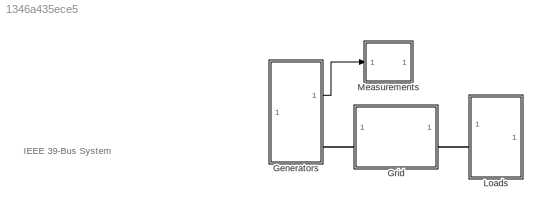
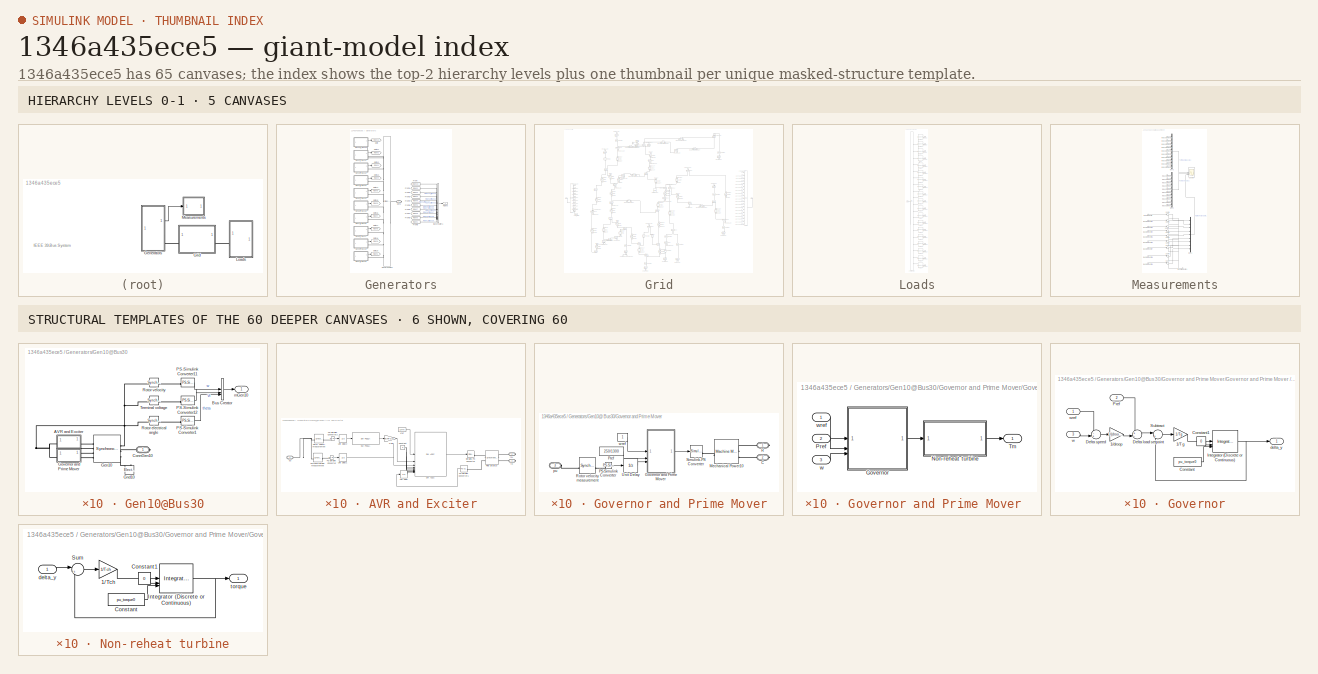
[diagram: thumbnail index - top-2 hierarchy levels (5 canvases) + 6 structural-template representatives of the remaining 60 canvases]
MODEL slx_1346a435ece5
KIND model
CONFIG AbsTol = auto
CONFIG EnableMultiTasking = off
CONFIG FixedStep = Ts
CONFIG MaxStep = 1e-4
CONFIG MinStep = auto
CONFIG PreLoadFcn = Ts = 1/60;\nEnPSS = 1;
CONFIG RelTol = 1e-3
CONFIG SampleTimeConstraint = Unconstrained
CONFIG SolverName = ode23t
CONFIG StartTime = 0.0
CONFIG StopTime = 10
BLOCK [SubSystem] Generators
BLOCK [BusCreator] Generators/Bus Creator1
  DisplayOption = bar
  InheritFromInputs = on
  Inputs = 10
BLOCK [From] Generators/From
  GotoTag = mGen10
BLOCK [From] Generators/From1
  GotoTag = mGen2
BLOCK [From] Generators/From2
  GotoTag = mGen3
BLOCK [From] Generators/From3
  GotoTag = mGen4
BLOCK [From] Generators/From4
  GotoTag = mGen5
BLOCK [From] Generators/From5
  GotoTag = mGen6
BLOCK [From] Generators/From6
  GotoTag = mGen7
BLOCK [From] Generators/From7
  GotoTag = mGen8
BLOCK [From] Generators/From8
  GotoTag = mGen9
BLOCK [From] Generators/From9
  GotoTag = mGen1
BLOCK [SubSystem] Generators/Gen10@Bus30
BLOCK [SubSystem] Generators/Gen10@Bus30/AVR and Exciter
  NameLocation = top
BLOCK [Constant] Generators/Gen10@Bus30/AVR and Exciter/Constant
  Value = 0
BLOCK [Reference] Generators/Gen10@Bus30/AVR and Exciter/Field Circuit10  REF=ee_lib/Electromechanical/Synchronous/Synchronous Machine
Field Circuit
  SourceBlock = ee_lib/Electromechanical/Synchronous/Synchronous Machine\nField Circuit
  SourceType = Synchronous Machine\nField Circuit
BLOCK [Gain] Generators/Gen10@Bus30/AVR and Exciter/Gain
  Gain = EnPSS
BLOCK [Reference] Generators/Gen10@Bus30/AVR and Exciter/PS-Simulink Converter  REF=nesl_utility/PS-Simulink
Converter
  AttributesFormatString = %<Unit>
  SourceBlock = nesl_utility/PS-Simulink\nConverter
  SourceType = PS-Simulink\nConverter
BLOCK [Reference] Generators/Gen10@Bus30/AVR and Exciter/PS-Simulink Converter1  REF=nesl_utility/PS-Simulink
Converter
  AttributesFormatString = %<Unit>
  SourceBlock = nesl_utility/PS-Simulink\nConverter
  SourceType = PS-Simulink\nConverter
BLOCK [Reference] Generators/Gen10@Bus30/AVR and Exciter/PS-Simulink Converter2  REF=nesl_utility/PS-Simulink
Converter
  AttributesFormatString = %<Unit>
  SourceBlock = nesl_utility/PS-Simulink\nConverter
  SourceType = PS-Simulink\nConverter
BLOCK [Reference] Generators/Gen10@Bus30/AVR and Exciter/Rotor velocity measurement  REF=ee_lib/Electromechanical/Synchronous/Synchronous Machine
Measurement
  SourceBlock = ee_lib/Electromechanical/Synchronous/Synchronous Machine\nMeasurement
  SourceType = Synchronous Machine\nMeasurement
BLOCK [Reference] Generators/Gen10@Bus30/AVR and Exciter/SM AC1C  REF=eeSmAC1C/SM AC1C
  SourceBlock = eeSmAC1C/SM AC1C
  SourceType = SM AC1C
BLOCK [Reference] Generators/Gen10@Bus30/AVR and Exciter/SM PSS1A  REF=eeSmPSS1A/SM PSS1A
  SourceBlock = eeSmPSS1A/SM PSS1A
  SourceType = SM PSS1A
BLOCK [Reference] Generators/Gen10@Bus30/AVR and Exciter/Simulink-PS Converter  REF=nesl_utility/Simulink-PS
Converter
  AttributesFormatString = %<Unit>
  SourceBlock = nesl_utility/Simulink-PS\nConverter
  SourceType = Simulink-PS\nConverter
BLOCK [Reference] Generators/Gen10@Bus30/AVR and Exciter/Terminal voltage measurement  REF=ee_lib/Electromechanical/Synchronous/Synchronous Machine
Measurement
  SourceBlock = ee_lib/Electromechanical/Synchronous/Synchronous Machine\nMeasurement
  SourceType = Synchronous Machine\nMeasurement
BLOCK [UnitDelay] Generators/Gen10@Bus30/AVR and Exciter/Unit Delay
  HasFrameUpgradeWarning = on
  InitialCondition = 1.2267
  SampleTime = Ts
BLOCK [UnitDelay] Generators/Gen10@Bus30/AVR and Exciter/Unit Delay1
  HasFrameUpgradeWarning = on
  InitialCondition = 1.0475
  SampleTime = Ts
BLOCK [UnitDelay] Generators/Gen10@Bus30/AVR and Exciter/Unit Delay2
  HasFrameUpgradeWarning = on
  InitialCondition = 1
  SampleTime = Ts
BLOCK [Constant] Generators/Gen10@Bus30/AVR and Exciter/Vref
  Value = 1.0475
BLOCK [PMIOPort] Generators/Gen10@Bus30/AVR and Exciter/fd+
  Port = 2
  Side = Right
BLOCK [PMIOPort] Generators/Gen10@Bus30/AVR and Exciter/fd-
  Port = 3
  Side = Right
BLOCK [PMIOPort] Generators/Gen10@Bus30/AVR and Exciter/pu
  Side = Left
BLOCK [BusCreator] Generators/Gen10@Bus30/Bus Creator
  DisplayOption = bar
  InheritFromInputs = on
  Inputs = 3
BLOCK [PMIOPort] Generators/Gen10@Bus30/ConnGen10
  Side = Right
BLOCK [Reference] Generators/Gen10@Bus30/Gen10  REF=ee_lib/Electromechanical/Synchronous/Synchronous Machine
Round Rotor
  SourceBlock = ee_lib/Electromechanical/Synchronous/Synchronous Machine\nRound Rotor
  SourceType = Synchronous Machine\nRound Rotor
BLOCK [Reference] Generators/Gen10@Bus30/Gnd10  REF=fl_lib/Electrical/Electrical Elements/Electrical Reference
  NameLocation = right
  SourceBlock = fl_lib/Electrical/Electrical Elements/Electrical Reference
  SourceType = Electrical Reference
BLOCK [SubSystem] Generators/Gen10@Bus30/Governor and Prime Mover
BLOCK [PMIOPort] Generators/Gen10@Bus30/Governor and Prime Mover/C
  Port = 2
  Side = Right
BLOCK [SubSystem] Generators/Gen10@Bus30/Governor and Prime Mover/Governor and Prime Mover 
BLOCK [SubSystem] Generators/Gen10@Bus30/Governor and Prime Mover/Governor and Prime Mover /Governor
BLOCK [Gain] Generators/Gen10@Bus30/Governor and Prime Mover/Governor and Prime Mover /Governor/1//Tg
  Gain = 1/Tg
BLOCK [Gain] Generators/Gen10@Bus30/Governor and Prime Mover/Governor and Prime Mover /Governor/1//droop
  Gain = 1/(droop_percentage/100)
BLOCK [Constant] Generators/Gen10@Bus30/Governor and Prime Mover/Governor and Prime Mover /Governor/Constant
  Value = pu_torque0
BLOCK [Constant] Generators/Gen10@Bus30/Governor and Prime Mover/Governor and Prime Mover /Governor/Constant1
  Value = 0
BLOCK [Sum] Generators/Gen10@Bus30/Governor and Prime Mover/Governor and Prime Mover /Governor/Delta load setpoint
  Inputs = +-|
BLOCK [Sum] Generators/Gen10@Bus30/Governor and Prime Mover/Governor and Prime Mover /Governor/Delta speed
  Inputs = -+|
BLOCK [Reference] Generators/Gen10@Bus30/Governor and Prime Mover/Governor and Prime Mover /Governor/Integrator (Discrete or Continuous)  REF=eeGeneralControl/Integrator
(Discrete or Continuous)
  SourceBlock = eeGeneralControl/Integrator\n(Discrete or Continuous)
  SourceType = Integrator (Discrete or Continuous)
BLOCK [Inport] Generators/Gen10@Bus30/Governor and Prime Mover/Governor and Prime Mover /Governor/Pref
  Port = 2
BLOCK [Sum] Generators/Gen10@Bus30/Governor and Prime Mover/Governor and Prime Mover /Governor/Subtract
  Inputs = |+-
BLOCK [Outport] Generators/Gen10@Bus30/Governor and Prime Mover/Governor and Prime Mover /Governor/delta_y
  VectorParamsAs1DForOutWhenUnconnected = off
BLOCK [Inport] Generators/Gen10@Bus30/Governor and Prime Mover/Governor and Prime Mover /Governor/w
  Port = 3
BLOCK [Inport] Generators/Gen10@Bus30/Governor and Prime Mover/Governor and Prime Mover /Governor/wref
BLOCK [SubSystem] Generators/Gen10@Bus30/Governor and Prime Mover/Governor and Prime Mover /Non-reheat turbine
BLOCK [Gain] Generators/Gen10@Bus30/Governor and Prime Mover/Governor and Prime Mover /Non-reheat turbine/1//Tch
  Gain = 1/Tch
BLOCK [Constant] Generators/Gen10@Bus30/Governor and Prime Mover/Governor and Prime Mover /Non-reheat turbine/Constant
  Value = pu_torque0
BLOCK [Constant] Generators/Gen10@Bus30/Governor and Prime Mover/Governor and Prime Mover /Non-reheat turbine/Constant1
  Value = 0
BLOCK [Reference] Generators/Gen10@Bus30/Governor and Prime Mover/Governor and Prime Mover /Non-reheat turbine/Integrator (Discrete or Continuous)  REF=eeGeneralControl/Integrator
(Discrete or Continuous)
  SourceBlock = eeGeneralControl/Integrator\n(Discrete or Continuous)
  SourceType = Integrator (Discrete or Continuous)
BLOCK [Sum] Generators/Gen10@Bus30/Governor and Prime Mover/Governor and Prime Mover /Non-reheat turbine/Sum
  Inputs = |+-
BLOCK [Inport] Generators/Gen10@Bus30/Governor and Prime Mover/Governor and Prime Mover /Non-reheat turbine/delta_y
BLOCK [Outport] Generators/Gen10@Bus30/Governor and Prime Mover/Governor and Prime Mover /Non-reheat turbine/torque
  VectorParamsAs1DForOutWhenUnconnected = off
BLOCK [Inport] Generators/Gen10@Bus30/Governor and Prime Mover/Governor and Prime Mover /Pref
  Port = 2
BLOCK [Outport] Generators/Gen10@Bus30/Governor and Prime Mover/Governor and Prime Mover /Tm
  VectorParamsAs1DForOutWhenUnconnected = off
BLOCK [Inport] Generators/Gen10@Bus30/Governor and Prime Mover/Governor and Prime Mover /w
  Port = 3
BLOCK [Inport] Generators/Gen10@Bus30/Governor and Prime Mover/Governor and Prime Mover /wref
BLOCK [Reference] Generators/Gen10@Bus30/Governor and Prime Mover/Mechanical Power10  REF=ee_lib/Electromechanical/Mechanical/Machine Mechanical
Power
  SourceBlock = ee_lib/Electromechanical/Mechanical/Machine Mechanical\nPower
  SourceType = Machine Mechanical\nPower
BLOCK [Reference] Generators/Gen10@Bus30/Governor and Prime Mover/PS-Simulink Converter  REF=nesl_utility/PS-Simulink
Converter
  AttributesFormatString = %<Unit>
  SourceBlock = nesl_utility/PS-Simulink\nConverter
  SourceType = PS-Simulink\nConverter
BLOCK [Constant] Generators/Gen10@Bus30/Governor and Prime Mover/Pref
  Value = 250/1300
BLOCK [PMIOPort] Generators/Gen10@Bus30/Governor and Prime Mover/R
  Side = Right
BLOCK [Reference] Generators/Gen10@Bus30/Governor and Prime Mover/Rotor velocity measurement  REF=ee_lib/Electromechanical/Synchronous/Synchronous Machine
Measurement
  SourceBlock = ee_lib/Electromechanical/Synchronous/Synchronous Machine\nMeasurement
  SourceType = Synchronous Machine\nMeasurement
BLOCK [Reference] Generators/Gen10@Bus30/Governor and Prime Mover/Simulink-PS Converter  REF=nesl_utility/Simulink-PS
Converter
  AttributesFormatString = %<Unit>
  SourceBlock = nesl_utility/Simulink-PS\nConverter
  SourceType = Simulink-PS\nConverter
BLOCK [UnitDelay] Generators/Gen10@Bus30/Governor and Prime Mover/Unit Delay
  HasFrameUpgradeWarning = on
  InitialCondition = 1
  SampleTime = Ts
BLOCK [PMIOPort] Generators/Gen10@Bus30/Governor and Prime Mover/pu
  Port = 3
  Side = Left
BLOCK [Constant] Generators/Gen10@Bus30/Governor and Prime Mover/wref
BLOCK [Reference] Generators/Gen10@Bus30/PS-Simulink Converter1  REF=nesl_utility/PS-Simulink
Converter
  AttributesFormatString = %<Unit>
  SourceBlock = nesl_utility/PS-Simulink\nConverter
  SourceType = PS-Simulink\nConverter
BLOCK [Reference] Generators/Gen10@Bus30/PS-Simulink Converter11  REF=nesl_utility/PS-Simulink
Converter
  AttributesFormatString = %<Unit>
  SourceBlock = nesl_utility/PS-Simulink\nConverter
  SourceType = PS-Simulink\nConverter
BLOCK [Reference] Generators/Gen10@Bus30/PS-Simulink Converter12  REF=nesl_utility/PS-Simulink
Converter
  AttributesFormatString = %<Unit>
  SourceBlock = nesl_utility/PS-Simulink\nConverter
  SourceType = PS-Simulink\nConverter
BLOCK [Reference] Generators/Gen10@Bus30/Rotor electrical angle  REF=ee_lib/Electromechanical/Synchronous/Synchronous Machine
Measurement
  SourceBlock = ee_lib/Electromechanical/Synchronous/Synchronous Machine\nMeasurement
  SourceType = Synchronous Machine\nMeasurement
BLOCK [Reference] Generators/Gen10@Bus30/Rotor velocity  REF=ee_lib/Electromechanical/Synchronous/Synchronous Machine
Measurement
  SourceBlock = ee_lib/Electromechanical/Synchronous/Synchronous Machine\nMeasurement
  SourceType = Synchronous Machine\nMeasurement
BLOCK [Reference] Generators/Gen10@Bus30/Terminal voltage  REF=ee_lib/Electromechanical/Synchronous/Synchronous Machine
Measurement
  SourceBlock = ee_lib/Electromechanical/Synchronous/Synchronous Machine\nMeasurement
  SourceType = Synchronous Machine\nMeasurement
BLOCK [Outport] Generators/Gen10@Bus30/mGen10
BLOCK [SubSystem] Generators/Gen1@Bus39
BLOCK [SubSystem] Generators/Gen1@Bus39/AVR and Exciter
  NameLocation = top
BLOCK [Constant] Generators/Gen1@Bus39/AVR and Exciter/Constant
  Value = 0
BLOCK [Reference] Generators/Gen1@Bus39/AVR and Exciter/Field Circuit1  REF=ee_lib/Electromechanical/Synchronous/Synchronous Machine
Field Circuit
  SourceBlock = ee_lib/Electromechanical/Synchronous/Synchronous Machine\nField Circuit
  SourceType = Synchronous Machine\nField Circuit
BLOCK [Gain] Generators/Gen1@Bus39/AVR and Exciter/Gain
  Gain = EnPSS
BLOCK [Reference] Generators/Gen1@Bus39/AVR and Exciter/PS-Simulink Converter  REF=nesl_utility/PS-Simulink
Converter
  AttributesFormatString = %<Unit>
  SourceBlock = nesl_utility/PS-Simulink\nConverter
  SourceType = PS-Simulink\nConverter
BLOCK [Reference] Generators/Gen1@Bus39/AVR and Exciter/PS-Simulink Converter1  REF=nesl_utility/PS-Simulink
Converter
  AttributesFormatString = %<Unit>
  SourceBlock = nesl_utility/PS-Simulink\nConverter
  SourceType = PS-Simulink\nConverter
BLOCK [Reference] Generators/Gen1@Bus39/AVR and Exciter/PS-Simulink Converter2  REF=nesl_utility/PS-Simulink
Converter
  AttributesFormatString = %<Unit>
  SourceBlock = nesl_utility/PS-Simulink\nConverter
  SourceType = PS-Simulink\nConverter
BLOCK [Reference] Generators/Gen1@Bus39/AVR and Exciter/Rotor velocity measurement  REF=ee_lib/Electromechanical/Synchronous/Synchronous Machine
Measurement
  SourceBlock = ee_lib/Electromechanical/Synchronous/Synchronous Machine\nMeasurement
  SourceType = Synchronous Machine\nMeasurement
BLOCK [Reference] Generators/Gen1@Bus39/AVR and Exciter/SM AC1C  REF=eeSmAC1C/SM AC1C
  SourceBlock = eeSmAC1C/SM AC1C
  SourceType = SM AC1C
BLOCK [Reference] Generators/Gen1@Bus39/AVR and Exciter/SM PSS1A  REF=eeSmPSS1A/SM PSS1A
  SourceBlock = eeSmPSS1A/SM PSS1A
  SourceType = SM PSS1A
BLOCK [Reference] Generators/Gen1@Bus39/AVR and Exciter/Simulink-PS Converter  REF=nesl_utility/Simulink-PS
Converter
  AttributesFormatString = %<Unit>
  SourceBlock = nesl_utility/Simulink-PS\nConverter
  SourceType = Simulink-PS\nConverter
BLOCK [Reference] Generators/Gen1@Bus39/AVR and Exciter/Terminal voltage measurement  REF=ee_lib/Electromechanical/Synchronous/Synchronous Machine
Measurement
  SourceBlock = ee_lib/Electromechanical/Synchronous/Synchronous Machine\nMeasurement
  SourceType = Synchronous Machine\nMeasurement
BLOCK [UnitDelay] Generators/Gen1@Bus39/AVR and Exciter/Unit Delay
  HasFrameUpgradeWarning = on
  InitialCondition = 1.1096
  SampleTime = Ts
BLOCK [UnitDelay] Generators/Gen1@Bus39/AVR and Exciter/Unit Delay1
  HasFrameUpgradeWarning = on
  InitialCondition = 1.03
  SampleTime = Ts
BLOCK [UnitDelay] Generators/Gen1@Bus39/AVR and Exciter/Unit Delay2
  HasFrameUpgradeWarning = on
  InitialCondition = 1
  SampleTime = Ts
BLOCK [Constant] Generators/Gen1@Bus39/AVR and Exciter/Vref
  Value = 1.03
BLOCK [PMIOPort] Generators/Gen1@Bus39/AVR and Exciter/fd+
  Port = 2
  Side = Right
BLOCK [PMIOPort] Generators/Gen1@Bus39/AVR and Exciter/fd-
  Port = 3
  Side = Right
BLOCK [PMIOPort] Generators/Gen1@Bus39/AVR and Exciter/pu
  Side = Left
BLOCK [BusCreator] Generators/Gen1@Bus39/Bus Creator
  DisplayOption = bar
  InheritFromInputs = on
  Inputs = 3
BLOCK [PMIOPort] Generators/Gen1@Bus39/ConnGen1
  Side = Right
BLOCK [Reference] Generators/Gen1@Bus39/Gen1  REF=ee_lib/Electromechanical/Synchronous/Synchronous Machine
Round Rotor
  SourceBlock = ee_lib/Electromechanical/Synchronous/Synchronous Machine\nRound Rotor
  SourceType = Synchronous Machine\nRound Rotor
BLOCK [Reference] Generators/Gen1@Bus39/Gnd1  REF=fl_lib/Electrical/Electrical Elements/Electrical Reference
  NameLocation = right
  SourceBlock = fl_lib/Electrical/Electrical Elements/Electrical Reference
  SourceType = Electrical Reference
BLOCK [SubSystem] Generators/Gen1@Bus39/Governor and Prime Mover
BLOCK [PMIOPort] Generators/Gen1@Bus39/Governor and Prime Mover/C
  Port = 2
  Side = Right
BLOCK [SubSystem] Generators/Gen1@Bus39/Governor and Prime Mover/Governor and Prime Mover 
BLOCK [SubSystem] Generators/Gen1@Bus39/Governor and Prime Mover/Governor and Prime Mover /Governor
BLOCK [Gain] Generators/Gen1@Bus39/Governor and Prime Mover/Governor and Prime Mover /Governor/1//Tg
  Gain = 1/Tg
BLOCK [Gain] Generators/Gen1@Bus39/Governor and Prime Mover/Governor and Prime Mover /Governor/1//droop
  Gain = 1/(droop_percentage/100)
BLOCK [Constant] Generators/Gen1@Bus39/Governor and Prime Mover/Governor and Prime Mover /Governor/Constant
  Value = pu_torque0
BLOCK [Constant] Generators/Gen1@Bus39/Governor and Prime Mover/Governor and Prime Mover /Governor/Constant1
  Value = 0
BLOCK [Sum] Generators/Gen1@Bus39/Governor and Prime Mover/Governor and Prime Mover /Governor/Delta load setpoint
  Inputs = +-|
BLOCK [Sum] Generators/Gen1@Bus39/Governor and Prime Mover/Governor and Prime Mover /Governor/Delta speed
  Inputs = -+|
BLOCK [Reference] Generators/Gen1@Bus39/Governor and Prime Mover/Governor and Prime Mover /Governor/Integrator (Discrete or Continuous)  REF=eeGeneralControl/Integrator
(Discrete or Continuous)
  SourceBlock = eeGeneralControl/Integrator\n(Discrete or Continuous)
  SourceType = Integrator (Discrete or Continuous)
BLOCK [Inport] Generators/Gen1@Bus39/Governor and Prime Mover/Governor and Prime Mover /Governor/Pref
  Port = 2
BLOCK [Sum] Generators/Gen1@Bus39/Governor and Prime Mover/Governor and Prime Mover /Governor/Subtract
  Inputs = |+-
BLOCK [Outport] Generators/Gen1@Bus39/Governor and Prime Mover/Governor and Prime Mover /Governor/delta_y
  VectorParamsAs1DForOutWhenUnconnected = off
BLOCK [Inport] Generators/Gen1@Bus39/Governor and Prime Mover/Governor and Prime Mover /Governor/w
  Port = 3
BLOCK [Inport] Generators/Gen1@Bus39/Governor and Prime Mover/Governor and Prime Mover /Governor/wref
BLOCK [SubSystem] Generators/Gen1@Bus39/Governor and Prime Mover/Governor and Prime Mover /Non-reheat turbine
BLOCK [Gain] Generators/Gen1@Bus39/Governor and Prime Mover/Governor and Prime Mover /Non-reheat turbine/1//Tch
  Gain = 1/Tch
BLOCK [Constant] Generators/Gen1@Bus39/Governor and Prime Mover/Governor and Prime Mover /Non-reheat turbine/Constant
  Value = pu_torque0
BLOCK [Constant] Generators/Gen1@Bus39/Governor and Prime Mover/Governor and Prime Mover /Non-reheat turbine/Constant1
  Value = 0
BLOCK [Reference] Generators/Gen1@Bus39/Governor and Prime Mover/Governor and Prime Mover /Non-reheat turbine/Integrator (Discrete or Continuous)  REF=eeGeneralControl/Integrator
(Discrete or Continuous)
  SourceBlock = eeGeneralControl/Integrator\n(Discrete or Continuous)
  SourceType = Integrator (Discrete or Continuous)
BLOCK [Sum] Generators/Gen1@Bus39/Governor and Prime Mover/Governor and Prime Mover /Non-reheat turbine/Sum
  Inputs = |+-
BLOCK [Inport] Generators/Gen1@Bus39/Governor and Prime Mover/Governor and Prime Mover /Non-reheat turbine/delta_y
BLOCK [Outport] Generators/Gen1@Bus39/Governor and Prime Mover/Governor and Prime Mover /Non-reheat turbine/torque
  VectorParamsAs1DForOutWhenUnconnected = off
BLOCK [Inport] Generators/Gen1@Bus39/Governor and Prime Mover/Governor and Prime Mover /Pref
  Port = 2
BLOCK [Outport] Generators/Gen1@Bus39/Governor and Prime Mover/Governor and Prime Mover /Tm
  VectorParamsAs1DForOutWhenUnconnected = off
BLOCK [Inport] Generators/Gen1@Bus39/Governor and Prime Mover/Governor and Prime Mover /w
  Port = 3
BLOCK [Inport] Generators/Gen1@Bus39/Governor and Prime Mover/Governor and Prime Mover /wref
BLOCK [Reference] Generators/Gen1@Bus39/Governor and Prime Mover/Mechanical Power1  REF=ee_lib/Electromechanical/Mechanical/Machine Mechanical
Power
  SourceBlock = ee_lib/Electromechanical/Mechanical/Machine Mechanical\nPower
  SourceType = Machine Mechanical\nPower
BLOCK [Reference] Generators/Gen1@Bus39/Governor and Prime Mover/PS-Simulink Converter  REF=nesl_utility/PS-Simulink
Converter
  AttributesFormatString = %<Unit>
  SourceBlock = nesl_utility/PS-Simulink\nConverter
  SourceType = PS-Simulink\nConverter
BLOCK [Constant] Generators/Gen1@Bus39/Governor and Prime Mover/Pref
  Value = 1000/2400
BLOCK [PMIOPort] Generators/Gen1@Bus39/Governor and Prime Mover/R
  Side = Right
BLOCK [Reference] Generators/Gen1@Bus39/Governor and Prime Mover/Rotor velocity measurement  REF=ee_lib/Electromechanical/Synchronous/Synchronous Machine
Measurement
  SourceBlock = ee_lib/Electromechanical/Synchronous/Synchronous Machine\nMeasurement
  SourceType = Synchronous Machine\nMeasurement
BLOCK [Reference] Generators/Gen1@Bus39/Governor and Prime Mover/Simulink-PS Converter  REF=nesl_utility/Simulink-PS
Converter
  AttributesFormatString = %<Unit>
  SourceBlock = nesl_utility/Simulink-PS\nConverter
  SourceType = Simulink-PS\nConverter
BLOCK [UnitDelay] Generators/Gen1@Bus39/Governor and Prime Mover/Unit Delay
  HasFrameUpgradeWarning = on
  InitialCondition = 1
  SampleTime = Ts
BLOCK [PMIOPort] Generators/Gen1@Bus39/Governor and Prime Mover/pu
  Port = 3
  Side = Left
BLOCK [Constant] Generators/Gen1@Bus39/Governor and Prime Mover/wref
BLOCK [Reference] Generators/Gen1@Bus39/PS-Simulink Converter1  REF=nesl_utility/PS-Simulink
Converter
  AttributesFormatString = %<Unit>
  SourceBlock = nesl_utility/PS-Simulink\nConverter
  SourceType = PS-Simulink\nConverter
BLOCK [Reference] Generators/Gen1@Bus39/PS-Simulink Converter11  REF=nesl_utility/PS-Simulink
Converter
  AttributesFormatString = %<Unit>
  SourceBlock = nesl_utility/PS-Simulink\nConverter
  SourceType = PS-Simulink\nConverter
BLOCK [Reference] Generators/Gen1@Bus39/PS-Simulink Converter12  REF=nesl_utility/PS-Simulink
Converter
  AttributesFormatString = %<Unit>
  SourceBlock = nesl_utility/PS-Simulink\nConverter
  SourceType = PS-Simulink\nConverter
BLOCK [Reference] Generators/Gen1@Bus39/Rotor electrical angle  REF=ee_lib/Electromechanical/Synchronous/Synchronous Machine
Measurement
  SourceBlock = ee_lib/Electromechanical/Synchronous/Synchronous Machine\nMeasurement
  SourceType = Synchronous Machine\nMeasurement
BLOCK [Reference] Generators/Gen1@Bus39/Rotor velocity  REF=ee_lib/Electromechanical/Synchronous/Synchronous Machine
Measurement
  SourceBlock = ee_lib/Electromechanical/Synchronous/Synchronous Machine\nMeasurement
  SourceType = Synchronous Machine\nMeasurement
BLOCK [Reference] Generators/Gen1@Bus39/Terminal voltage  REF=ee_lib/Electromechanical/Synchronous/Synchronous Machine
Measurement
  SourceBlock = ee_lib/Electromechanical/Synchronous/Synchronous Machine\nMeasurement
  SourceType = Synchronous Machine\nMeasurement
BLOCK [Outport] Generators/Gen1@Bus39/mGen1
BLOCK [SubSystem] Generators/Gen2@Bus31
BLOCK [SubSystem] Generators/Gen2@Bus31/AVR and Exciter
  NameLocation = top
BLOCK [Constant] Generators/Gen2@Bus31/AVR and Exciter/Constant
  Value = 0
BLOCK [Reference] Generators/Gen2@Bus31/AVR and Exciter/Field Circuit2  REF=ee_lib/Electromechanical/Synchronous/Synchronous Machine
Field Circuit
  SourceBlock = ee_lib/Electromechanical/Synchronous/Synchronous Machine\nField Circuit
  SourceType = Synchronous Machine\nField Circuit
BLOCK [Gain] Generators/Gen2@Bus31/AVR and Exciter/Gain
  Gain = EnPSS
BLOCK [Reference] Generators/Gen2@Bus31/AVR and Exciter/PS-Simulink Converter  REF=nesl_utility/PS-Simulink
Converter
  AttributesFormatString = %<Unit>
  SourceBlock = nesl_utility/PS-Simulink\nConverter
  SourceType = PS-Simulink\nConverter
BLOCK [Reference] Generators/Gen2@Bus31/AVR and Exciter/PS-Simulink Converter1  REF=nesl_utility/PS-Simulink
Converter
  AttributesFormatString = %<Unit>
  SourceBlock = nesl_utility/PS-Simulink\nConverter
  SourceType = PS-Simulink\nConverter
BLOCK [Reference] Generators/Gen2@Bus31/AVR and Exciter/PS-Simulink Converter2  REF=nesl_utility/PS-Simulink
Converter
  AttributesFormatString = %<Unit>
  SourceBlock = nesl_utility/PS-Simulink\nConverter
  SourceType = PS-Simulink\nConverter
BLOCK [Reference] Generators/Gen2@Bus31/AVR and Exciter/Rotor velocity measurement  REF=ee_lib/Electromechanical/Synchronous/Synchronous Machine
Measurement
  SourceBlock = ee_lib/Electromechanical/Synchronous/Synchronous Machine\nMeasurement
  SourceType = Synchronous Machine\nMeasurement
BLOCK [Reference] Generators/Gen2@Bus31/AVR and Exciter/SM AC1C  REF=eeSmAC1C/SM AC1C
  SourceBlock = eeSmAC1C/SM AC1C
  SourceType = SM AC1C
BLOCK [Reference] Generators/Gen2@Bus31/AVR and Exciter/SM PSS1A  REF=eeSmPSS1A/SM PSS1A
  SourceBlock = eeSmPSS1A/SM PSS1A
  SourceType = SM PSS1A
BLOCK [Reference] Generators/Gen2@Bus31/AVR and Exciter/Simulink-PS Converter  REF=nesl_utility/Simulink-PS
Converter
  AttributesFormatString = %<Unit>
  SourceBlock = nesl_utility/Simulink-PS\nConverter
  SourceType = Simulink-PS\nConverter
BLOCK [Reference] Generators/Gen2@Bus31/AVR and Exciter/Terminal voltage measurement  REF=ee_lib/Electromechanical/Synchronous/Synchronous Machine
Measurement
  SourceBlock = ee_lib/Electromechanical/Synchronous/Synchronous Machine\nMeasurement
  SourceType = Synchronous Machine\nMeasurement
BLOCK [UnitDelay] Generators/Gen2@Bus31/AVR and Exciter/Unit Delay
  HasFrameUpgradeWarning = on
  InitialCondition = 1.9884
  SampleTime = Ts
BLOCK [UnitDelay] Generators/Gen2@Bus31/AVR and Exciter/Unit Delay1
  HasFrameUpgradeWarning = on
  InitialCondition = 0.982
  SampleTime = Ts
BLOCK [UnitDelay] Generators/Gen2@Bus31/AVR and Exciter/Unit Delay2
  HasFrameUpgradeWarning = on
  InitialCondition = 1
  SampleTime = Ts
BLOCK [Constant] Generators/Gen2@Bus31/AVR and Exciter/Vref
  Value = 0.982
BLOCK [PMIOPort] Generators/Gen2@Bus31/AVR and Exciter/fd+
  Port = 2
  Side = Right
BLOCK [PMIOPort] Generators/Gen2@Bus31/AVR and Exciter/fd-
  Port = 3
  Side = Right
BLOCK [PMIOPort] Generators/Gen2@Bus31/AVR and Exciter/pu
  Side = Left
BLOCK [BusCreator] Generators/Gen2@Bus31/Bus Creator
  DisplayOption = bar
  InheritFromInputs = on
  Inputs = 3
BLOCK [PMIOPort] Generators/Gen2@Bus31/ConnGen2
  Side = Right
BLOCK [Reference] Generators/Gen2@Bus31/Gen2  REF=ee_lib/Electromechanical/Synchronous/Synchronous Machine
Round Rotor
  SourceBlock = ee_lib/Electromechanical/Synchronous/Synchronous Machine\nRound Rotor
  SourceType = Synchronous Machine\nRound Rotor
BLOCK [Reference] Generators/Gen2@Bus31/Gnd2  REF=fl_lib/Electrical/Electrical Elements/Electrical Reference
  NameLocation = right
  SourceBlock = fl_lib/Electrical/Electrical Elements/Electrical Reference
  SourceType = Electrical Reference
BLOCK [SubSystem] Generators/Gen2@Bus31/Governor and Prime Mover
BLOCK [PMIOPort] Generators/Gen2@Bus31/Governor and Prime Mover/C
  Port = 2
  Side = Right
BLOCK [SubSystem] Generators/Gen2@Bus31/Governor and Prime Mover/Governor and Prime Mover 
BLOCK [SubSystem] Generators/Gen2@Bus31/Governor and Prime Mover/Governor and Prime Mover /Governor
BLOCK [Gain] Generators/Gen2@Bus31/Governor and Prime Mover/Governor and Prime Mover /Governor/1//Tg
  Gain = 1/Tg
BLOCK [Gain] Generators/Gen2@Bus31/Governor and Prime Mover/Governor and Prime Mover /Governor/1//droop
  Gain = 1/(droop_percentage/100)
BLOCK [Constant] Generators/Gen2@Bus31/Governor and Prime Mover/Governor and Prime Mover /Governor/Constant
  Value = pu_torque0
BLOCK [Constant] Generators/Gen2@Bus31/Governor and Prime Mover/Governor and Prime Mover /Governor/Constant1
  Value = 0
BLOCK [Sum] Generators/Gen2@Bus31/Governor and Prime Mover/Governor and Prime Mover /Governor/Delta load setpoint
  Inputs = +-|
BLOCK [Sum] Generators/Gen2@Bus31/Governor and Prime Mover/Governor and Prime Mover /Governor/Delta speed
  Inputs = -+|
BLOCK [Reference] Generators/Gen2@Bus31/Governor and Prime Mover/Governor and Prime Mover /Governor/Integrator (Discrete or Continuous)  REF=eeGeneralControl/Integrator
(Discrete or Continuous)
  SourceBlock = eeGeneralControl/Integrator\n(Discrete or Continuous)
  SourceType = Integrator (Discrete or Continuous)
BLOCK [Inport] Generators/Gen2@Bus31/Governor and Prime Mover/Governor and Prime Mover /Governor/Pref
  Port = 2
BLOCK [Sum] Generators/Gen2@Bus31/Governor and Prime Mover/Governor and Prime Mover /Governor/Subtract
  Inputs = |+-
BLOCK [Outport] Generators/Gen2@Bus31/Governor and Prime Mover/Governor and Prime Mover /Governor/delta_y
  VectorParamsAs1DForOutWhenUnconnected = off
BLOCK [Inport] Generators/Gen2@Bus31/Governor and Prime Mover/Governor and Prime Mover /Governor/w
  Port = 3
BLOCK [Inport] Generators/Gen2@Bus31/Governor and Prime Mover/Governor and Prime Mover /Governor/wref
BLOCK [SubSystem] Generators/Gen2@Bus31/Governor and Prime Mover/Governor and Prime Mover /Non-reheat turbine
BLOCK [Gain] Generators/Gen2@Bus31/Governor and Prime Mover/Governor and Prime Mover /Non-reheat turbine/1//Tch
  Gain = 1/Tch
BLOCK [Constant] Generators/Gen2@Bus31/Governor and Prime Mover/Governor and Prime Mover /Non-reheat turbine/Constant
  Value = pu_torque0
BLOCK [Constant] Generators/Gen2@Bus31/Governor and Prime Mover/Governor and Prime Mover /Non-reheat turbine/Constant1
  Value = 0
BLOCK [Reference] Generators/Gen2@Bus31/Governor and Prime Mover/Governor and Prime Mover /Non-reheat turbine/Integrator (Discrete or Continuous)  REF=eeGeneralControl/Integrator
(Discrete or Continuous)
  SourceBlock = eeGeneralControl/Integrator\n(Discrete or Continuous)
  SourceType = Integrator (Discrete or Continuous)
BLOCK [Sum] Generators/Gen2@Bus31/Governor and Prime Mover/Governor and Prime Mover /Non-reheat turbine/Sum
  Inputs = |+-
BLOCK [Inport] Generators/Gen2@Bus31/Governor and Prime Mover/Governor and Prime Mover /Non-reheat turbine/delta_y
BLOCK [Outport] Generators/Gen2@Bus31/Governor and Prime Mover/Governor and Prime Mover /Non-reheat turbine/torque
  VectorParamsAs1DForOutWhenUnconnected = off
BLOCK [Inport] Generators/Gen2@Bus31/Governor and Prime Mover/Governor and Prime Mover /Pref
  Port = 2
BLOCK [Outport] Generators/Gen2@Bus31/Governor and Prime Mover/Governor and Prime Mover /Tm
  VectorParamsAs1DForOutWhenUnconnected = off
BLOCK [Inport] Generators/Gen2@Bus31/Governor and Prime Mover/Governor and Prime Mover /w
  Port = 3
BLOCK [Inport] Generators/Gen2@Bus31/Governor and Prime Mover/Governor and Prime Mover /wref
BLOCK [Reference] Generators/Gen2@Bus31/Governor and Prime Mover/Mechanical Power2  REF=ee_lib/Electromechanical/Mechanical/Machine Mechanical
Power
  SourceBlock = ee_lib/Electromechanical/Mechanical/Machine Mechanical\nPower
  SourceType = Machine Mechanical\nPower
BLOCK [Reference] Generators/Gen2@Bus31/Governor and Prime Mover/PS-Simulink Converter  REF=nesl_utility/PS-Simulink
Converter
  AttributesFormatString = %<Unit>
  SourceBlock = nesl_utility/PS-Simulink\nConverter
  SourceType = PS-Simulink\nConverter
BLOCK [Constant] Generators/Gen2@Bus31/Governor and Prime Mover/Pref
  Value = 487.5/900
BLOCK [PMIOPort] Generators/Gen2@Bus31/Governor and Prime Mover/R
  Side = Right
BLOCK [Reference] Generators/Gen2@Bus31/Governor and Prime Mover/Rotor velocity measurement  REF=ee_lib/Electromechanical/Synchronous/Synchronous Machine
Measurement
  SourceBlock = ee_lib/Electromechanical/Synchronous/Synchronous Machine\nMeasurement
  SourceType = Synchronous Machine\nMeasurement
BLOCK [Reference] Generators/Gen2@Bus31/Governor and Prime Mover/Simulink-PS Converter  REF=nesl_utility/Simulink-PS
Converter
  AttributesFormatString = %<Unit>
  SourceBlock = nesl_utility/Simulink-PS\nConverter
  SourceType = Simulink-PS\nConverter
BLOCK [UnitDelay] Generators/Gen2@Bus31/Governor and Prime Mover/Unit Delay
  HasFrameUpgradeWarning = on
  InitialCondition = 1
  SampleTime = Ts
BLOCK [PMIOPort] Generators/Gen2@Bus31/Governor and Prime Mover/pu
  Port = 3
  Side = Left
BLOCK [Constant] Generators/Gen2@Bus31/Governor and Prime Mover/wref
BLOCK [Reference] Generators/Gen2@Bus31/PS-Simulink Converter1  REF=nesl_utility/PS-Simulink
Converter
  AttributesFormatString = %<Unit>
  SourceBlock = nesl_utility/PS-Simulink\nConverter
  SourceType = PS-Simulink\nConverter
BLOCK [Reference] Generators/Gen2@Bus31/PS-Simulink Converter11  REF=nesl_utility/PS-Simulink
Converter
  AttributesFormatString = %<Unit>
  SourceBlock = nesl_utility/PS-Simulink\nConverter
  SourceType = PS-Simulink\nConverter
BLOCK [Reference] Generators/Gen2@Bus31/PS-Simulink Converter12  REF=nesl_utility/PS-Simulink
Converter
  AttributesFormatString = %<Unit>
  SourceBlock = nesl_utility/PS-Simulink\nConverter
  SourceType = PS-Simulink\nConverter
BLOCK [Reference] Generators/Gen2@Bus31/Rotor electrical angle  REF=ee_lib/Electromechanical/Synchronous/Synchronous Machine
Measurement
  SourceBlock = ee_lib/Electromechanical/Synchronous/Synchronous Machine\nMeasurement
  SourceType = Synchronous Machine\nMeasurement
BLOCK [Reference] Generators/Gen2@Bus31/Rotor velocity  REF=ee_lib/Electromechanical/Synchronous/Synchronous Machine
Measurement
  SourceBlock = ee_lib/Electromechanical/Synchronous/Synchronous Machine\nMeasurement
  SourceType = Synchronous Machine\nMeasurement
BLOCK [Reference] Generators/Gen2@Bus31/Terminal voltage  REF=ee_lib/Electromechanical/Synchronous/Synchronous Machine
Measurement
  SourceBlock = ee_lib/Electromechanical/Synchronous/Synchronous Machine\nMeasurement
  SourceType = Synchronous Machine\nMeasurement
BLOCK [Outport] Generators/Gen2@Bus31/mGen2
BLOCK [SubSystem] Generators/Gen3@Bus32
BLOCK [SubSystem] Generators/Gen3@Bus32/AVR and Exciter
  NameLocation = top
BLOCK [Constant] Generators/Gen3@Bus32/AVR and Exciter/Constant
  Value = 0
BLOCK [Reference] Generators/Gen3@Bus32/AVR and Exciter/Field Circuit3  REF=ee_lib/Electromechanical/Synchronous/Synchronous Machine
Field Circuit
  SourceBlock = ee_lib/Electromechanical/Synchronous/Synchronous Machine\nField Circuit
  SourceType = Synchronous Machine\nField Circuit
BLOCK [Gain] Generators/Gen3@Bus32/AVR and Exciter/Gain
  Gain = EnPSS
BLOCK [Reference] Generators/Gen3@Bus32/AVR and Exciter/PS-Simulink Converter  REF=nesl_utility/PS-Simulink
Converter
  AttributesFormatString = %<Unit>
  SourceBlock = nesl_utility/PS-Simulink\nConverter
  SourceType = PS-Simulink\nConverter
BLOCK [Reference] Generators/Gen3@Bus32/AVR and Exciter/PS-Simulink Converter1  REF=nesl_utility/PS-Simulink
Converter
  AttributesFormatString = %<Unit>
  SourceBlock = nesl_utility/PS-Simulink\nConverter
  SourceType = PS-Simulink\nConverter
BLOCK [Reference] Generators/Gen3@Bus32/AVR and Exciter/PS-Simulink Converter2  REF=nesl_utility/PS-Simulink
Converter
  AttributesFormatString = %<Unit>
  SourceBlock = nesl_utility/PS-Simulink\nConverter
  SourceType = PS-Simulink\nConverter
BLOCK [Reference] Generators/Gen3@Bus32/AVR and Exciter/Rotor velocity measurement  REF=ee_lib/Electromechanical/Synchronous/Synchronous Machine
Measurement
  SourceBlock = ee_lib/Electromechanical/Synchronous/Synchronous Machine\nMeasurement
  SourceType = Synchronous Machine\nMeasurement
BLOCK [Reference] Generators/Gen3@Bus32/AVR and Exciter/SM AC1C  REF=eeSmAC1C/SM AC1C
  SourceBlock = eeSmAC1C/SM AC1C
  SourceType = SM AC1C
BLOCK [Reference] Generators/Gen3@Bus32/AVR and Exciter/SM PSS1A  REF=eeSmPSS1A/SM PSS1A
  SourceBlock = eeSmPSS1A/SM PSS1A
  SourceType = SM PSS1A
BLOCK [Reference] Generators/Gen3@Bus32/AVR and Exciter/Simulink-PS Converter  REF=nesl_utility/Simulink-PS
Converter
  AttributesFormatString = %<Unit>
  SourceBlock = nesl_utility/Simulink-PS\nConverter
  SourceType = Simulink-PS\nConverter
BLOCK [Reference] Generators/Gen3@Bus32/AVR and Exciter/Terminal voltage measurement  REF=ee_lib/Electromechanical/Synchronous/Synchronous Machine
Measurement
  SourceBlock = ee_lib/Electromechanical/Synchronous/Synchronous Machine\nMeasurement
  SourceType = Synchronous Machine\nMeasurement
BLOCK [UnitDelay] Generators/Gen3@Bus32/AVR and Exciter/Unit Delay
  HasFrameUpgradeWarning = on
  InitialCondition = 2.1093
  SampleTime = Ts
BLOCK [UnitDelay] Generators/Gen3@Bus32/AVR and Exciter/Unit Delay1
  HasFrameUpgradeWarning = on
  InitialCondition = 0.9831
  SampleTime = Ts
BLOCK [UnitDelay] Generators/Gen3@Bus32/AVR and Exciter/Unit Delay2
  HasFrameUpgradeWarning = on
  InitialCondition = 1
  SampleTime = Ts
BLOCK [Constant] Generators/Gen3@Bus32/AVR and Exciter/Vref
  Value = 0.9831
BLOCK [PMIOPort] Generators/Gen3@Bus32/AVR and Exciter/fd+
  Port = 2
  Side = Right
BLOCK [PMIOPort] Generators/Gen3@Bus32/AVR and Exciter/fd-
  Port = 3
  Side = Right
BLOCK [PMIOPort] Generators/Gen3@Bus32/AVR and Exciter/pu
  Side = Left
BLOCK [BusCreator] Generators/Gen3@Bus32/Bus Creator
  DisplayOption = bar
  InheritFromInputs = on
  Inputs = 3
BLOCK [PMIOPort] Generators/Gen3@Bus32/ConnGen3
  Side = Right
BLOCK [Reference] Generators/Gen3@Bus32/Gen3  REF=ee_lib/Electromechanical/Synchronous/Synchronous Machine
Round Rotor
  SourceBlock = ee_lib/Electromechanical/Synchronous/Synchronous Machine\nRound Rotor
  SourceType = Synchronous Machine\nRound Rotor
BLOCK [Reference] Generators/Gen3@Bus32/Gnd3  REF=fl_lib/Electrical/Electrical Elements/Electrical Reference
  NameLocation = right
  SourceBlock = fl_lib/Electrical/Electrical Elements/Electrical Reference
  SourceType = Electrical Reference
BLOCK [SubSystem] Generators/Gen3@Bus32/Governor and Prime Mover
BLOCK [PMIOPort] Generators/Gen3@Bus32/Governor and Prime Mover/C
  Port = 2
  Side = Right
BLOCK [SubSystem] Generators/Gen3@Bus32/Governor and Prime Mover/Governor and Prime Mover 
BLOCK [SubSystem] Generators/Gen3@Bus32/Governor and Prime Mover/Governor and Prime Mover /Governor
BLOCK [Gain] Generators/Gen3@Bus32/Governor and Prime Mover/Governor and Prime Mover /Governor/1//Tg
  Gain = 1/Tg
BLOCK [Gain] Generators/Gen3@Bus32/Governor and Prime Mover/Governor and Prime Mover /Governor/1//droop
  Gain = 1/(droop_percentage/100)
BLOCK [Constant] Generators/Gen3@Bus32/Governor and Prime Mover/Governor and Prime Mover /Governor/Constant
  Value = pu_torque0
BLOCK [Constant] Generators/Gen3@Bus32/Governor and Prime Mover/Governor and Prime Mover /Governor/Constant1
  Value = 0
BLOCK [Sum] Generators/Gen3@Bus32/Governor and Prime Mover/Governor and Prime Mover /Governor/Delta load setpoint
  Inputs = +-|
BLOCK [Sum] Generators/Gen3@Bus32/Governor and Prime Mover/Governor and Prime Mover /Governor/Delta speed
  Inputs = -+|
BLOCK [Reference] Generators/Gen3@Bus32/Governor and Prime Mover/Governor and Prime Mover /Governor/Integrator (Discrete or Continuous)  REF=eeGeneralControl/Integrator
(Discrete or Continuous)
  SourceBlock = eeGeneralControl/Integrator\n(Discrete or Continuous)
  SourceType = Integrator (Discrete or Continuous)
BLOCK [Inport] Generators/Gen3@Bus32/Governor and Prime Mover/Governor and Prime Mover /Governor/Pref
  Port = 2
BLOCK [Sum] Generators/Gen3@Bus32/Governor and Prime Mover/Governor and Prime Mover /Governor/Subtract
  Inputs = |+-
BLOCK [Outport] Generators/Gen3@Bus32/Governor and Prime Mover/Governor and Prime Mover /Governor/delta_y
  VectorParamsAs1DForOutWhenUnconnected = off
BLOCK [Inport] Generators/Gen3@Bus32/Governor and Prime Mover/Governor and Prime Mover /Governor/w
  Port = 3
BLOCK [Inport] Generators/Gen3@Bus32/Governor and Prime Mover/Governor and Prime Mover /Governor/wref
BLOCK [SubSystem] Generators/Gen3@Bus32/Governor and Prime Mover/Governor and Prime Mover /Non-reheat turbine
BLOCK [Gain] Generators/Gen3@Bus32/Governor and Prime Mover/Governor and Prime Mover /Non-reheat turbine/1//Tch
  Gain = 1/Tch
BLOCK [Constant] Generators/Gen3@Bus32/Governor and Prime Mover/Governor and Prime Mover /Non-reheat turbine/Constant
  Value = pu_torque0
BLOCK [Constant] Generators/Gen3@Bus32/Governor and Prime Mover/Governor and Prime Mover /Non-reheat turbine/Constant1
  Value = 0
BLOCK [Reference] Generators/Gen3@Bus32/Governor and Prime Mover/Governor and Prime Mover /Non-reheat turbine/Integrator (Discrete or Continuous)  REF=eeGeneralControl/Integrator
(Discrete or Continuous)
  SourceBlock = eeGeneralControl/Integrator\n(Discrete or Continuous)
  SourceType = Integrator (Discrete or Continuous)
BLOCK [Sum] Generators/Gen3@Bus32/Governor and Prime Mover/Governor and Prime Mover /Non-reheat turbine/Sum
  Inputs = |+-
BLOCK [Inport] Generators/Gen3@Bus32/Governor and Prime Mover/Governor and Prime Mover /Non-reheat turbine/delta_y
BLOCK [Outport] Generators/Gen3@Bus32/Governor and Prime Mover/Governor and Prime Mover /Non-reheat turbine/torque
  VectorParamsAs1DForOutWhenUnconnected = off
BLOCK [Inport] Generators/Gen3@Bus32/Governor and Prime Mover/Governor and Prime Mover /Pref
  Port = 2
BLOCK [Outport] Generators/Gen3@Bus32/Governor and Prime Mover/Governor and Prime Mover /Tm
  VectorParamsAs1DForOutWhenUnconnected = off
BLOCK [Inport] Generators/Gen3@Bus32/Governor and Prime Mover/Governor and Prime Mover /w
  Port = 3
BLOCK [Inport] Generators/Gen3@Bus32/Governor and Prime Mover/Governor and Prime Mover /wref
BLOCK [Reference] Generators/Gen3@Bus32/Governor and Prime Mover/Mechanical Power3  REF=ee_lib/Electromechanical/Mechanical/Machine Mechanical
Power
  SourceBlock = ee_lib/Electromechanical/Mechanical/Machine Mechanical\nPower
  SourceType = Machine Mechanical\nPower
BLOCK [Reference] Generators/Gen3@Bus32/Governor and Prime Mover/PS-Simulink Converter  REF=nesl_utility/PS-Simulink
Converter
  AttributesFormatString = %<Unit>
  SourceBlock = nesl_utility/PS-Simulink\nConverter
  SourceType = PS-Simulink\nConverter
BLOCK [Constant] Generators/Gen3@Bus32/Governor and Prime Mover/Pref
  Value = 650/850
BLOCK [PMIOPort] Generators/Gen3@Bus32/Governor and Prime Mover/R
  Side = Right
BLOCK [Reference] Generators/Gen3@Bus32/Governor and Prime Mover/Rotor velocity measurement  REF=ee_lib/Electromechanical/Synchronous/Synchronous Machine
Measurement
  SourceBlock = ee_lib/Electromechanical/Synchronous/Synchronous Machine\nMeasurement
  SourceType = Synchronous Machine\nMeasurement
BLOCK [Reference] Generators/Gen3@Bus32/Governor and Prime Mover/Simulink-PS Converter  REF=nesl_utility/Simulink-PS
Converter
  AttributesFormatString = %<Unit>
  SourceBlock = nesl_utility/Simulink-PS\nConverter
  SourceType = Simulink-PS\nConverter
BLOCK [UnitDelay] Generators/Gen3@Bus32/Governor and Prime Mover/Unit Delay
  HasFrameUpgradeWarning = on
  InitialCondition = 1
  SampleTime = Ts
BLOCK [PMIOPort] Generators/Gen3@Bus32/Governor and Prime Mover/pu
  Port = 3
  Side = Left
BLOCK [Constant] Generators/Gen3@Bus32/Governor and Prime Mover/wref
BLOCK [Reference] Generators/Gen3@Bus32/PS-Simulink Converter1  REF=nesl_utility/PS-Simulink
Converter
  AttributesFormatString = %<Unit>
  SourceBlock = nesl_utility/PS-Simulink\nConverter
  SourceType = PS-Simulink\nConverter
BLOCK [Reference] Generators/Gen3@Bus32/PS-Simulink Converter11  REF=nesl_utility/PS-Simulink
Converter
  AttributesFormatString = %<Unit>
  SourceBlock = nesl_utility/PS-Simulink\nConverter
  SourceType = PS-Simulink\nConverter
BLOCK [Reference] Generators/Gen3@Bus32/PS-Simulink Converter12  REF=nesl_utility/PS-Simulink
Converter
  AttributesFormatString = %<Unit>
  SourceBlock = nesl_utility/PS-Simulink\nConverter
  SourceType = PS-Simulink\nConverter
BLOCK [Reference] Generators/Gen3@Bus32/Rotor electrical angle  REF=ee_lib/Electromechanical/Synchronous/Synchronous Machine
Measurement
  SourceBlock = ee_lib/Electromechanical/Synchronous/Synchronous Machine\nMeasurement
  SourceType = Synchronous Machine\nMeasurement
BLOCK [Reference] Generators/Gen3@Bus32/Rotor velocity  REF=ee_lib/Electromechanical/Synchronous/Synchronous Machine
Measurement
  SourceBlock = ee_lib/Electromechanical/Synchronous/Synchronous Machine\nMeasurement
  SourceType = Synchronous Machine\nMeasurement
BLOCK [Reference] Generators/Gen3@Bus32/Terminal voltage  REF=ee_lib/Electromechanical/Synchronous/Synchronous Machine
Measurement
  SourceBlock = ee_lib/Electromechanical/Synchronous/Synchronous Machine\nMeasurement
  SourceType = Synchronous Machine\nMeasurement
BLOCK [Outport] Generators/Gen3@Bus32/mGen3
BLOCK [SubSystem] Generators/Gen4@Bus33
BLOCK [SubSystem] Generators/Gen4@Bus33/AVR and Exciter
  NameLocation = top
BLOCK [Constant] Generators/Gen4@Bus33/AVR and Exciter/Constant
  Value = 0
BLOCK [Reference] Generators/Gen4@Bus33/AVR and Exciter/Field Circuit4  REF=ee_lib/Electromechanical/Synchronous/Synchronous Machine
Field Circuit
  SourceBlock = ee_lib/Electromechanical/Synchronous/Synchronous Machine\nField Circuit
  SourceType = Synchronous Machine\nField Circuit
BLOCK [Gain] Generators/Gen4@Bus33/AVR and Exciter/Gain
  Gain = EnPSS
BLOCK [Reference] Generators/Gen4@Bus33/AVR and Exciter/PS-Simulink Converter  REF=nesl_utility/PS-Simulink
Converter
  AttributesFormatString = %<Unit>
  SourceBlock = nesl_utility/PS-Simulink\nConverter
  SourceType = PS-Simulink\nConverter
BLOCK [Reference] Generators/Gen4@Bus33/AVR and Exciter/PS-Simulink Converter1  REF=nesl_utility/PS-Simulink
Converter
  AttributesFormatString = %<Unit>
  SourceBlock = nesl_utility/PS-Simulink\nConverter
  SourceType = PS-Simulink\nConverter
BLOCK [Reference] Generators/Gen4@Bus33/AVR and Exciter/PS-Simulink Converter2  REF=nesl_utility/PS-Simulink
Converter
  AttributesFormatString = %<Unit>
  SourceBlock = nesl_utility/PS-Simulink\nConverter
  SourceType = PS-Simulink\nConverter
BLOCK [Reference] Generators/Gen4@Bus33/AVR and Exciter/Rotor velocity measurement  REF=ee_lib/Electromechanical/Synchronous/Synchronous Machine
Measurement
  SourceBlock = ee_lib/Electromechanical/Synchronous/Synchronous Machine\nMeasurement
  SourceType = Synchronous Machine\nMeasurement
BLOCK [Reference] Generators/Gen4@Bus33/AVR and Exciter/SM AC1C  REF=eeSmAC1C/SM AC1C
  SourceBlock = eeSmAC1C/SM AC1C
  SourceType = SM AC1C
BLOCK [Reference] Generators/Gen4@Bus33/AVR and Exciter/SM PSS1A  REF=eeSmPSS1A/SM PSS1A
  SourceBlock = eeSmPSS1A/SM PSS1A
  SourceType = SM PSS1A
BLOCK [Reference] Generators/Gen4@Bus33/AVR and Exciter/Simulink-PS Converter  REF=nesl_utility/Simulink-PS
Converter
  AttributesFormatString = %<Unit>
  SourceBlock = nesl_utility/Simulink-PS\nConverter
  SourceType = Simulink-PS\nConverter
BLOCK [Reference] Generators/Gen4@Bus33/AVR and Exciter/Terminal voltage measurement  REF=ee_lib/Electromechanical/Synchronous/Synchronous Machine
Measurement
  SourceBlock = ee_lib/Electromechanical/Synchronous/Synchronous Machine\nMeasurement
  SourceType = Synchronous Machine\nMeasurement
BLOCK [UnitDelay] Generators/Gen4@Bus33/AVR and Exciter/Unit Delay
  HasFrameUpgradeWarning = on
  InitialCondition = 2.0057
  SampleTime = Ts
BLOCK [UnitDelay] Generators/Gen4@Bus33/AVR and Exciter/Unit Delay1
  HasFrameUpgradeWarning = on
  InitialCondition = 0.9972
  SampleTime = Ts
BLOCK [UnitDelay] Generators/Gen4@Bus33/AVR and Exciter/Unit Delay2
  HasFrameUpgradeWarning = on
  InitialCondition = 1
  SampleTime = Ts
BLOCK [Constant] Generators/Gen4@Bus33/AVR and Exciter/Vref
  Value = 0.9972
BLOCK [PMIOPort] Generators/Gen4@Bus33/AVR and Exciter/fd+
  Port = 2
  Side = Right
BLOCK [PMIOPort] Generators/Gen4@Bus33/AVR and Exciter/fd-
  Port = 3
  Side = Right
BLOCK [PMIOPort] Generators/Gen4@Bus33/AVR and Exciter/pu
  Side = Left
BLOCK [BusCreator] Generators/Gen4@Bus33/Bus Creator
  DisplayOption = bar
  InheritFromInputs = on
  Inputs = 3
BLOCK [PMIOPort] Generators/Gen4@Bus33/ConnGen4
  Side = Right
BLOCK [Reference] Generators/Gen4@Bus33/Gen4  REF=ee_lib/Electromechanical/Synchronous/Synchronous Machine
Round Rotor
  SourceBlock = ee_lib/Electromechanical/Synchronous/Synchronous Machine\nRound Rotor
  SourceType = Synchronous Machine\nRound Rotor
BLOCK [Reference] Generators/Gen4@Bus33/Gnd4  REF=fl_lib/Electrical/Electrical Elements/Electrical Reference
  NameLocation = right
  SourceBlock = fl_lib/Electrical/Electrical Elements/Electrical Reference
  SourceType = Electrical Reference
BLOCK [SubSystem] Generators/Gen4@Bus33/Governor and Prime Mover
BLOCK [PMIOPort] Generators/Gen4@Bus33/Governor and Prime Mover/C
  Port = 2
  Side = Right
BLOCK [SubSystem] Generators/Gen4@Bus33/Governor and Prime Mover/Governor and Prime Mover 
BLOCK [SubSystem] Generators/Gen4@Bus33/Governor and Prime Mover/Governor and Prime Mover /Governor
BLOCK [Gain] Generators/Gen4@Bus33/Governor and Prime Mover/Governor and Prime Mover /Governor/1//Tg
  Gain = 1/Tg
BLOCK [Gain] Generators/Gen4@Bus33/Governor and Prime Mover/Governor and Prime Mover /Governor/1//droop
  Gain = 1/(droop_percentage/100)
BLOCK [Constant] Generators/Gen4@Bus33/Governor and Prime Mover/Governor and Prime Mover /Governor/Constant
  Value = pu_torque0
BLOCK [Constant] Generators/Gen4@Bus33/Governor and Prime Mover/Governor and Prime Mover /Governor/Constant1
  Value = 0
BLOCK [Sum] Generators/Gen4@Bus33/Governor and Prime Mover/Governor and Prime Mover /Governor/Delta load setpoint
  Inputs = +-|
BLOCK [Sum] Generators/Gen4@Bus33/Governor and Prime Mover/Governor and Prime Mover /Governor/Delta speed
  Inputs = -+|
BLOCK [Reference] Generators/Gen4@Bus33/Governor and Prime Mover/Governor and Prime Mover /Governor/Integrator (Discrete or Continuous)  REF=eeGeneralControl/Integrator
(Discrete or Continuous)
  SourceBlock = eeGeneralControl/Integrator\n(Discrete or Continuous)
  SourceType = Integrator (Discrete or Continuous)
BLOCK [Inport] Generators/Gen4@Bus33/Governor and Prime Mover/Governor and Prime Mover /Governor/Pref
  Port = 2
BLOCK [Sum] Generators/Gen4@Bus33/Governor and Prime Mover/Governor and Prime Mover /Governor/Subtract
  Inputs = |+-
BLOCK [Outport] Generators/Gen4@Bus33/Governor and Prime Mover/Governor and Prime Mover /Governor/delta_y
  VectorParamsAs1DForOutWhenUnconnected = off
BLOCK [Inport] Generators/Gen4@Bus33/Governor and Prime Mover/Governor and Prime Mover /Governor/w
  Port = 3
BLOCK [Inport] Generators/Gen4@Bus33/Governor and Prime Mover/Governor and Prime Mover /Governor/wref
BLOCK [SubSystem] Generators/Gen4@Bus33/Governor and Prime Mover/Governor and Prime Mover /Non-reheat turbine
BLOCK [Gain] Generators/Gen4@Bus33/Governor and Prime Mover/Governor and Prime Mover /Non-reheat turbine/1//Tch
  Gain = 1/Tch
BLOCK [Constant] Generators/Gen4@Bus33/Governor and Prime Mover/Governor and Prime Mover /Non-reheat turbine/Constant
  Value = pu_torque0
BLOCK [Constant] Generators/Gen4@Bus33/Governor and Prime Mover/Governor and Prime Mover /Non-reheat turbine/Constant1
  Value = 0
BLOCK [Reference] Generators/Gen4@Bus33/Governor and Prime Mover/Governor and Prime Mover /Non-reheat turbine/Integrator (Discrete or Continuous)  REF=eeGeneralControl/Integrator
(Discrete or Continuous)
  SourceBlock = eeGeneralControl/Integrator\n(Discrete or Continuous)
  SourceType = Integrator (Discrete or Continuous)
BLOCK [Sum] Generators/Gen4@Bus33/Governor and Prime Mover/Governor and Prime Mover /Non-reheat turbine/Sum
  Inputs = |+-
BLOCK [Inport] Generators/Gen4@Bus33/Governor and Prime Mover/Governor and Prime Mover /Non-reheat turbine/delta_y
BLOCK [Outport] Generators/Gen4@Bus33/Governor and Prime Mover/Governor and Prime Mover /Non-reheat turbine/torque
  VectorParamsAs1DForOutWhenUnconnected = off
BLOCK [Inport] Generators/Gen4@Bus33/Governor and Prime Mover/Governor and Prime Mover /Pref
  Port = 2
BLOCK [Outport] Generators/Gen4@Bus33/Governor and Prime Mover/Governor and Prime Mover /Tm
  VectorParamsAs1DForOutWhenUnconnected = off
BLOCK [Inport] Generators/Gen4@Bus33/Governor and Prime Mover/Governor and Prime Mover /w
  Port = 3
BLOCK [Inport] Generators/Gen4@Bus33/Governor and Prime Mover/Governor and Prime Mover /wref
BLOCK [Reference] Generators/Gen4@Bus33/Governor and Prime Mover/Mechanical Power4  REF=ee_lib/Electromechanical/Mechanical/Machine Mechanical
Power
  SourceBlock = ee_lib/Electromechanical/Mechanical/Machine Mechanical\nPower
  SourceType = Machine Mechanical\nPower
BLOCK [Reference] Generators/Gen4@Bus33/Governor and Prime Mover/PS-Simulink Converter  REF=nesl_utility/PS-Simulink
Converter
  AttributesFormatString = %<Unit>
  SourceBlock = nesl_utility/PS-Simulink\nConverter
  SourceType = PS-Simulink\nConverter
BLOCK [Constant] Generators/Gen4@Bus33/Governor and Prime Mover/Pref
  Value = 632/930
BLOCK [PMIOPort] Generators/Gen4@Bus33/Governor and Prime Mover/R
  Side = Right
BLOCK [Reference] Generators/Gen4@Bus33/Governor and Prime Mover/Rotor velocity measurement  REF=ee_lib/Electromechanical/Synchronous/Synchronous Machine
Measurement
  SourceBlock = ee_lib/Electromechanical/Synchronous/Synchronous Machine\nMeasurement
  SourceType = Synchronous Machine\nMeasurement
BLOCK [Reference] Generators/Gen4@Bus33/Governor and Prime Mover/Simulink-PS Converter  REF=nesl_utility/Simulink-PS
Converter
  AttributesFormatString = %<Unit>
  SourceBlock = nesl_utility/Simulink-PS\nConverter
  SourceType = Simulink-PS\nConverter
BLOCK [UnitDelay] Generators/Gen4@Bus33/Governor and Prime Mover/Unit Delay
  HasFrameUpgradeWarning = on
  InitialCondition = 1
  SampleTime = Ts
BLOCK [PMIOPort] Generators/Gen4@Bus33/Governor and Prime Mover/pu
  Port = 3
  Side = Left
BLOCK [Constant] Generators/Gen4@Bus33/Governor and Prime Mover/wref
BLOCK [Reference] Generators/Gen4@Bus33/PS-Simulink Converter1  REF=nesl_utility/PS-Simulink
Converter
  AttributesFormatString = %<Unit>
  SourceBlock = nesl_utility/PS-Simulink\nConverter
  SourceType = PS-Simulink\nConverter
BLOCK [Reference] Generators/Gen4@Bus33/PS-Simulink Converter11  REF=nesl_utility/PS-Simulink
Converter
  AttributesFormatString = %<Unit>
  SourceBlock = nesl_utility/PS-Simulink\nConverter
  SourceType = PS-Simulink\nConverter
BLOCK [Reference] Generators/Gen4@Bus33/PS-Simulink Converter12  REF=nesl_utility/PS-Simulink
Converter
  AttributesFormatString = %<Unit>
  SourceBlock = nesl_utility/PS-Simulink\nConverter
  SourceType = PS-Simulink\nConverter
BLOCK [Reference] Generators/Gen4@Bus33/Rotor electrical angle  REF=ee_lib/Electromechanical/Synchronous/Synchronous Machine
Measurement
  SourceBlock = ee_lib/Electromechanical/Synchronous/Synchronous Machine\nMeasurement
  SourceType = Synchronous Machine\nMeasurement
BLOCK [Reference] Generators/Gen4@Bus33/Rotor velocity  REF=ee_lib/Electromechanical/Synchronous/Synchronous Machine
Measurement
  SourceBlock = ee_lib/Electromechanical/Synchronous/Synchronous Machine\nMeasurement
  SourceType = Synchronous Machine\nMeasurement
BLOCK [Reference] Generators/Gen4@Bus33/Terminal voltage  REF=ee_lib/Electromechanical/Synchronous/Synchronous Machine
Measurement
  SourceBlock = ee_lib/Electromechanical/Synchronous/Synchronous Machine\nMeasurement
  SourceType = Synchronous Machine\nMeasurement
BLOCK [Outport] Generators/Gen4@Bus33/mGen4
BLOCK [SubSystem] Generators/Gen5@Bus34
BLOCK [SubSystem] Generators/Gen5@Bus34/AVR and Exciter
  NameLocation = top
BLOCK [Constant] Generators/Gen5@Bus34/AVR and Exciter/Constant
  Value = 0
BLOCK [Reference] Generators/Gen5@Bus34/AVR and Exciter/Field Circuit5  REF=ee_lib/Electromechanical/Synchronous/Synchronous Machine
Field Circuit
  SourceBlock = ee_lib/Electromechanical/Synchronous/Synchronous Machine\nField Circuit
  SourceType = Synchronous Machine\nField Circuit
BLOCK [Gain] Generators/Gen5@Bus34/AVR and Exciter/Gain
  Gain = EnPSS
BLOCK [Reference] Generators/Gen5@Bus34/AVR and Exciter/PS-Simulink Converter  REF=nesl_utility/PS-Simulink
Converter
  AttributesFormatString = %<Unit>
  SourceBlock = nesl_utility/PS-Simulink\nConverter
  SourceType = PS-Simulink\nConverter
BLOCK [Reference] Generators/Gen5@Bus34/AVR and Exciter/PS-Simulink Converter1  REF=nesl_utility/PS-Simulink
Converter
  AttributesFormatString = %<Unit>
  SourceBlock = nesl_utility/PS-Simulink\nConverter
  SourceType = PS-Simulink\nConverter
BLOCK [Reference] Generators/Gen5@Bus34/AVR and Exciter/PS-Simulink Converter2  REF=nesl_utility/PS-Simulink
Converter
  AttributesFormatString = %<Unit>
  SourceBlock = nesl_utility/PS-Simulink\nConverter
  SourceType = PS-Simulink\nConverter
BLOCK [Reference] Generators/Gen5@Bus34/AVR and Exciter/Rotor velocity measurement  REF=ee_lib/Electromechanical/Synchronous/Synchronous Machine
Measurement
  SourceBlock = ee_lib/Electromechanical/Synchronous/Synchronous Machine\nMeasurement
  SourceType = Synchronous Machine\nMeasurement
BLOCK [Reference] Generators/Gen5@Bus34/AVR and Exciter/SM AC1C  REF=eeSmAC1C/SM AC1C
  SourceBlock = eeSmAC1C/SM AC1C
  SourceType = SM AC1C
BLOCK [Reference] Generators/Gen5@Bus34/AVR and Exciter/SM PSS1A  REF=eeSmPSS1A/SM PSS1A
  SourceBlock = eeSmPSS1A/SM PSS1A
  SourceType = SM PSS1A
BLOCK [Reference] Generators/Gen5@Bus34/AVR and Exciter/Simulink-PS Converter  REF=nesl_utility/Simulink-PS
Converter
  AttributesFormatString = %<Unit>
  SourceBlock = nesl_utility/Simulink-PS\nConverter
  SourceType = Simulink-PS\nConverter
BLOCK [Reference] Generators/Gen5@Bus34/AVR and Exciter/Terminal voltage measurement  REF=ee_lib/Electromechanical/Synchronous/Synchronous Machine
Measurement
  SourceBlock = ee_lib/Electromechanical/Synchronous/Synchronous Machine\nMeasurement
  SourceType = Synchronous Machine\nMeasurement
BLOCK [UnitDelay] Generators/Gen5@Bus34/AVR and Exciter/Unit Delay
  HasFrameUpgradeWarning = on
  InitialCondition = 3.8685
  SampleTime = Ts
BLOCK [UnitDelay] Generators/Gen5@Bus34/AVR and Exciter/Unit Delay1
  HasFrameUpgradeWarning = on
  InitialCondition = 1.0123
  SampleTime = Ts
BLOCK [UnitDelay] Generators/Gen5@Bus34/AVR and Exciter/Unit Delay2
  HasFrameUpgradeWarning = on
  InitialCondition = 1
  SampleTime = Ts
BLOCK [Constant] Generators/Gen5@Bus34/AVR and Exciter/Vref
  Value = 1.0123
BLOCK [PMIOPort] Generators/Gen5@Bus34/AVR and Exciter/fd+
  Port = 2
  Side = Right
BLOCK [PMIOPort] Generators/Gen5@Bus34/AVR and Exciter/fd-
  Port = 3
  Side = Right
BLOCK [PMIOPort] Generators/Gen5@Bus34/AVR and Exciter/pu
  Side = Left
BLOCK [BusCreator] Generators/Gen5@Bus34/Bus Creator
  DisplayOption = bar
  InheritFromInputs = on
  Inputs = 3
BLOCK [PMIOPort] Generators/Gen5@Bus34/ConnGen5
  Side = Right
BLOCK [Reference] Generators/Gen5@Bus34/Gen5  REF=ee_lib/Electromechanical/Synchronous/Synchronous Machine
Round Rotor
  SourceBlock = ee_lib/Electromechanical/Synchronous/Synchronous Machine\nRound Rotor
  SourceType = Synchronous Machine\nRound Rotor
BLOCK [Reference] Generators/Gen5@Bus34/Gnd5  REF=fl_lib/Electrical/Electrical Elements/Electrical Reference
  NameLocation = right
  SourceBlock = fl_lib/Electrical/Electrical Elements/Electrical Reference
  SourceType = Electrical Reference
BLOCK [SubSystem] Generators/Gen5@Bus34/Governor and Prime Mover
BLOCK [PMIOPort] Generators/Gen5@Bus34/Governor and Prime Mover/C
  Port = 2
  Side = Right
BLOCK [SubSystem] Generators/Gen5@Bus34/Governor and Prime Mover/Governor and Prime Mover 
BLOCK [SubSystem] Generators/Gen5@Bus34/Governor and Prime Mover/Governor and Prime Mover /Governor
BLOCK [Gain] Generators/Gen5@Bus34/Governor and Prime Mover/Governor and Prime Mover /Governor/1//Tg
  Gain = 1/Tg
BLOCK [Gain] Generators/Gen5@Bus34/Governor and Prime Mover/Governor and Prime Mover /Governor/1//droop
  Gain = 1/(droop_percentage/100)
BLOCK [Constant] Generators/Gen5@Bus34/Governor and Prime Mover/Governor and Prime Mover /Governor/Constant
  Value = pu_torque0
BLOCK [Constant] Generators/Gen5@Bus34/Governor and Prime Mover/Governor and Prime Mover /Governor/Constant1
  Value = 0
BLOCK [Sum] Generators/Gen5@Bus34/Governor and Prime Mover/Governor and Prime Mover /Governor/Delta load setpoint
  Inputs = +-|
BLOCK [Sum] Generators/Gen5@Bus34/Governor and Prime Mover/Governor and Prime Mover /Governor/Delta speed
  Inputs = -+|
BLOCK [Reference] Generators/Gen5@Bus34/Governor and Prime Mover/Governor and Prime Mover /Governor/Integrator (Discrete or Continuous)  REF=eeGeneralControl/Integrator
(Discrete or Continuous)
  SourceBlock = eeGeneralControl/Integrator\n(Discrete or Continuous)
  SourceType = Integrator (Discrete or Continuous)
BLOCK [Inport] Generators/Gen5@Bus34/Governor and Prime Mover/Governor and Prime Mover /Governor/Pref
  Port = 2
BLOCK [Sum] Generators/Gen5@Bus34/Governor and Prime Mover/Governor and Prime Mover /Governor/Subtract
  Inputs = |+-
BLOCK [Outport] Generators/Gen5@Bus34/Governor and Prime Mover/Governor and Prime Mover /Governor/delta_y
  VectorParamsAs1DForOutWhenUnconnected = off
BLOCK [Inport] Generators/Gen5@Bus34/Governor and Prime Mover/Governor and Prime Mover /Governor/w
  Port = 3
BLOCK [Inport] Generators/Gen5@Bus34/Governor and Prime Mover/Governor and Prime Mover /Governor/wref
BLOCK [SubSystem] Generators/Gen5@Bus34/Governor and Prime Mover/Governor and Prime Mover /Non-reheat turbine
BLOCK [Gain] Generators/Gen5@Bus34/Governor and Prime Mover/Governor and Prime Mover /Non-reheat turbine/1//Tch
  Gain = 1/Tch
BLOCK [Constant] Generators/Gen5@Bus34/Governor and Prime Mover/Governor and Prime Mover /Non-reheat turbine/Constant
  Value = pu_torque0
BLOCK [Constant] Generators/Gen5@Bus34/Governor and Prime Mover/Governor and Prime Mover /Non-reheat turbine/Constant1
  Value = 0
BLOCK [Reference] Generators/Gen5@Bus34/Governor and Prime Mover/Governor and Prime Mover /Non-reheat turbine/Integrator (Discrete or Continuous)  REF=eeGeneralControl/Integrator
(Discrete or Continuous)
  SourceBlock = eeGeneralControl/Integrator\n(Discrete or Continuous)
  SourceType = Integrator (Discrete or Continuous)
BLOCK [Sum] Generators/Gen5@Bus34/Governor and Prime Mover/Governor and Prime Mover /Non-reheat turbine/Sum
  Inputs = |+-
BLOCK [Inport] Generators/Gen5@Bus34/Governor and Prime Mover/Governor and Prime Mover /Non-reheat turbine/delta_y
BLOCK [Outport] Generators/Gen5@Bus34/Governor and Prime Mover/Governor and Prime Mover /Non-reheat turbine/torque
  VectorParamsAs1DForOutWhenUnconnected = off
BLOCK [Inport] Generators/Gen5@Bus34/Governor and Prime Mover/Governor and Prime Mover /Pref
  Port = 2
BLOCK [Outport] Generators/Gen5@Bus34/Governor and Prime Mover/Governor and Prime Mover /Tm
  VectorParamsAs1DForOutWhenUnconnected = off
BLOCK [Inport] Generators/Gen5@Bus34/Governor and Prime Mover/Governor and Prime Mover /w
  Port = 3
BLOCK [Inport] Generators/Gen5@Bus34/Governor and Prime Mover/Governor and Prime Mover /wref
BLOCK [Reference] Generators/Gen5@Bus34/Governor and Prime Mover/Mechanical Power5  REF=ee_lib/Electromechanical/Mechanical/Machine Mechanical
Power
  SourceBlock = ee_lib/Electromechanical/Mechanical/Machine Mechanical\nPower
  SourceType = Machine Mechanical\nPower
BLOCK [Reference] Generators/Gen5@Bus34/Governor and Prime Mover/PS-Simulink Converter  REF=nesl_utility/PS-Simulink
Converter
  AttributesFormatString = %<Unit>
  SourceBlock = nesl_utility/PS-Simulink\nConverter
  SourceType = PS-Simulink\nConverter
BLOCK [Constant] Generators/Gen5@Bus34/Governor and Prime Mover/Pref
  Value = 508/600
BLOCK [PMIOPort] Generators/Gen5@Bus34/Governor and Prime Mover/R
  Side = Right
BLOCK [Reference] Generators/Gen5@Bus34/Governor and Prime Mover/Rotor velocity measurement  REF=ee_lib/Electromechanical/Synchronous/Synchronous Machine
Measurement
  SourceBlock = ee_lib/Electromechanical/Synchronous/Synchronous Machine\nMeasurement
  SourceType = Synchronous Machine\nMeasurement
BLOCK [Reference] Generators/Gen5@Bus34/Governor and Prime Mover/Simulink-PS Converter  REF=nesl_utility/Simulink-PS
Converter
  AttributesFormatString = %<Unit>
  SourceBlock = nesl_utility/Simulink-PS\nConverter
  SourceType = Simulink-PS\nConverter
BLOCK [UnitDelay] Generators/Gen5@Bus34/Governor and Prime Mover/Unit Delay
  HasFrameUpgradeWarning = on
  InitialCondition = 1
  SampleTime = Ts
BLOCK [PMIOPort] Generators/Gen5@Bus34/Governor and Prime Mover/pu
  Port = 3
  Side = Left
BLOCK [Constant] Generators/Gen5@Bus34/Governor and Prime Mover/wref
BLOCK [Reference] Generators/Gen5@Bus34/PS-Simulink Converter1  REF=nesl_utility/PS-Simulink
Converter
  AttributesFormatString = %<Unit>
  SourceBlock = nesl_utility/PS-Simulink\nConverter
  SourceType = PS-Simulink\nConverter
BLOCK [Reference] Generators/Gen5@Bus34/PS-Simulink Converter11  REF=nesl_utility/PS-Simulink
Converter
  AttributesFormatString = %<Unit>
  SourceBlock = nesl_utility/PS-Simulink\nConverter
  SourceType = PS-Simulink\nConverter
BLOCK [Reference] Generators/Gen5@Bus34/PS-Simulink Converter12  REF=nesl_utility/PS-Simulink
Converter
  AttributesFormatString = %<Unit>
  SourceBlock = nesl_utility/PS-Simulink\nConverter
  SourceType = PS-Simulink\nConverter
BLOCK [Reference] Generators/Gen5@Bus34/Rotor electrical angle  REF=ee_lib/Electromechanical/Synchronous/Synchronous Machine
Measurement
  SourceBlock = ee_lib/Electromechanical/Synchronous/Synchronous Machine\nMeasurement
  SourceType = Synchronous Machine\nMeasurement
BLOCK [Reference] Generators/Gen5@Bus34/Rotor velocity  REF=ee_lib/Electromechanical/Synchronous/Synchronous Machine
Measurement
  SourceBlock = ee_lib/Electromechanical/Synchronous/Synchronous Machine\nMeasurement
  SourceType = Synchronous Machine\nMeasurement
BLOCK [Reference] Generators/Gen5@Bus34/Terminal voltage  REF=ee_lib/Electromechanical/Synchronous/Synchronous Machine
Measurement
  SourceBlock = ee_lib/Electromechanical/Synchronous/Synchronous Machine\nMeasurement
  SourceType = Synchronous Machine\nMeasurement
BLOCK [Outport] Generators/Gen5@Bus34/mGen5
BLOCK [SubSystem] Generators/Gen6@Bus35
BLOCK [SubSystem] Generators/Gen6@Bus35/AVR and Exciter
  NameLocation = top
BLOCK [Constant] Generators/Gen6@Bus35/AVR and Exciter/Constant
  Value = 0
BLOCK [Reference] Generators/Gen6@Bus35/AVR and Exciter/Field Circuit6  REF=ee_lib/Electromechanical/Synchronous/Synchronous Machine
Field Circuit
  SourceBlock = ee_lib/Electromechanical/Synchronous/Synchronous Machine\nField Circuit
  SourceType = Synchronous Machine\nField Circuit
BLOCK [Gain] Generators/Gen6@Bus35/AVR and Exciter/Gain
  Gain = EnPSS
BLOCK [Reference] Generators/Gen6@Bus35/AVR and Exciter/PS-Simulink Converter  REF=nesl_utility/PS-Simulink
Converter
  AttributesFormatString = %<Unit>
  SourceBlock = nesl_utility/PS-Simulink\nConverter
  SourceType = PS-Simulink\nConverter
BLOCK [Reference] Generators/Gen6@Bus35/AVR and Exciter/PS-Simulink Converter1  REF=nesl_utility/PS-Simulink
Converter
  AttributesFormatString = %<Unit>
  SourceBlock = nesl_utility/PS-Simulink\nConverter
  SourceType = PS-Simulink\nConverter
BLOCK [Reference] Generators/Gen6@Bus35/AVR and Exciter/PS-Simulink Converter2  REF=nesl_utility/PS-Simulink
Converter
  AttributesFormatString = %<Unit>
  SourceBlock = nesl_utility/PS-Simulink\nConverter
  SourceType = PS-Simulink\nConverter
BLOCK [Reference] Generators/Gen6@Bus35/AVR and Exciter/Rotor velocity measurement  REF=ee_lib/Electromechanical/Synchronous/Synchronous Machine
Measurement
  SourceBlock = ee_lib/Electromechanical/Synchronous/Synchronous Machine\nMeasurement
  SourceType = Synchronous Machine\nMeasurement
BLOCK [Reference] Generators/Gen6@Bus35/AVR and Exciter/SM AC1C  REF=eeSmAC1C/SM AC1C
  SourceBlock = eeSmAC1C/SM AC1C
  SourceType = SM AC1C
BLOCK [Reference] Generators/Gen6@Bus35/AVR and Exciter/SM PSS1A  REF=eeSmPSS1A/SM PSS1A
  SourceBlock = eeSmPSS1A/SM PSS1A
  SourceType = SM PSS1A
BLOCK [Reference] Generators/Gen6@Bus35/AVR and Exciter/Simulink-PS Converter  REF=nesl_utility/Simulink-PS
Converter
  AttributesFormatString = %<Unit>
  SourceBlock = nesl_utility/Simulink-PS\nConverter
  SourceType = Simulink-PS\nConverter
BLOCK [Reference] Generators/Gen6@Bus35/AVR and Exciter/Terminal voltage measurement  REF=ee_lib/Electromechanical/Synchronous/Synchronous Machine
Measurement
  SourceBlock = ee_lib/Electromechanical/Synchronous/Synchronous Machine\nMeasurement
  SourceType = Synchronous Machine\nMeasurement
BLOCK [UnitDelay] Generators/Gen6@Bus35/AVR and Exciter/Unit Delay
  HasFrameUpgradeWarning = on
  InitialCondition = 2.2455
  SampleTime = Ts
BLOCK [UnitDelay] Generators/Gen6@Bus35/AVR and Exciter/Unit Delay1
  HasFrameUpgradeWarning = on
  InitialCondition = 1.0493
  SampleTime = Ts
BLOCK [UnitDelay] Generators/Gen6@Bus35/AVR and Exciter/Unit Delay2
  HasFrameUpgradeWarning = on
  InitialCondition = 1
  SampleTime = Ts
BLOCK [Constant] Generators/Gen6@Bus35/AVR and Exciter/Vref
  Value = 1.0493
BLOCK [PMIOPort] Generators/Gen6@Bus35/AVR and Exciter/fd+
  Port = 2
  Side = Right
BLOCK [PMIOPort] Generators/Gen6@Bus35/AVR and Exciter/fd-
  Port = 3
  Side = Right
BLOCK [PMIOPort] Generators/Gen6@Bus35/AVR and Exciter/pu
  Side = Left
BLOCK [BusCreator] Generators/Gen6@Bus35/Bus Creator
  DisplayOption = bar
  InheritFromInputs = on
  Inputs = 3
BLOCK [PMIOPort] Generators/Gen6@Bus35/ConnGen6
  Side = Right
BLOCK [Reference] Generators/Gen6@Bus35/Gen6  REF=ee_lib/Electromechanical/Synchronous/Synchronous Machine
Round Rotor
  SourceBlock = ee_lib/Electromechanical/Synchronous/Synchronous Machine\nRound Rotor
  SourceType = Synchronous Machine\nRound Rotor
BLOCK [Reference] Generators/Gen6@Bus35/Gnd6  REF=fl_lib/Electrical/Electrical Elements/Electrical Reference
  NameLocation = right
  SourceBlock = fl_lib/Electrical/Electrical Elements/Electrical Reference
  SourceType = Electrical Reference
BLOCK [SubSystem] Generators/Gen6@Bus35/Governor and Prime Mover
BLOCK [PMIOPort] Generators/Gen6@Bus35/Governor and Prime Mover/C
  Port = 2
  Side = Right
BLOCK [SubSystem] Generators/Gen6@Bus35/Governor and Prime Mover/Governor and Prime Mover 
BLOCK [SubSystem] Generators/Gen6@Bus35/Governor and Prime Mover/Governor and Prime Mover /Governor
BLOCK [Gain] Generators/Gen6@Bus35/Governor and Prime Mover/Governor and Prime Mover /Governor/1//Tg
  Gain = 1/Tg
BLOCK [Gain] Generators/Gen6@Bus35/Governor and Prime Mover/Governor and Prime Mover /Governor/1//droop
  Gain = 1/(droop_percentage/100)
BLOCK [Constant] Generators/Gen6@Bus35/Governor and Prime Mover/Governor and Prime Mover /Governor/Constant
  Value = pu_torque0
BLOCK [Constant] Generators/Gen6@Bus35/Governor and Prime Mover/Governor and Prime Mover /Governor/Constant1
  Value = 0
BLOCK [Sum] Generators/Gen6@Bus35/Governor and Prime Mover/Governor and Prime Mover /Governor/Delta load setpoint
  Inputs = +-|
BLOCK [Sum] Generators/Gen6@Bus35/Governor and Prime Mover/Governor and Prime Mover /Governor/Delta speed
  Inputs = -+|
BLOCK [Reference] Generators/Gen6@Bus35/Governor and Prime Mover/Governor and Prime Mover /Governor/Integrator (Discrete or Continuous)  REF=eeGeneralControl/Integrator
(Discrete or Continuous)
  SourceBlock = eeGeneralControl/Integrator\n(Discrete or Continuous)
  SourceType = Integrator (Discrete or Continuous)
BLOCK [Inport] Generators/Gen6@Bus35/Governor and Prime Mover/Governor and Prime Mover /Governor/Pref
  Port = 2
BLOCK [Sum] Generators/Gen6@Bus35/Governor and Prime Mover/Governor and Prime Mover /Governor/Subtract
  Inputs = |+-
BLOCK [Outport] Generators/Gen6@Bus35/Governor and Prime Mover/Governor and Prime Mover /Governor/delta_y
  VectorParamsAs1DForOutWhenUnconnected = off
BLOCK [Inport] Generators/Gen6@Bus35/Governor and Prime Mover/Governor and Prime Mover /Governor/w
  Port = 3
BLOCK [Inport] Generators/Gen6@Bus35/Governor and Prime Mover/Governor and Prime Mover /Governor/wref
BLOCK [SubSystem] Generators/Gen6@Bus35/Governor and Prime Mover/Governor and Prime Mover /Non-reheat turbine
BLOCK [Gain] Generators/Gen6@Bus35/Governor and Prime Mover/Governor and Prime Mover /Non-reheat turbine/1//Tch
  Gain = 1/Tch
BLOCK [Constant] Generators/Gen6@Bus35/Governor and Prime Mover/Governor and Prime Mover /Non-reheat turbine/Constant
  Value = pu_torque0
BLOCK [Constant] Generators/Gen6@Bus35/Governor and Prime Mover/Governor and Prime Mover /Non-reheat turbine/Constant1
  Value = 0
BLOCK [Reference] Generators/Gen6@Bus35/Governor and Prime Mover/Governor and Prime Mover /Non-reheat turbine/Integrator (Discrete or Continuous)  REF=eeGeneralControl/Integrator
(Discrete or Continuous)
  SourceBlock = eeGeneralControl/Integrator\n(Discrete or Continuous)
  SourceType = Integrator (Discrete or Continuous)
BLOCK [Sum] Generators/Gen6@Bus35/Governor and Prime Mover/Governor and Prime Mover /Non-reheat turbine/Sum
  Inputs = |+-
BLOCK [Inport] Generators/Gen6@Bus35/Governor and Prime Mover/Governor and Prime Mover /Non-reheat turbine/delta_y
BLOCK [Outport] Generators/Gen6@Bus35/Governor and Prime Mover/Governor and Prime Mover /Non-reheat turbine/torque
  VectorParamsAs1DForOutWhenUnconnected = off
BLOCK [Inport] Generators/Gen6@Bus35/Governor and Prime Mover/Governor and Prime Mover /Pref
  Port = 2
BLOCK [Outport] Generators/Gen6@Bus35/Governor and Prime Mover/Governor and Prime Mover /Tm
  VectorParamsAs1DForOutWhenUnconnected = off
BLOCK [Inport] Generators/Gen6@Bus35/Governor and Prime Mover/Governor and Prime Mover /w
  Port = 3
BLOCK [Inport] Generators/Gen6@Bus35/Governor and Prime Mover/Governor and Prime Mover /wref
BLOCK [Reference] Generators/Gen6@Bus35/Governor and Prime Mover/Mechanical Power6  REF=ee_lib/Electromechanical/Mechanical/Machine Mechanical
Power
  SourceBlock = ee_lib/Electromechanical/Mechanical/Machine Mechanical\nPower
  SourceType = Machine Mechanical\nPower
BLOCK [Reference] Generators/Gen6@Bus35/Governor and Prime Mover/PS-Simulink Converter  REF=nesl_utility/PS-Simulink
Converter
  AttributesFormatString = %<Unit>
  SourceBlock = nesl_utility/PS-Simulink\nConverter
  SourceType = PS-Simulink\nConverter
BLOCK [Constant] Generators/Gen6@Bus35/Governor and Prime Mover/Pref
  Value = 650/800
BLOCK [PMIOPort] Generators/Gen6@Bus35/Governor and Prime Mover/R
  Side = Right
BLOCK [Reference] Generators/Gen6@Bus35/Governor and Prime Mover/Rotor velocity measurement  REF=ee_lib/Electromechanical/Synchronous/Synchronous Machine
Measurement
  SourceBlock = ee_lib/Electromechanical/Synchronous/Synchronous Machine\nMeasurement
  SourceType = Synchronous Machine\nMeasurement
BLOCK [Reference] Generators/Gen6@Bus35/Governor and Prime Mover/Simulink-PS Converter  REF=nesl_utility/Simulink-PS
Converter
  AttributesFormatString = %<Unit>
  SourceBlock = nesl_utility/Simulink-PS\nConverter
  SourceType = Simulink-PS\nConverter
BLOCK [UnitDelay] Generators/Gen6@Bus35/Governor and Prime Mover/Unit Delay
  HasFrameUpgradeWarning = on
  InitialCondition = 1
  SampleTime = Ts
BLOCK [PMIOPort] Generators/Gen6@Bus35/Governor and Prime Mover/pu
  Port = 3
  Side = Left
BLOCK [Constant] Generators/Gen6@Bus35/Governor and Prime Mover/wref
BLOCK [Reference] Generators/Gen6@Bus35/PS-Simulink Converter1  REF=nesl_utility/PS-Simulink
Converter
  AttributesFormatString = %<Unit>
  SourceBlock = nesl_utility/PS-Simulink\nConverter
  SourceType = PS-Simulink\nConverter
BLOCK [Reference] Generators/Gen6@Bus35/PS-Simulink Converter11  REF=nesl_utility/PS-Simulink
Converter
  AttributesFormatString = %<Unit>
  SourceBlock = nesl_utility/PS-Simulink\nConverter
  SourceType = PS-Simulink\nConverter
BLOCK [Reference] Generators/Gen6@Bus35/PS-Simulink Converter12  REF=nesl_utility/PS-Simulink
Converter
  AttributesFormatString = %<Unit>
  SourceBlock = nesl_utility/PS-Simulink\nConverter
  SourceType = PS-Simulink\nConverter
BLOCK [Reference] Generators/Gen6@Bus35/Rotor electrical angle  REF=ee_lib/Electromechanical/Synchronous/Synchronous Machine
Measurement
  SourceBlock = ee_lib/Electromechanical/Synchronous/Synchronous Machine\nMeasurement
  SourceType = Synchronous Machine\nMeasurement
BLOCK [Reference] Generators/Gen6@Bus35/Rotor velocity  REF=ee_lib/Electromechanical/Synchronous/Synchronous Machine
Measurement
  SourceBlock = ee_lib/Electromechanical/Synchronous/Synchronous Machine\nMeasurement
  SourceType = Synchronous Machine\nMeasurement
BLOCK [Reference] Generators/Gen6@Bus35/Terminal voltage  REF=ee_lib/Electromechanical/Synchronous/Synchronous Machine
Measurement
  SourceBlock = ee_lib/Electromechanical/Synchronous/Synchronous Machine\nMeasurement
  SourceType = Synchronous Machine\nMeasurement
BLOCK [Outport] Generators/Gen6@Bus35/mGen6
BLOCK [SubSystem] Generators/Gen7@Bus36
BLOCK [SubSystem] Generators/Gen7@Bus36/AVR and Exciter
  NameLocation = top
BLOCK [Constant] Generators/Gen7@Bus36/AVR and Exciter/Constant
  Value = 0
BLOCK [Reference] Generators/Gen7@Bus36/AVR and Exciter/Field Circuit7  REF=ee_lib/Electromechanical/Synchronous/Synchronous Machine
Field Circuit
  SourceBlock = ee_lib/Electromechanical/Synchronous/Synchronous Machine\nField Circuit
  SourceType = Synchronous Machine\nField Circuit
BLOCK [Gain] Generators/Gen7@Bus36/AVR and Exciter/Gain
  Gain = EnPSS
BLOCK [Reference] Generators/Gen7@Bus36/AVR and Exciter/PS-Simulink Converter  REF=nesl_utility/PS-Simulink
Converter
  AttributesFormatString = %<Unit>
  SourceBlock = nesl_utility/PS-Simulink\nConverter
  SourceType = PS-Simulink\nConverter
BLOCK [Reference] Generators/Gen7@Bus36/AVR and Exciter/PS-Simulink Converter1  REF=nesl_utility/PS-Simulink
Converter
  AttributesFormatString = %<Unit>
  SourceBlock = nesl_utility/PS-Simulink\nConverter
  SourceType = PS-Simulink\nConverter
BLOCK [Reference] Generators/Gen7@Bus36/AVR and Exciter/PS-Simulink Converter2  REF=nesl_utility/PS-Simulink
Converter
  AttributesFormatString = %<Unit>
  SourceBlock = nesl_utility/PS-Simulink\nConverter
  SourceType = PS-Simulink\nConverter
BLOCK [Reference] Generators/Gen7@Bus36/AVR and Exciter/Rotor velocity measurement  REF=ee_lib/Electromechanical/Synchronous/Synchronous Machine
Measurement
  SourceBlock = ee_lib/Electromechanical/Synchronous/Synchronous Machine\nMeasurement
  SourceType = Synchronous Machine\nMeasurement
BLOCK [Reference] Generators/Gen7@Bus36/AVR and Exciter/SM AC1C  REF=eeSmAC1C/SM AC1C
  SourceBlock = eeSmAC1C/SM AC1C
  SourceType = SM AC1C
BLOCK [Reference] Generators/Gen7@Bus36/AVR and Exciter/SM PSS1A  REF=eeSmPSS1A/SM PSS1A
  SourceBlock = eeSmPSS1A/SM PSS1A
  SourceType = SM PSS1A
BLOCK [Reference] Generators/Gen7@Bus36/AVR and Exciter/Simulink-PS Converter  REF=nesl_utility/Simulink-PS
Converter
  AttributesFormatString = %<Unit>
  SourceBlock = nesl_utility/Simulink-PS\nConverter
  SourceType = Simulink-PS\nConverter
BLOCK [Reference] Generators/Gen7@Bus36/AVR and Exciter/Terminal voltage measurement  REF=ee_lib/Electromechanical/Synchronous/Synchronous Machine
Measurement
  SourceBlock = ee_lib/Electromechanical/Synchronous/Synchronous Machine\nMeasurement
  SourceType = Synchronous Machine\nMeasurement
BLOCK [UnitDelay] Generators/Gen7@Bus36/AVR and Exciter/Unit Delay
  HasFrameUpgradeWarning = on
  InitialCondition = 2.2421
  SampleTime = Ts
BLOCK [UnitDelay] Generators/Gen7@Bus36/AVR and Exciter/Unit Delay1
  HasFrameUpgradeWarning = on
  InitialCondition = 1.0635
  SampleTime = Ts
BLOCK [UnitDelay] Generators/Gen7@Bus36/AVR and Exciter/Unit Delay2
  HasFrameUpgradeWarning = on
  InitialCondition = 1
  SampleTime = Ts
BLOCK [Constant] Generators/Gen7@Bus36/AVR and Exciter/Vref
  Value = 1.0635
BLOCK [PMIOPort] Generators/Gen7@Bus36/AVR and Exciter/fd+
  Port = 2
  Side = Right
BLOCK [PMIOPort] Generators/Gen7@Bus36/AVR and Exciter/fd-
  Port = 3
  Side = Right
BLOCK [PMIOPort] Generators/Gen7@Bus36/AVR and Exciter/pu
  Side = Left
BLOCK [BusCreator] Generators/Gen7@Bus36/Bus Creator
  DisplayOption = bar
  InheritFromInputs = on
  Inputs = 3
BLOCK [PMIOPort] Generators/Gen7@Bus36/ConnGen7
  Side = Right
BLOCK [Reference] Generators/Gen7@Bus36/Gen7  REF=ee_lib/Electromechanical/Synchronous/Synchronous Machine
Round Rotor
  SourceBlock = ee_lib/Electromechanical/Synchronous/Synchronous Machine\nRound Rotor
  SourceType = Synchronous Machine\nRound Rotor
BLOCK [Reference] Generators/Gen7@Bus36/Gnd7  REF=fl_lib/Electrical/Electrical Elements/Electrical Reference
  NameLocation = right
  SourceBlock = fl_lib/Electrical/Electrical Elements/Electrical Reference
  SourceType = Electrical Reference
BLOCK [SubSystem] Generators/Gen7@Bus36/Governor and Prime Mover
BLOCK [PMIOPort] Generators/Gen7@Bus36/Governor and Prime Mover/C
  Port = 2
  Side = Right
BLOCK [SubSystem] Generators/Gen7@Bus36/Governor and Prime Mover/Governor and Prime Mover 
BLOCK [SubSystem] Generators/Gen7@Bus36/Governor and Prime Mover/Governor and Prime Mover /Governor
BLOCK [Gain] Generators/Gen7@Bus36/Governor and Prime Mover/Governor and Prime Mover /Governor/1//Tg
  Gain = 1/Tg
BLOCK [Gain] Generators/Gen7@Bus36/Governor and Prime Mover/Governor and Prime Mover /Governor/1//droop
  Gain = 1/(droop_percentage/100)
BLOCK [Constant] Generators/Gen7@Bus36/Governor and Prime Mover/Governor and Prime Mover /Governor/Constant
  Value = pu_torque0
BLOCK [Constant] Generators/Gen7@Bus36/Governor and Prime Mover/Governor and Prime Mover /Governor/Constant1
  Value = 0
BLOCK [Sum] Generators/Gen7@Bus36/Governor and Prime Mover/Governor and Prime Mover /Governor/Delta load setpoint
  Inputs = +-|
BLOCK [Sum] Generators/Gen7@Bus36/Governor and Prime Mover/Governor and Prime Mover /Governor/Delta speed
  Inputs = -+|
BLOCK [Reference] Generators/Gen7@Bus36/Governor and Prime Mover/Governor and Prime Mover /Governor/Integrator (Discrete or Continuous)  REF=eeGeneralControl/Integrator
(Discrete or Continuous)
  SourceBlock = eeGeneralControl/Integrator\n(Discrete or Continuous)
  SourceType = Integrator (Discrete or Continuous)
BLOCK [Inport] Generators/Gen7@Bus36/Governor and Prime Mover/Governor and Prime Mover /Governor/Pref
  Port = 2
BLOCK [Sum] Generators/Gen7@Bus36/Governor and Prime Mover/Governor and Prime Mover /Governor/Subtract
  Inputs = |+-
BLOCK [Outport] Generators/Gen7@Bus36/Governor and Prime Mover/Governor and Prime Mover /Governor/delta_y
  VectorParamsAs1DForOutWhenUnconnected = off
BLOCK [Inport] Generators/Gen7@Bus36/Governor and Prime Mover/Governor and Prime Mover /Governor/w
  Port = 3
BLOCK [Inport] Generators/Gen7@Bus36/Governor and Prime Mover/Governor and Prime Mover /Governor/wref
BLOCK [SubSystem] Generators/Gen7@Bus36/Governor and Prime Mover/Governor and Prime Mover /Non-reheat turbine
BLOCK [Gain] Generators/Gen7@Bus36/Governor and Prime Mover/Governor and Prime Mover /Non-reheat turbine/1//Tch
  Gain = 1/Tch
BLOCK [Constant] Generators/Gen7@Bus36/Governor and Prime Mover/Governor and Prime Mover /Non-reheat turbine/Constant
  Value = pu_torque0
BLOCK [Constant] Generators/Gen7@Bus36/Governor and Prime Mover/Governor and Prime Mover /Non-reheat turbine/Constant1
  Value = 0
BLOCK [Reference] Generators/Gen7@Bus36/Governor and Prime Mover/Governor and Prime Mover /Non-reheat turbine/Integrator (Discrete or Continuous)  REF=eeGeneralControl/Integrator
(Discrete or Continuous)
  SourceBlock = eeGeneralControl/Integrator\n(Discrete or Continuous)
  SourceType = Integrator (Discrete or Continuous)
BLOCK [Sum] Generators/Gen7@Bus36/Governor and Prime Mover/Governor and Prime Mover /Non-reheat turbine/Sum
  Inputs = |+-
BLOCK [Inport] Generators/Gen7@Bus36/Governor and Prime Mover/Governor and Prime Mover /Non-reheat turbine/delta_y
BLOCK [Outport] Generators/Gen7@Bus36/Governor and Prime Mover/Governor and Prime Mover /Non-reheat turbine/torque
  VectorParamsAs1DForOutWhenUnconnected = off
BLOCK [Inport] Generators/Gen7@Bus36/Governor and Prime Mover/Governor and Prime Mover /Pref
  Port = 2
BLOCK [Outport] Generators/Gen7@Bus36/Governor and Prime Mover/Governor and Prime Mover /Tm
  VectorParamsAs1DForOutWhenUnconnected = off
BLOCK [Inport] Generators/Gen7@Bus36/Governor and Prime Mover/Governor and Prime Mover /w
  Port = 3
BLOCK [Inport] Generators/Gen7@Bus36/Governor and Prime Mover/Governor and Prime Mover /wref
BLOCK [Reference] Generators/Gen7@Bus36/Governor and Prime Mover/Mechanical Power7  REF=ee_lib/Electromechanical/Mechanical/Machine Mechanical
Power
  SourceBlock = ee_lib/Electromechanical/Mechanical/Machine Mechanical\nPower
  SourceType = Machine Mechanical\nPower
BLOCK [Reference] Generators/Gen7@Bus36/Governor and Prime Mover/PS-Simulink Converter  REF=nesl_utility/PS-Simulink
Converter
  AttributesFormatString = %<Unit>
  SourceBlock = nesl_utility/PS-Simulink\nConverter
  SourceType = PS-Simulink\nConverter
BLOCK [Constant] Generators/Gen7@Bus36/Governor and Prime Mover/Pref
  Value = 560/830
BLOCK [PMIOPort] Generators/Gen7@Bus36/Governor and Prime Mover/R
  Side = Right
BLOCK [Reference] Generators/Gen7@Bus36/Governor and Prime Mover/Rotor velocity measurement  REF=ee_lib/Electromechanical/Synchronous/Synchronous Machine
Measurement
  SourceBlock = ee_lib/Electromechanical/Synchronous/Synchronous Machine\nMeasurement
  SourceType = Synchronous Machine\nMeasurement
BLOCK [Reference] Generators/Gen7@Bus36/Governor and Prime Mover/Simulink-PS Converter  REF=nesl_utility/Simulink-PS
Converter
  AttributesFormatString = %<Unit>
  SourceBlock = nesl_utility/Simulink-PS\nConverter
  SourceType = Simulink-PS\nConverter
BLOCK [UnitDelay] Generators/Gen7@Bus36/Governor and Prime Mover/Unit Delay
  HasFrameUpgradeWarning = on
  InitialCondition = 1
  SampleTime = Ts
BLOCK [PMIOPort] Generators/Gen7@Bus36/Governor and Prime Mover/pu
  Port = 3
  Side = Left
BLOCK [Constant] Generators/Gen7@Bus36/Governor and Prime Mover/wref
BLOCK [Reference] Generators/Gen7@Bus36/PS-Simulink Converter1  REF=nesl_utility/PS-Simulink
Converter
  AttributesFormatString = %<Unit>
  SourceBlock = nesl_utility/PS-Simulink\nConverter
  SourceType = PS-Simulink\nConverter
BLOCK [Reference] Generators/Gen7@Bus36/PS-Simulink Converter11  REF=nesl_utility/PS-Simulink
Converter
  AttributesFormatString = %<Unit>
  SourceBlock = nesl_utility/PS-Simulink\nConverter
  SourceType = PS-Simulink\nConverter
BLOCK [Reference] Generators/Gen7@Bus36/PS-Simulink Converter12  REF=nesl_utility/PS-Simulink
Converter
  AttributesFormatString = %<Unit>
  SourceBlock = nesl_utility/PS-Simulink\nConverter
  SourceType = PS-Simulink\nConverter
BLOCK [Reference] Generators/Gen7@Bus36/Rotor electrical angle  REF=ee_lib/Electromechanical/Synchronous/Synchronous Machine
Measurement
  SourceBlock = ee_lib/Electromechanical/Synchronous/Synchronous Machine\nMeasurement
  SourceType = Synchronous Machine\nMeasurement
BLOCK [Reference] Generators/Gen7@Bus36/Rotor velocity  REF=ee_lib/Electromechanical/Synchronous/Synchronous Machine
Measurement
  SourceBlock = ee_lib/Electromechanical/Synchronous/Synchronous Machine\nMeasurement
  SourceType = Synchronous Machine\nMeasurement
BLOCK [Reference] Generators/Gen7@Bus36/Terminal voltage  REF=ee_lib/Electromechanical/Synchronous/Synchronous Machine
Measurement
  SourceBlock = ee_lib/Electromechanical/Synchronous/Synchronous Machine\nMeasurement
  SourceType = Synchronous Machine\nMeasurement
BLOCK [Outport] Generators/Gen7@Bus36/mGen7
BLOCK [SubSystem] Generators/Gen8@Bus37
BLOCK [SubSystem] Generators/Gen8@Bus37/AVR and Exciter
  NameLocation = top
BLOCK [Constant] Generators/Gen8@Bus37/AVR and Exciter/Constant
  Value = 0
BLOCK [Reference] Generators/Gen8@Bus37/AVR and Exciter/Field Circuit8  REF=ee_lib/Electromechanical/Synchronous/Synchronous Machine
Field Circuit
  SourceBlock = ee_lib/Electromechanical/Synchronous/Synchronous Machine\nField Circuit
  SourceType = Synchronous Machine\nField Circuit
BLOCK [Gain] Generators/Gen8@Bus37/AVR and Exciter/Gain
  Gain = EnPSS
BLOCK [Reference] Generators/Gen8@Bus37/AVR and Exciter/PS-Simulink Converter  REF=nesl_utility/PS-Simulink
Converter
  AttributesFormatString = %<Unit>
  SourceBlock = nesl_utility/PS-Simulink\nConverter
  SourceType = PS-Simulink\nConverter
BLOCK [Reference] Generators/Gen8@Bus37/AVR and Exciter/PS-Simulink Converter1  REF=nesl_utility/PS-Simulink
Converter
  AttributesFormatString = %<Unit>
  SourceBlock = nesl_utility/PS-Simulink\nConverter
  SourceType = PS-Simulink\nConverter
BLOCK [Reference] Generators/Gen8@Bus37/AVR and Exciter/PS-Simulink Converter2  REF=nesl_utility/PS-Simulink
Converter
  AttributesFormatString = %<Unit>
  SourceBlock = nesl_utility/PS-Simulink\nConverter
  SourceType = PS-Simulink\nConverter
BLOCK [Reference] Generators/Gen8@Bus37/AVR and Exciter/Rotor velocity measurement  REF=ee_lib/Electromechanical/Synchronous/Synchronous Machine
Measurement
  SourceBlock = ee_lib/Electromechanical/Synchronous/Synchronous Machine\nMeasurement
  SourceType = Synchronous Machine\nMeasurement
BLOCK [Reference] Generators/Gen8@Bus37/AVR and Exciter/SM AC1C  REF=eeSmAC1C/SM AC1C
  SourceBlock = eeSmAC1C/SM AC1C
  SourceType = SM AC1C
BLOCK [Reference] Generators/Gen8@Bus37/AVR and Exciter/SM PSS1A  REF=eeSmPSS1A/SM PSS1A
  SourceBlock = eeSmPSS1A/SM PSS1A
  SourceType = SM PSS1A
BLOCK [Reference] Generators/Gen8@Bus37/AVR and Exciter/Simulink-PS Converter  REF=nesl_utility/Simulink-PS
Converter
  AttributesFormatString = %<Unit>
  SourceBlock = nesl_utility/Simulink-PS\nConverter
  SourceType = Simulink-PS\nConverter
BLOCK [Reference] Generators/Gen8@Bus37/AVR and Exciter/Terminal voltage measurement  REF=ee_lib/Electromechanical/Synchronous/Synchronous Machine
Measurement
  SourceBlock = ee_lib/Electromechanical/Synchronous/Synchronous Machine\nMeasurement
  SourceType = Synchronous Machine\nMeasurement
BLOCK [UnitDelay] Generators/Gen8@Bus37/AVR and Exciter/Unit Delay
  HasFrameUpgradeWarning = on
  InitialCondition = 1.8684
  SampleTime = Ts
BLOCK [UnitDelay] Generators/Gen8@Bus37/AVR and Exciter/Unit Delay1
  HasFrameUpgradeWarning = on
  InitialCondition = 1.0278
  SampleTime = Ts
BLOCK [UnitDelay] Generators/Gen8@Bus37/AVR and Exciter/Unit Delay2
  HasFrameUpgradeWarning = on
  InitialCondition = 1
  SampleTime = Ts
BLOCK [Constant] Generators/Gen8@Bus37/AVR and Exciter/Vref
  Value = 1.0278
BLOCK [PMIOPort] Generators/Gen8@Bus37/AVR and Exciter/fd+
  Port = 2
  Side = Right
BLOCK [PMIOPort] Generators/Gen8@Bus37/AVR and Exciter/fd-
  Port = 3
  Side = Right
BLOCK [PMIOPort] Generators/Gen8@Bus37/AVR and Exciter/pu
  Side = Left
BLOCK [BusCreator] Generators/Gen8@Bus37/Bus Creator
  DisplayOption = bar
  InheritFromInputs = on
  Inputs = 3
BLOCK [PMIOPort] Generators/Gen8@Bus37/ConnGen8
  Side = Right
BLOCK [Reference] Generators/Gen8@Bus37/Gen8  REF=ee_lib/Electromechanical/Synchronous/Synchronous Machine
Round Rotor
  SourceBlock = ee_lib/Electromechanical/Synchronous/Synchronous Machine\nRound Rotor
  SourceType = Synchronous Machine\nRound Rotor
BLOCK [Reference] Generators/Gen8@Bus37/Gnd8  REF=fl_lib/Electrical/Electrical Elements/Electrical Reference
  NameLocation = right
  SourceBlock = fl_lib/Electrical/Electrical Elements/Electrical Reference
  SourceType = Electrical Reference
BLOCK [SubSystem] Generators/Gen8@Bus37/Governor and Prime Mover
BLOCK [PMIOPort] Generators/Gen8@Bus37/Governor and Prime Mover/C
  Port = 2
  Side = Right
BLOCK [SubSystem] Generators/Gen8@Bus37/Governor and Prime Mover/Governor and Prime Mover 
BLOCK [SubSystem] Generators/Gen8@Bus37/Governor and Prime Mover/Governor and Prime Mover /Governor
BLOCK [Gain] Generators/Gen8@Bus37/Governor and Prime Mover/Governor and Prime Mover /Governor/1//Tg
  Gain = 1/Tg
BLOCK [Gain] Generators/Gen8@Bus37/Governor and Prime Mover/Governor and Prime Mover /Governor/1//droop
  Gain = 1/(droop_percentage/100)
BLOCK [Constant] Generators/Gen8@Bus37/Governor and Prime Mover/Governor and Prime Mover /Governor/Constant
  Value = pu_torque0
BLOCK [Constant] Generators/Gen8@Bus37/Governor and Prime Mover/Governor and Prime Mover /Governor/Constant1
  Value = 0
BLOCK [Sum] Generators/Gen8@Bus37/Governor and Prime Mover/Governor and Prime Mover /Governor/Delta load setpoint
  Inputs = +-|
BLOCK [Sum] Generators/Gen8@Bus37/Governor and Prime Mover/Governor and Prime Mover /Governor/Delta speed
  Inputs = -+|
BLOCK [Reference] Generators/Gen8@Bus37/Governor and Prime Mover/Governor and Prime Mover /Governor/Integrator (Discrete or Continuous)  REF=eeGeneralControl/Integrator
(Discrete or Continuous)
  SourceBlock = eeGeneralControl/Integrator\n(Discrete or Continuous)
  SourceType = Integrator (Discrete or Continuous)
BLOCK [Inport] Generators/Gen8@Bus37/Governor and Prime Mover/Governor and Prime Mover /Governor/Pref
  Port = 2
BLOCK [Sum] Generators/Gen8@Bus37/Governor and Prime Mover/Governor and Prime Mover /Governor/Subtract
  Inputs = |+-
BLOCK [Outport] Generators/Gen8@Bus37/Governor and Prime Mover/Governor and Prime Mover /Governor/delta_y
  VectorParamsAs1DForOutWhenUnconnected = off
BLOCK [Inport] Generators/Gen8@Bus37/Governor and Prime Mover/Governor and Prime Mover /Governor/w
  Port = 3
BLOCK [Inport] Generators/Gen8@Bus37/Governor and Prime Mover/Governor and Prime Mover /Governor/wref
BLOCK [SubSystem] Generators/Gen8@Bus37/Governor and Prime Mover/Governor and Prime Mover /Non-reheat turbine
BLOCK [Gain] Generators/Gen8@Bus37/Governor and Prime Mover/Governor and Prime Mover /Non-reheat turbine/1//Tch
  Gain = 1/Tch
BLOCK [Constant] Generators/Gen8@Bus37/Governor and Prime Mover/Governor and Prime Mover /Non-reheat turbine/Constant
  Value = pu_torque0
BLOCK [Constant] Generators/Gen8@Bus37/Governor and Prime Mover/Governor and Prime Mover /Non-reheat turbine/Constant1
  Value = 0
BLOCK [Reference] Generators/Gen8@Bus37/Governor and Prime Mover/Governor and Prime Mover /Non-reheat turbine/Integrator (Discrete or Continuous)  REF=eeGeneralControl/Integrator
(Discrete or Continuous)
  SourceBlock = eeGeneralControl/Integrator\n(Discrete or Continuous)
  SourceType = Integrator (Discrete or Continuous)
BLOCK [Sum] Generators/Gen8@Bus37/Governor and Prime Mover/Governor and Prime Mover /Non-reheat turbine/Sum
  Inputs = |+-
BLOCK [Inport] Generators/Gen8@Bus37/Governor and Prime Mover/Governor and Prime Mover /Non-reheat turbine/delta_y
BLOCK [Outport] Generators/Gen8@Bus37/Governor and Prime Mover/Governor and Prime Mover /Non-reheat turbine/torque
  VectorParamsAs1DForOutWhenUnconnected = off
BLOCK [Inport] Generators/Gen8@Bus37/Governor and Prime Mover/Governor and Prime Mover /Pref
  Port = 2
BLOCK [Outport] Generators/Gen8@Bus37/Governor and Prime Mover/Governor and Prime Mover /Tm
  VectorParamsAs1DForOutWhenUnconnected = off
BLOCK [Inport] Generators/Gen8@Bus37/Governor and Prime Mover/Governor and Prime Mover /w
  Port = 3
BLOCK [Inport] Generators/Gen8@Bus37/Governor and Prime Mover/Governor and Prime Mover /wref
BLOCK [Reference] Generators/Gen8@Bus37/Governor and Prime Mover/Mechanical Power8  REF=ee_lib/Electromechanical/Mechanical/Machine Mechanical
Power
  SourceBlock = ee_lib/Electromechanical/Mechanical/Machine Mechanical\nPower
  SourceType = Machine Mechanical\nPower
BLOCK [Reference] Generators/Gen8@Bus37/Governor and Prime Mover/PS-Simulink Converter  REF=nesl_utility/PS-Simulink
Converter
  AttributesFormatString = %<Unit>
  SourceBlock = nesl_utility/PS-Simulink\nConverter
  SourceType = PS-Simulink\nConverter
BLOCK [Constant] Generators/Gen8@Bus37/Governor and Prime Mover/Pref
  Value = 540/700
BLOCK [PMIOPort] Generators/Gen8@Bus37/Governor and Prime Mover/R
  Side = Right
BLOCK [Reference] Generators/Gen8@Bus37/Governor and Prime Mover/Rotor velocity measurement  REF=ee_lib/Electromechanical/Synchronous/Synchronous Machine
Measurement
  SourceBlock = ee_lib/Electromechanical/Synchronous/Synchronous Machine\nMeasurement
  SourceType = Synchronous Machine\nMeasurement
BLOCK [Reference] Generators/Gen8@Bus37/Governor and Prime Mover/Simulink-PS Converter  REF=nesl_utility/Simulink-PS
Converter
  AttributesFormatString = %<Unit>
  SourceBlock = nesl_utility/Simulink-PS\nConverter
  SourceType = Simulink-PS\nConverter
BLOCK [UnitDelay] Generators/Gen8@Bus37/Governor and Prime Mover/Unit Delay
  HasFrameUpgradeWarning = on
  InitialCondition = 1
  SampleTime = Ts
BLOCK [PMIOPort] Generators/Gen8@Bus37/Governor and Prime Mover/pu
  Port = 3
  Side = Left
BLOCK [Constant] Generators/Gen8@Bus37/Governor and Prime Mover/wref
BLOCK [Reference] Generators/Gen8@Bus37/PS-Simulink Converter1  REF=nesl_utility/PS-Simulink
Converter
  AttributesFormatString = %<Unit>
  SourceBlock = nesl_utility/PS-Simulink\nConverter
  SourceType = PS-Simulink\nConverter
BLOCK [Reference] Generators/Gen8@Bus37/PS-Simulink Converter11  REF=nesl_utility/PS-Simulink
Converter
  AttributesFormatString = %<Unit>
  SourceBlock = nesl_utility/PS-Simulink\nConverter
  SourceType = PS-Simulink\nConverter
BLOCK [Reference] Generators/Gen8@Bus37/PS-Simulink Converter12  REF=nesl_utility/PS-Simulink
Converter
  AttributesFormatString = %<Unit>
  SourceBlock = nesl_utility/PS-Simulink\nConverter
  SourceType = PS-Simulink\nConverter
BLOCK [Reference] Generators/Gen8@Bus37/Rotor electrical angle  REF=ee_lib/Electromechanical/Synchronous/Synchronous Machine
Measurement
  SourceBlock = ee_lib/Electromechanical/Synchronous/Synchronous Machine\nMeasurement
  SourceType = Synchronous Machine\nMeasurement
BLOCK [Reference] Generators/Gen8@Bus37/Rotor velocity  REF=ee_lib/Electromechanical/Synchronous/Synchronous Machine
Measurement
  SourceBlock = ee_lib/Electromechanical/Synchronous/Synchronous Machine\nMeasurement
  SourceType = Synchronous Machine\nMeasurement
BLOCK [Reference] Generators/Gen8@Bus37/Terminal voltage  REF=ee_lib/Electromechanical/Synchronous/Synchronous Machine
Measurement
  SourceBlock = ee_lib/Electromechanical/Synchronous/Synchronous Machine\nMeasurement
  SourceType = Synchronous Machine\nMeasurement
BLOCK [Outport] Generators/Gen8@Bus37/mGen8
BLOCK [SubSystem] Generators/Gen9@Bus38
BLOCK [SubSystem] Generators/Gen9@Bus38/AVR and Exciter
  NameLocation = top
BLOCK [Constant] Generators/Gen9@Bus38/AVR and Exciter/Constant
  Value = 0
BLOCK [Reference] Generators/Gen9@Bus38/AVR and Exciter/Field Circuit9  REF=ee_lib/Electromechanical/Synchronous/Synchronous Machine
Field Circuit
  SourceBlock = ee_lib/Electromechanical/Synchronous/Synchronous Machine\nField Circuit
  SourceType = Synchronous Machine\nField Circuit
BLOCK [Gain] Generators/Gen9@Bus38/AVR and Exciter/Gain
  Gain = EnPSS
BLOCK [Reference] Generators/Gen9@Bus38/AVR and Exciter/PS-Simulink Converter  REF=nesl_utility/PS-Simulink
Converter
  AttributesFormatString = %<Unit>
  SourceBlock = nesl_utility/PS-Simulink\nConverter
  SourceType = PS-Simulink\nConverter
BLOCK [Reference] Generators/Gen9@Bus38/AVR and Exciter/PS-Simulink Converter1  REF=nesl_utility/PS-Simulink
Converter
  AttributesFormatString = %<Unit>
  SourceBlock = nesl_utility/PS-Simulink\nConverter
  SourceType = PS-Simulink\nConverter
BLOCK [Reference] Generators/Gen9@Bus38/AVR and Exciter/PS-Simulink Converter2  REF=nesl_utility/PS-Simulink
Converter
  AttributesFormatString = %<Unit>
  SourceBlock = nesl_utility/PS-Simulink\nConverter
  SourceType = PS-Simulink\nConverter
BLOCK [Reference] Generators/Gen9@Bus38/AVR and Exciter/Rotor velocity measurement  REF=ee_lib/Electromechanical/Synchronous/Synchronous Machine
Measurement
  SourceBlock = ee_lib/Electromechanical/Synchronous/Synchronous Machine\nMeasurement
  SourceType = Synchronous Machine\nMeasurement
BLOCK [Reference] Generators/Gen9@Bus38/AVR and Exciter/SM AC1C  REF=eeSmAC1C/SM AC1C
  SourceBlock = eeSmAC1C/SM AC1C
  SourceType = SM AC1C
BLOCK [Reference] Generators/Gen9@Bus38/AVR and Exciter/SM PSS1A  REF=eeSmPSS1A/SM PSS1A
  SourceBlock = eeSmPSS1A/SM PSS1A
  SourceType = SM PSS1A
BLOCK [Reference] Generators/Gen9@Bus38/AVR and Exciter/Simulink-PS Converter  REF=nesl_utility/Simulink-PS
Converter
  AttributesFormatString = %<Unit>
  SourceBlock = nesl_utility/Simulink-PS\nConverter
  SourceType = Simulink-PS\nConverter
BLOCK [Reference] Generators/Gen9@Bus38/AVR and Exciter/Terminal voltage measurement  REF=ee_lib/Electromechanical/Synchronous/Synchronous Machine
Measurement
  SourceBlock = ee_lib/Electromechanical/Synchronous/Synchronous Machine\nMeasurement
  SourceType = Synchronous Machine\nMeasurement
BLOCK [UnitDelay] Generators/Gen9@Bus38/AVR and Exciter/Unit Delay
  HasFrameUpgradeWarning = on
  InitialCondition = 2.0477
  SampleTime = Ts
BLOCK [UnitDelay] Generators/Gen9@Bus38/AVR and Exciter/Unit Delay1
  HasFrameUpgradeWarning = on
  InitialCondition = 1.0265
  SampleTime = Ts
BLOCK [UnitDelay] Generators/Gen9@Bus38/AVR and Exciter/Unit Delay2
  HasFrameUpgradeWarning = on
  InitialCondition = 1
  SampleTime = Ts
BLOCK [Constant] Generators/Gen9@Bus38/AVR and Exciter/Vref
  Value = 1.0265
BLOCK [PMIOPort] Generators/Gen9@Bus38/AVR and Exciter/fd+
  Port = 2
  Side = Right
BLOCK [PMIOPort] Generators/Gen9@Bus38/AVR and Exciter/fd-
  Port = 3
  Side = Right
BLOCK [PMIOPort] Generators/Gen9@Bus38/AVR and Exciter/pu
  Side = Left
BLOCK [BusCreator] Generators/Gen9@Bus38/Bus Creator
  DisplayOption = bar
  InheritFromInputs = on
  Inputs = 3
BLOCK [PMIOPort] Generators/Gen9@Bus38/ConnGen9
  Side = Right
BLOCK [Reference] Generators/Gen9@Bus38/Gen9  REF=ee_lib/Electromechanical/Synchronous/Synchronous Machine
Round Rotor
  SourceBlock = ee_lib/Electromechanical/Synchronous/Synchronous Machine\nRound Rotor
  SourceType = Synchronous Machine\nRound Rotor
BLOCK [Reference] Generators/Gen9@Bus38/Gnd9  REF=fl_lib/Electrical/Electrical Elements/Electrical Reference
  NameLocation = right
  SourceBlock = fl_lib/Electrical/Electrical Elements/Electrical Reference
  SourceType = Electrical Reference
BLOCK [SubSystem] Generators/Gen9@Bus38/Governor and Prime Mover
BLOCK [PMIOPort] Generators/Gen9@Bus38/Governor and Prime Mover/C
  Port = 2
  Side = Right
BLOCK [SubSystem] Generators/Gen9@Bus38/Governor and Prime Mover/Governor and Prime Mover 
BLOCK [SubSystem] Generators/Gen9@Bus38/Governor and Prime Mover/Governor and Prime Mover /Governor
BLOCK [Gain] Generators/Gen9@Bus38/Governor and Prime Mover/Governor and Prime Mover /Governor/1//Tg
  Gain = 1/Tg
BLOCK [Gain] Generators/Gen9@Bus38/Governor and Prime Mover/Governor and Prime Mover /Governor/1//droop
  Gain = 1/(droop_percentage/100)
BLOCK [Constant] Generators/Gen9@Bus38/Governor and Prime Mover/Governor and Prime Mover /Governor/Constant
  Value = pu_torque0
BLOCK [Constant] Generators/Gen9@Bus38/Governor and Prime Mover/Governor and Prime Mover /Governor/Constant1
  Value = 0
BLOCK [Sum] Generators/Gen9@Bus38/Governor and Prime Mover/Governor and Prime Mover /Governor/Delta load setpoint
  Inputs = +-|
BLOCK [Sum] Generators/Gen9@Bus38/Governor and Prime Mover/Governor and Prime Mover /Governor/Delta speed
  Inputs = -+|
BLOCK [Reference] Generators/Gen9@Bus38/Governor and Prime Mover/Governor and Prime Mover /Governor/Integrator (Discrete or Continuous)  REF=eeGeneralControl/Integrator
(Discrete or Continuous)
  SourceBlock = eeGeneralControl/Integrator\n(Discrete or Continuous)
  SourceType = Integrator (Discrete or Continuous)
BLOCK [Inport] Generators/Gen9@Bus38/Governor and Prime Mover/Governor and Prime Mover /Governor/Pref
  Port = 2
BLOCK [Sum] Generators/Gen9@Bus38/Governor and Prime Mover/Governor and Prime Mover /Governor/Subtract
  Inputs = |+-
BLOCK [Outport] Generators/Gen9@Bus38/Governor and Prime Mover/Governor and Prime Mover /Governor/delta_y
  VectorParamsAs1DForOutWhenUnconnected = off
BLOCK [Inport] Generators/Gen9@Bus38/Governor and Prime Mover/Governor and Prime Mover /Governor/w
  Port = 3
BLOCK [Inport] Generators/Gen9@Bus38/Governor and Prime Mover/Governor and Prime Mover /Governor/wref
BLOCK [SubSystem] Generators/Gen9@Bus38/Governor and Prime Mover/Governor and Prime Mover /Non-reheat turbine
BLOCK [Gain] Generators/Gen9@Bus38/Governor and Prime Mover/Governor and Prime Mover /Non-reheat turbine/1//Tch
  Gain = 1/Tch
BLOCK [Constant] Generators/Gen9@Bus38/Governor and Prime Mover/Governor and Prime Mover /Non-reheat turbine/Constant
  Value = pu_torque0
BLOCK [Constant] Generators/Gen9@Bus38/Governor and Prime Mover/Governor and Prime Mover /Non-reheat turbine/Constant1
  Value = 0
BLOCK [Reference] Generators/Gen9@Bus38/Governor and Prime Mover/Governor and Prime Mover /Non-reheat turbine/Integrator (Discrete or Continuous)  REF=eeGeneralControl/Integrator
(Discrete or Continuous)
  SourceBlock = eeGeneralControl/Integrator\n(Discrete or Continuous)
  SourceType = Integrator (Discrete or Continuous)
BLOCK [Sum] Generators/Gen9@Bus38/Governor and Prime Mover/Governor and Prime Mover /Non-reheat turbine/Sum
  Inputs = |+-
BLOCK [Inport] Generators/Gen9@Bus38/Governor and Prime Mover/Governor and Prime Mover /Non-reheat turbine/delta_y
BLOCK [Outport] Generators/Gen9@Bus38/Governor and Prime Mover/Governor and Prime Mover /Non-reheat turbine/torque
  VectorParamsAs1DForOutWhenUnconnected = off
BLOCK [Inport] Generators/Gen9@Bus38/Governor and Prime Mover/Governor and Prime Mover /Pref
  Port = 2
BLOCK [Outport] Generators/Gen9@Bus38/Governor and Prime Mover/Governor and Prime Mover /Tm
  VectorParamsAs1DForOutWhenUnconnected = off
BLOCK [Inport] Generators/Gen9@Bus38/Governor and Prime Mover/Governor and Prime Mover /w
  Port = 3
BLOCK [Inport] Generators/Gen9@Bus38/Governor and Prime Mover/Governor and Prime Mover /wref
BLOCK [Reference] Generators/Gen9@Bus38/Governor and Prime Mover/Mechanical Power9  REF=ee_lib/Electromechanical/Mechanical/Machine Mechanical
Power
  SourceBlock = ee_lib/Electromechanical/Mechanical/Machine Mechanical\nPower
  SourceType = Machine Mechanical\nPower
BLOCK [Reference] Generators/Gen9@Bus38/Governor and Prime Mover/PS-Simulink Converter  REF=nesl_utility/PS-Simulink
Converter
  AttributesFormatString = %<Unit>
  SourceBlock = nesl_utility/PS-Simulink\nConverter
  SourceType = PS-Simulink\nConverter
BLOCK [Constant] Generators/Gen9@Bus38/Governor and Prime Mover/Pref
  Value = 830/1000
BLOCK [PMIOPort] Generators/Gen9@Bus38/Governor and Prime Mover/R
  Side = Right
BLOCK [Reference] Generators/Gen9@Bus38/Governor and Prime Mover/Rotor velocity measurement  REF=ee_lib/Electromechanical/Synchronous/Synchronous Machine
Measurement
  SourceBlock = ee_lib/Electromechanical/Synchronous/Synchronous Machine\nMeasurement
  SourceType = Synchronous Machine\nMeasurement
BLOCK [Reference] Generators/Gen9@Bus38/Governor and Prime Mover/Simulink-PS Converter  REF=nesl_utility/Simulink-PS
Converter
  AttributesFormatString = %<Unit>
  SourceBlock = nesl_utility/Simulink-PS\nConverter
  SourceType = Simulink-PS\nConverter
BLOCK [UnitDelay] Generators/Gen9@Bus38/Governor and Prime Mover/Unit Delay
  HasFrameUpgradeWarning = on
  InitialCondition = 1
  SampleTime = Ts
BLOCK [PMIOPort] Generators/Gen9@Bus38/Governor and Prime Mover/pu
  Port = 3
  Side = Left
BLOCK [Constant] Generators/Gen9@Bus38/Governor and Prime Mover/wref
BLOCK [Reference] Generators/Gen9@Bus38/PS-Simulink Converter1  REF=nesl_utility/PS-Simulink
Converter
  AttributesFormatString = %<Unit>
  SourceBlock = nesl_utility/PS-Simulink\nConverter
  SourceType = PS-Simulink\nConverter
BLOCK [Reference] Generators/Gen9@Bus38/PS-Simulink Converter11  REF=nesl_utility/PS-Simulink
Converter
  AttributesFormatString = %<Unit>
  SourceBlock = nesl_utility/PS-Simulink\nConverter
  SourceType = PS-Simulink\nConverter
BLOCK [Reference] Generators/Gen9@Bus38/PS-Simulink Converter12  REF=nesl_utility/PS-Simulink
Converter
  AttributesFormatString = %<Unit>
  SourceBlock = nesl_utility/PS-Simulink\nConverter
  SourceType = PS-Simulink\nConverter
BLOCK [Reference] Generators/Gen9@Bus38/Rotor electrical angle  REF=ee_lib/Electromechanical/Synchronous/Synchronous Machine
Measurement
  SourceBlock = ee_lib/Electromechanical/Synchronous/Synchronous Machine\nMeasurement
  SourceType = Synchronous Machine\nMeasurement
BLOCK [Reference] Generators/Gen9@Bus38/Rotor velocity  REF=ee_lib/Electromechanical/Synchronous/Synchronous Machine
Measurement
  SourceBlock = ee_lib/Electromechanical/Synchronous/Synchronous Machine\nMeasurement
  SourceType = Synchronous Machine\nMeasurement
BLOCK [Reference] Generators/Gen9@Bus38/Terminal voltage  REF=ee_lib/Electromechanical/Synchronous/Synchronous Machine
Measurement
  SourceBlock = ee_lib/Electromechanical/Synchronous/Synchronous Machine\nMeasurement
  SourceType = Synchronous Machine\nMeasurement
BLOCK [Outport] Generators/Gen9@Bus38/mGen9
BLOCK [SimscapeBus] Generators/GenGroupBus
  HierarchyStrings = Gen10;Gen2;Gen3;Gen4;Gen5;Gen6;Gen7;Gen8;Gen9;Gen1
BLOCK [PMIOPort] Generators/Gens
  Side = Right
BLOCK [Goto] Generators/Goto
  GotoTag = mGen10
BLOCK [Goto] Generators/Goto11
  GotoTag = mGen2
BLOCK [Goto] Generators/Goto12
  GotoTag = mGen3
BLOCK [Goto] Generators/Goto13
  GotoTag = mGen4
BLOCK [Goto] Generators/Goto14
  GotoTag = mGen5
BLOCK [Goto] Generators/Goto15
  GotoTag = mGen6
BLOCK [Goto] Generators/Goto16
  GotoTag = mGen7
BLOCK [Goto] Generators/Goto17
  GotoTag = mGen8
BLOCK [Goto] Generators/Goto18
  GotoTag = mGen9
BLOCK [Goto] Generators/Goto19
  GotoTag = mGen1
BLOCK [Outport] Generators/mGens
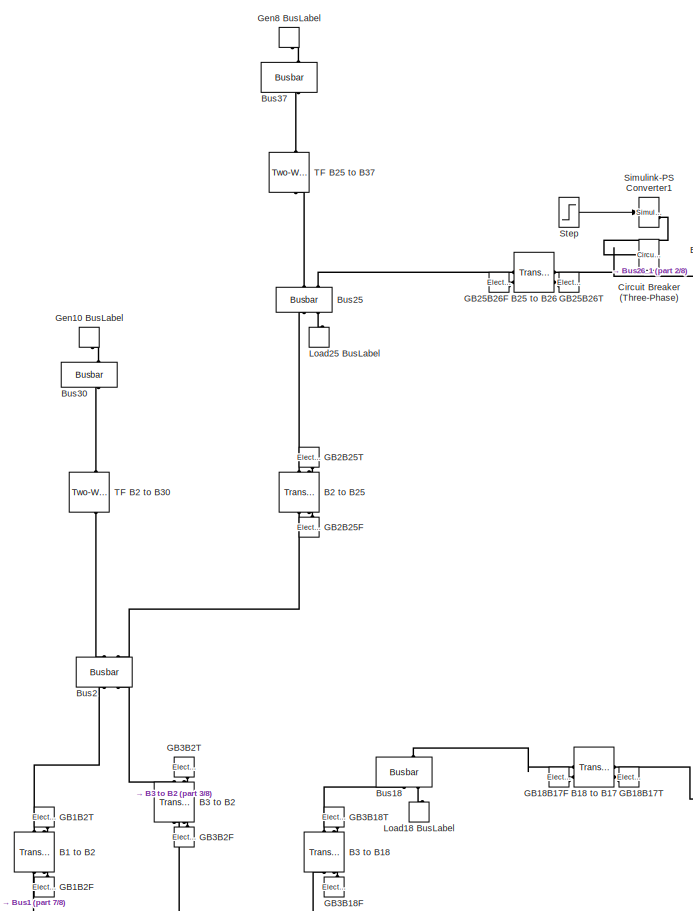
[diagram: Grid - part 1/8, top left region]
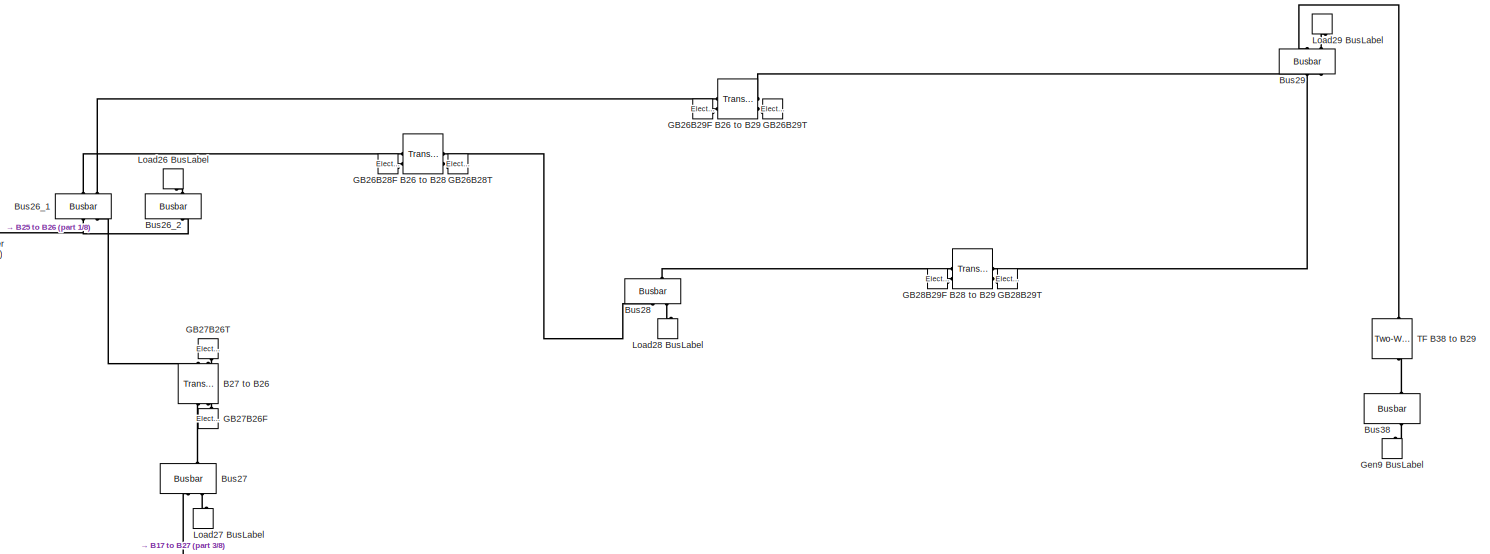
[diagram: Grid - part 2/8, top center region]
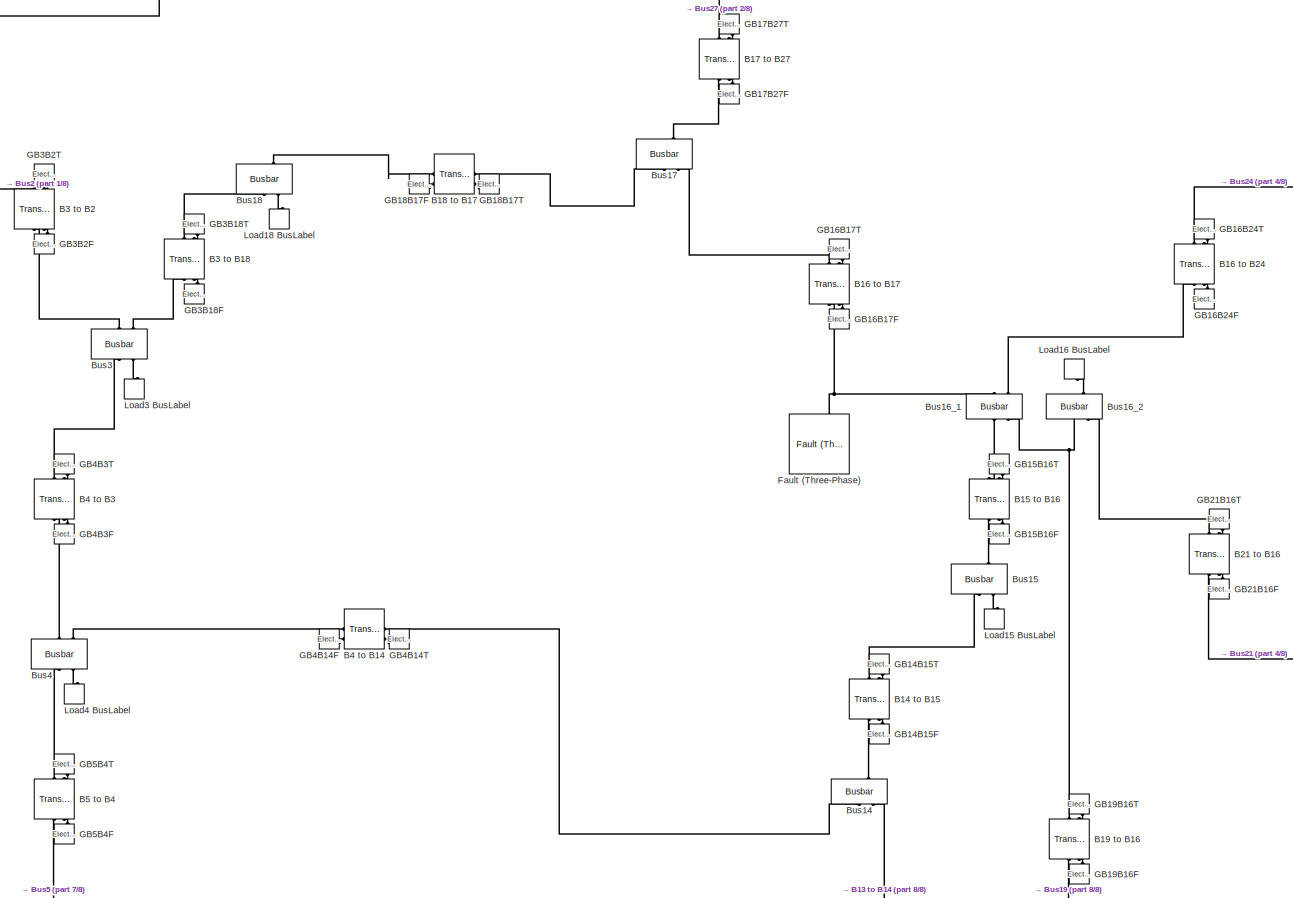
[diagram: Grid - part 3/8, central region]
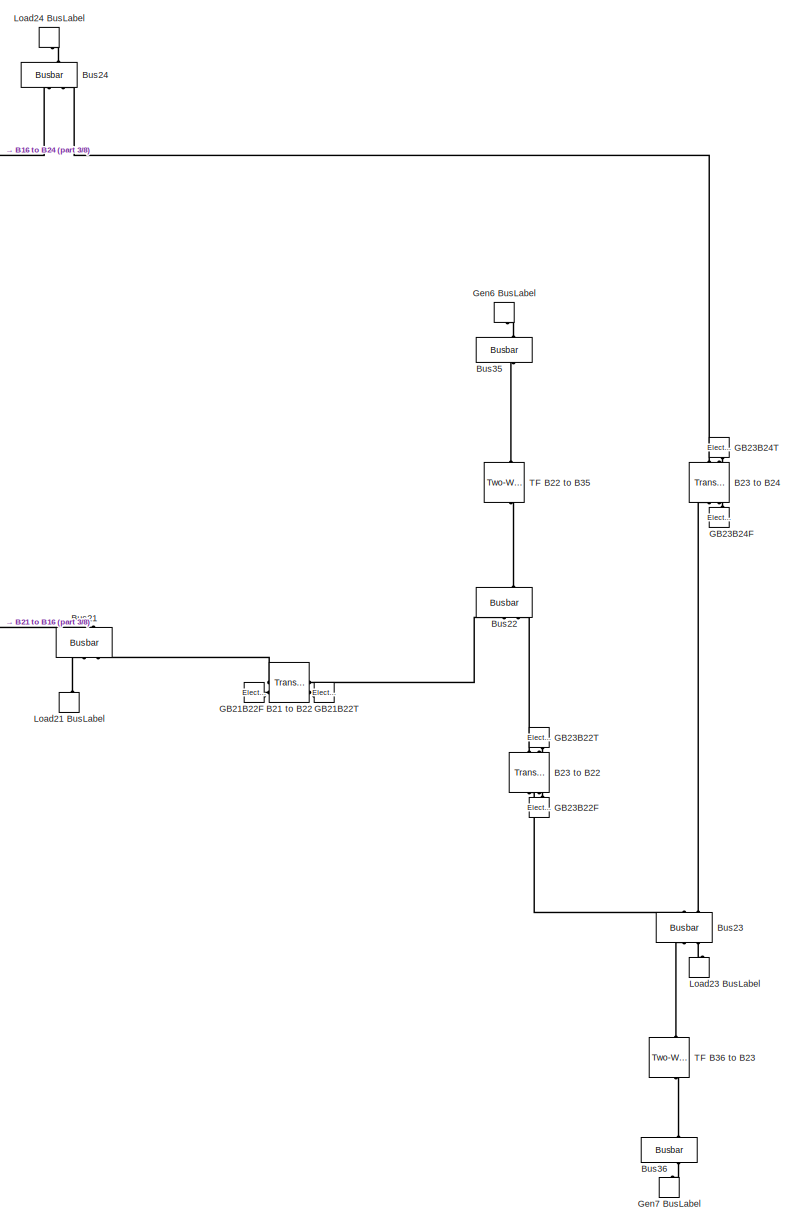
[diagram: Grid - part 4/8, middle right region]
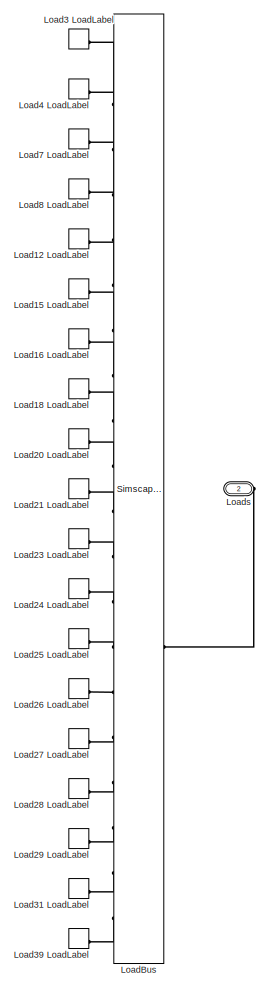
[diagram: Grid - part 5/8, middle right region]
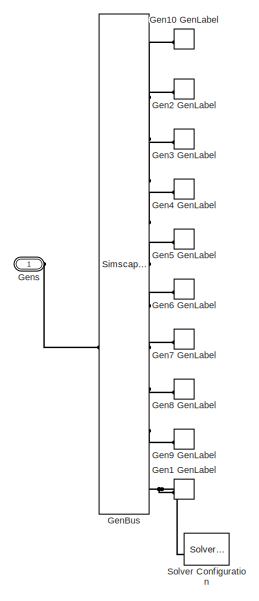
[diagram: Grid - part 6/8, middle left region]
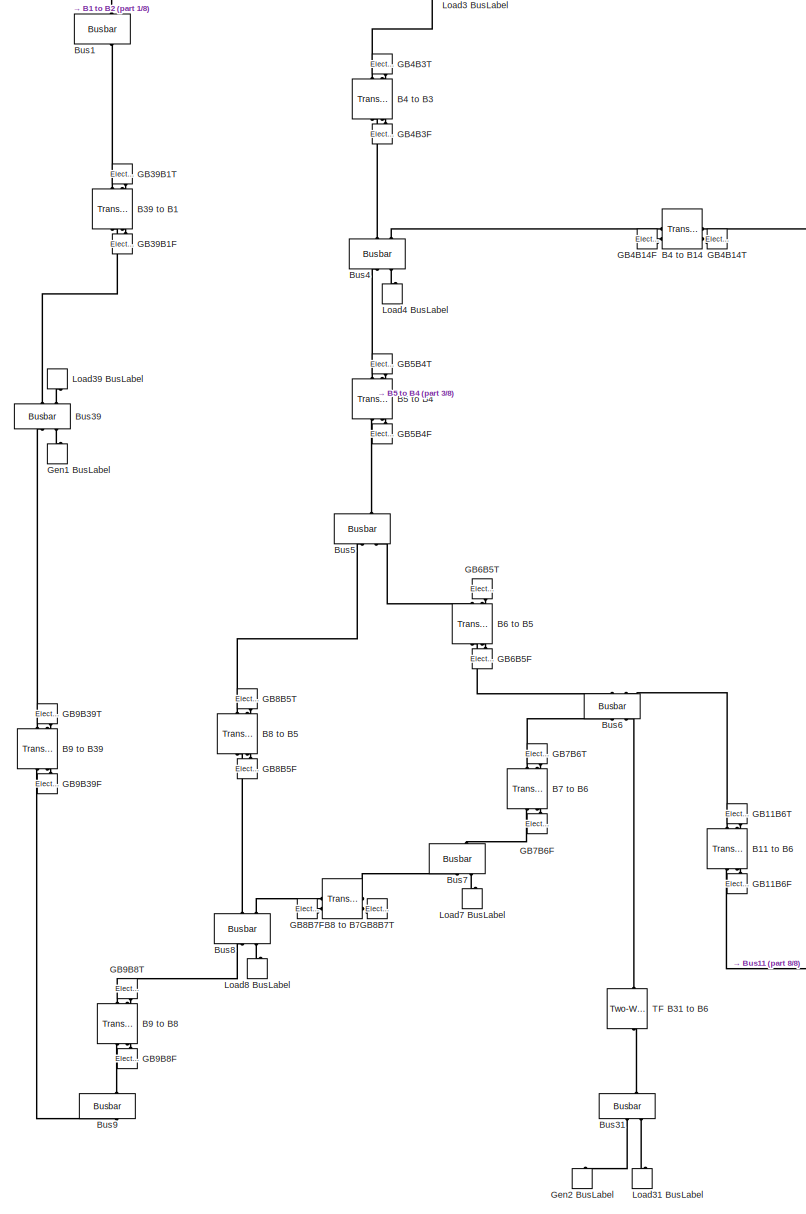
[diagram: Grid - part 7/8, middle left region]
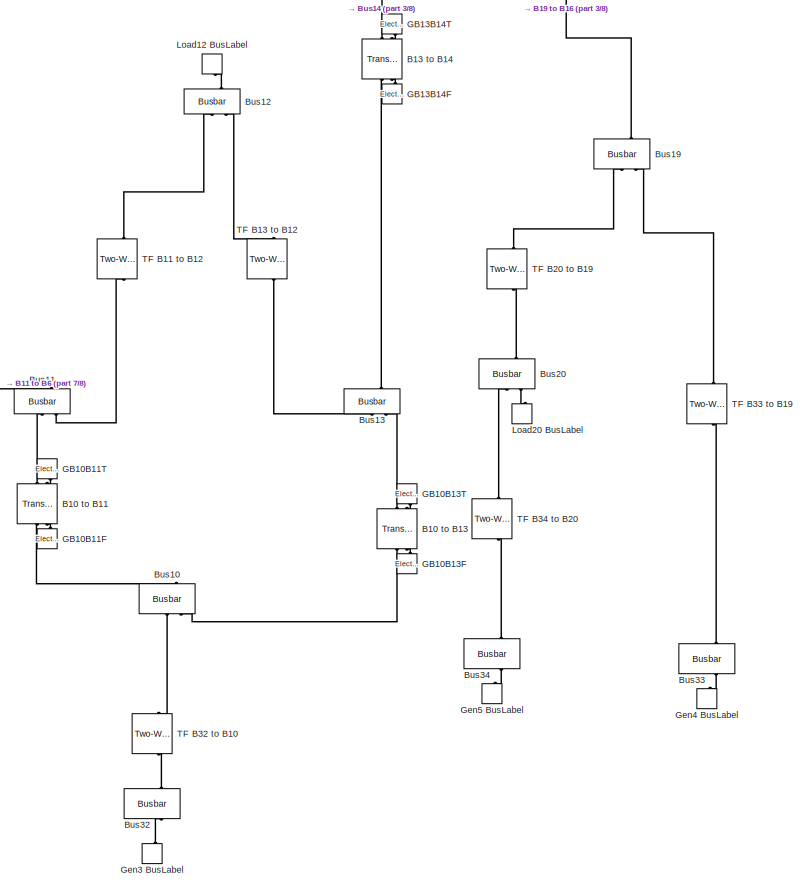
[diagram: Grid - part 8/8, bottom center region]
BLOCK [SubSystem] Grid
BLOCK [Reference] Grid/B1 to B2  REF=ee_lib/Passive/Lines/Transmission
Line
(Three-Phase)
  NameLocation = right
  SourceBlock = ee_lib/Passive/Lines/Transmission\nLine\n(Three-Phase)
  SourceType = Transmission\nLine\n(Three-Phase)
BLOCK [Reference] Grid/B10 to B11  REF=ee_lib/Passive/Lines/Transmission
Line
(Three-Phase)
  NameLocation = right
  SourceBlock = ee_lib/Passive/Lines/Transmission\nLine\n(Three-Phase)
  SourceType = Transmission\nLine\n(Three-Phase)
BLOCK [Reference] Grid/B10 to B13  REF=ee_lib/Passive/Lines/Transmission
Line
(Three-Phase)
  NameLocation = left
  SourceBlock = ee_lib/Passive/Lines/Transmission\nLine\n(Three-Phase)
  SourceType = Transmission\nLine\n(Three-Phase)
BLOCK [Reference] Grid/B11 to B6  REF=ee_lib/Passive/Lines/Transmission
Line
(Three-Phase)
  NameLocation = right
  SourceBlock = ee_lib/Passive/Lines/Transmission\nLine\n(Three-Phase)
  SourceType = Transmission\nLine\n(Three-Phase)
BLOCK [Reference] Grid/B13 to B14  REF=ee_lib/Passive/Lines/Transmission
Line
(Three-Phase)
  NameLocation = right
  SourceBlock = ee_lib/Passive/Lines/Transmission\nLine\n(Three-Phase)
  SourceType = Transmission\nLine\n(Three-Phase)
BLOCK [Reference] Grid/B14 to B15  REF=ee_lib/Passive/Lines/Transmission
Line
(Three-Phase)
  NameLocation = right
  SourceBlock = ee_lib/Passive/Lines/Transmission\nLine\n(Three-Phase)
  SourceType = Transmission\nLine\n(Three-Phase)
BLOCK [Reference] Grid/B15 to B16  REF=ee_lib/Passive/Lines/Transmission
Line
(Three-Phase)
  NameLocation = right
  SourceBlock = ee_lib/Passive/Lines/Transmission\nLine\n(Three-Phase)
  SourceType = Transmission\nLine\n(Three-Phase)
BLOCK [Reference] Grid/B16 to B17  REF=ee_lib/Passive/Lines/Transmission
Line
(Three-Phase)
  NameLocation = right
  SourceBlock = ee_lib/Passive/Lines/Transmission\nLine\n(Three-Phase)
  SourceType = Transmission\nLine\n(Three-Phase)
BLOCK [Reference] Grid/B16 to B24  REF=ee_lib/Passive/Lines/Transmission
Line
(Three-Phase)
  NameLocation = right
  SourceBlock = ee_lib/Passive/Lines/Transmission\nLine\n(Three-Phase)
  SourceType = Transmission\nLine\n(Three-Phase)
BLOCK [Reference] Grid/B17 to B27  REF=ee_lib/Passive/Lines/Transmission
Line
(Three-Phase)
  NameLocation = right
  SourceBlock = ee_lib/Passive/Lines/Transmission\nLine\n(Three-Phase)
  SourceType = Transmission\nLine\n(Three-Phase)
BLOCK [Reference] Grid/B18 to B17  REF=ee_lib/Passive/Lines/Transmission
Line
(Three-Phase)
  SourceBlock = ee_lib/Passive/Lines/Transmission\nLine\n(Three-Phase)
  SourceType = Transmission\nLine\n(Three-Phase)
BLOCK [Reference] Grid/B19 to B16  REF=ee_lib/Passive/Lines/Transmission
Line
(Three-Phase)
  NameLocation = right
  SourceBlock = ee_lib/Passive/Lines/Transmission\nLine\n(Three-Phase)
  SourceType = Transmission\nLine\n(Three-Phase)
BLOCK [Reference] Grid/B2 to B25  REF=ee_lib/Passive/Lines/Transmission
Line
(Three-Phase)
  NameLocation = right
  SourceBlock = ee_lib/Passive/Lines/Transmission\nLine\n(Three-Phase)
  SourceType = Transmission\nLine\n(Three-Phase)
BLOCK [Reference] Grid/B21 to B16  REF=ee_lib/Passive/Lines/Transmission
Line
(Three-Phase)
  NameLocation = right
  SourceBlock = ee_lib/Passive/Lines/Transmission\nLine\n(Three-Phase)
  SourceType = Transmission\nLine\n(Three-Phase)
BLOCK [Reference] Grid/B21 to B22  REF=ee_lib/Passive/Lines/Transmission
Line
(Three-Phase)
  SourceBlock = ee_lib/Passive/Lines/Transmission\nLine\n(Three-Phase)
  SourceType = Transmission\nLine\n(Three-Phase)
BLOCK [Reference] Grid/B23 to B22  REF=ee_lib/Passive/Lines/Transmission
Line
(Three-Phase)
  NameLocation = right
  SourceBlock = ee_lib/Passive/Lines/Transmission\nLine\n(Three-Phase)
  SourceType = Transmission\nLine\n(Three-Phase)
BLOCK [Reference] Grid/B23 to B24  REF=ee_lib/Passive/Lines/Transmission
Line
(Three-Phase)
  NameLocation = right
  SourceBlock = ee_lib/Passive/Lines/Transmission\nLine\n(Three-Phase)
  SourceType = Transmission\nLine\n(Three-Phase)
BLOCK [Reference] Grid/B25 to B26  REF=ee_lib/Passive/Lines/Transmission
Line
(Three-Phase)
  SourceBlock = ee_lib/Passive/Lines/Transmission\nLine\n(Three-Phase)
  SourceType = Transmission\nLine\n(Three-Phase)
BLOCK [Reference] Grid/B26 to B28  REF=ee_lib/Passive/Lines/Transmission
Line
(Three-Phase)
  SourceBlock = ee_lib/Passive/Lines/Transmission\nLine\n(Three-Phase)
  SourceType = Transmission\nLine\n(Three-Phase)
BLOCK [Reference] Grid/B26 to B29  REF=ee_lib/Passive/Lines/Transmission
Line
(Three-Phase)
  SourceBlock = ee_lib/Passive/Lines/Transmission\nLine\n(Three-Phase)
  SourceType = Transmission\nLine\n(Three-Phase)
BLOCK [Reference] Grid/B27 to B26  REF=ee_lib/Passive/Lines/Transmission
Line
(Three-Phase)
  NameLocation = right
  SourceBlock = ee_lib/Passive/Lines/Transmission\nLine\n(Three-Phase)
  SourceType = Transmission\nLine\n(Three-Phase)
BLOCK [Reference] Grid/B28 to B29  REF=ee_lib/Passive/Lines/Transmission
Line
(Three-Phase)
  SourceBlock = ee_lib/Passive/Lines/Transmission\nLine\n(Three-Phase)
  SourceType = Transmission\nLine\n(Three-Phase)
BLOCK [Reference] Grid/B3 to B18  REF=ee_lib/Passive/Lines/Transmission
Line
(Three-Phase)
  NameLocation = right
  SourceBlock = ee_lib/Passive/Lines/Transmission\nLine\n(Three-Phase)
  SourceType = Transmission\nLine\n(Three-Phase)
BLOCK [Reference] Grid/B3 to B2  REF=ee_lib/Passive/Lines/Transmission
Line
(Three-Phase)
  NameLocation = right
  SourceBlock = ee_lib/Passive/Lines/Transmission\nLine\n(Three-Phase)
  SourceType = Transmission\nLine\n(Three-Phase)
BLOCK [Reference] Grid/B39 to B1  REF=ee_lib/Passive/Lines/Transmission
Line
(Three-Phase)
  NameLocation = right
  SourceBlock = ee_lib/Passive/Lines/Transmission\nLine\n(Three-Phase)
  SourceType = Transmission\nLine\n(Three-Phase)
BLOCK [Reference] Grid/B4 to B14  REF=ee_lib/Passive/Lines/Transmission
Line
(Three-Phase)
  SourceBlock = ee_lib/Passive/Lines/Transmission\nLine\n(Three-Phase)
  SourceType = Transmission\nLine\n(Three-Phase)
BLOCK [Reference] Grid/B4 to B3  REF=ee_lib/Passive/Lines/Transmission
Line
(Three-Phase)
  NameLocation = right
  SourceBlock = ee_lib/Passive/Lines/Transmission\nLine\n(Three-Phase)
  SourceType = Transmission\nLine\n(Three-Phase)
BLOCK [Reference] Grid/B5 to B4  REF=ee_lib/Passive/Lines/Transmission
Line
(Three-Phase)
  NameLocation = right
  SourceBlock = ee_lib/Passive/Lines/Transmission\nLine\n(Three-Phase)
  SourceType = Transmission\nLine\n(Three-Phase)
BLOCK [Reference] Grid/B6 to B5  REF=ee_lib/Passive/Lines/Transmission
Line
(Three-Phase)
  NameLocation = right
  SourceBlock = ee_lib/Passive/Lines/Transmission\nLine\n(Three-Phase)
  SourceType = Transmission\nLine\n(Three-Phase)
BLOCK [Reference] Grid/B7 to B6  REF=ee_lib/Passive/Lines/Transmission
Line
(Three-Phase)
  NameLocation = right
  SourceBlock = ee_lib/Passive/Lines/Transmission\nLine\n(Three-Phase)
  SourceType = Transmission\nLine\n(Three-Phase)
BLOCK [Reference] Grid/B8 to B5  REF=ee_lib/Passive/Lines/Transmission
Line
(Three-Phase)
  NameLocation = right
  SourceBlock = ee_lib/Passive/Lines/Transmission\nLine\n(Three-Phase)
  SourceType = Transmission\nLine\n(Three-Phase)
BLOCK [Reference] Grid/B8 to B7  REF=ee_lib/Passive/Lines/Transmission
Line
(Three-Phase)
  SourceBlock = ee_lib/Passive/Lines/Transmission\nLine\n(Three-Phase)
  SourceType = Transmission\nLine\n(Three-Phase)
BLOCK [Reference] Grid/B9 to B39  REF=ee_lib/Passive/Lines/Transmission
Line
(Three-Phase)
  NameLocation = right
  SourceBlock = ee_lib/Passive/Lines/Transmission\nLine\n(Three-Phase)
  SourceType = Transmission\nLine\n(Three-Phase)
BLOCK [Reference] Grid/B9 to B8  REF=ee_lib/Passive/Lines/Transmission
Line
(Three-Phase)
  NameLocation = right
  SourceBlock = ee_lib/Passive/Lines/Transmission\nLine\n(Three-Phase)
  SourceType = Transmission\nLine\n(Three-Phase)
BLOCK [Reference] Grid/Bus1  REF=ee_lib/Connectors &
References/Busbar
  AttributesFormatString = %<Tag>
  NameLocation = right
  SourceBlock = ee_lib/Connectors &\nReferences/Busbar
  SourceType = Busbar
  Tag = 1.036 pu\n20.85 deg\n-150.3  150.3 MW\n19.1  -19.1 Mvar
BLOCK [Reference] Grid/Bus10  REF=ee_lib/Connectors &
References/Busbar
  AttributesFormatString = %<Tag>
  NameLocation = left
  SourceBlock = ee_lib/Connectors &\nReferences/Busbar
  SourceType = Busbar
  Tag = 0.966 pu\n25.54 deg\n649.4 -366.4 -283.0 MW\n36.0  -34.5   -1.5 Mvar
BLOCK [Reference] Grid/Bus11  REF=ee_lib/Connectors &
References/Busbar
  AttributesFormatString = %<Tag>
  NameLocation = left
  SourceBlock = ee_lib/Connectors &\nReferences/Busbar
  SourceType = Busbar
  Tag = 0.963 pu\n24.57 deg\n365.8 -365.8   -0.0 MW\n35.0    3.5  -38.4 Mvar
BLOCK [Reference] Grid/Bus12  REF=ee_lib/Connectors &
References/Busbar
  AttributesFormatString = %<Tag>
  NameLocation = right
  SourceBlock = ee_lib/Connectors &\nReferences/Busbar
  SourceType = Busbar
  Tag = 0.945 pu\n54.61 deg\n-0.2   -7.6    7.8 MW\n37.6  -78.6   41.1 Mvar
BLOCK [Reference] Grid/Bus13  REF=ee_lib/Connectors &
References/Busbar
  AttributesFormatString = %<Tag>
  NameLocation = right
  SourceBlock = ee_lib/Connectors &\nReferences/Busbar
  SourceType = Busbar
  Tag = 0.964 pu\n24.79 deg\n-8.0 -274.7  282.6 MW\n-42.1   37.5    4.6 Mvar
BLOCK [Reference] Grid/Bus14  REF=ee_lib/Connectors &
References/Busbar
  AttributesFormatString = %<Tag>
  NameLocation = right
  SourceBlock = ee_lib/Connectors &\nReferences/Busbar
  SourceType = Busbar
  Tag = 0.965 pu\n23.06 deg\n-267.1   -6.8  273.9 MW\n-19.3   49.0  -29.7 Mvar
BLOCK [Reference] Grid/Bus15  REF=ee_lib/Connectors &
References/Busbar
  AttributesFormatString = %<Tag>
  NameLocation = right
  SourceBlock = ee_lib/Connectors &\nReferences/Busbar
  SourceType = Busbar
  Tag = 0.972 pu\n22.94 deg\n6.8  295.8 -302.6 MW\n-14.9  159.6 -144.7 Mvar
BLOCK [Reference] Grid/Bus16_1  REF=ee_lib/Connectors &
References/Busbar
  AttributesFormatString = %<Tag>
  NameLocation = left
  SourceBlock = ee_lib/Connectors &\nReferences/Busbar
  SourceType = Busbar
  Tag = 0.990 pu\n24.51 deg\n-296.9 -261.2  518.6   39.4 MW\n-154.1   70.5  -52.7  136.3 Mvar
BLOCK [Reference] Grid/Bus16_2  REF=ee_lib/Connectors &
References/Busbar
  AttributesFormatString = %<Tag>
  NameLocation = right
  SourceBlock = ee_lib/Connectors &\nReferences/Busbar
  SourceType = Busbar
  Tag = 0.990 pu\n24.51 deg\n-1.7 -322.6  324.3 MW\n-0.2  -31.7   31.9 Mvar
BLOCK [Reference] Grid/Bus17  REF=ee_lib/Connectors &
References/Busbar
  AttributesFormatString = %<Tag>
  NameLocation = right
  SourceBlock = ee_lib/Connectors &\nReferences/Busbar
  SourceType = Busbar
  Tag = 0.994 pu\n23.13 deg\n-215.0  -45.6  260.6 MW\n4.7   59.1  -63.9 Mvar
BLOCK [Reference] Grid/Bus18  REF=ee_lib/Connectors &
References/Busbar
  AttributesFormatString = %<Tag>
  NameLocation = right
  SourceBlock = ee_lib/Connectors &\nReferences/Busbar
  SourceType = Busbar
  Tag = 0.993 pu\n22.11 deg\n-58.9  214.7 -155.8 MW\n25.1    4.5  -29.6 Mvar
BLOCK [Reference] Grid/Bus19  REF=ee_lib/Connectors &
References/Busbar
  AttributesFormatString = %<Tag>
  NameLocation = right
  SourceBlock = ee_lib/Connectors &\nReferences/Busbar
  SourceType = Busbar
  Tag = 0.991 pu\n30.48 deg\n-107.6 -521.4  629.0 MW\n-15.6   28.7  -13.2 Mvar
BLOCK [Reference] Grid/Bus2  REF=ee_lib/Connectors &
References/Busbar
  AttributesFormatString = %<Tag>
  NameLocation = right
  SourceBlock = ee_lib/Connectors &\nReferences/Busbar
  SourceType = Busbar
  Tag = 1.020 pu\n24.31 deg\n-151.1  249.7 -325.3  226.7 MW\n83.1  145.9 -143.0  -86.0 Mvar
BLOCK [Reference] Grid/Bus20  REF=ee_lib/Connectors &
References/Busbar
  AttributesFormatString = %<Tag>
  NameLocation = right
  SourceBlock = ee_lib/Connectors &\nReferences/Busbar
  SourceType = Busbar
  Tag = 0.988 pu\n29.61 deg\n505.4  107.3 -612.7 MW\n86.8   13.7 -100.5 Mvar
BLOCK [Reference] Grid/Bus21  REF=ee_lib/Connectors &
References/Busbar
  AttributesFormatString = %<Tag>
  NameLocation = left
  SourceBlock = ee_lib/Connectors &\nReferences/Busbar
  SourceType = Busbar
  Tag = 0.996 pu\n27.05 deg\n-272.0 -325.1  597.2 MW\n-114.2  -21.3  135.5 Mvar
BLOCK [Reference] Grid/Bus22  REF=ee_lib/Connectors &
References/Busbar
  AttributesFormatString = %<Tag>
  NameLocation = right
  SourceBlock = ee_lib/Connectors &\nReferences/Busbar
  SourceType = Busbar
  Tag = 1.022 pu\n31.70 deg\n-600.2  649.4  -49.2 MW\n-161.8  163.5   -1.8 Mvar
BLOCK [Reference] Grid/Bus23  REF=ee_lib/Connectors &
References/Busbar
  AttributesFormatString = %<Tag>
  NameLocation = right
  SourceBlock = ee_lib/Connectors &\nReferences/Busbar
  SourceType = Busbar
  Tag = 1.020 pu\n31.45 deg\n558.2   49.2 -257.7 -349.7 MW\n112.0   20.8  -88.1  -44.7 Mvar
BLOCK [Reference] Grid/Bus24  REF=ee_lib/Connectors &
References/Busbar
  AttributesFormatString = %<Tag>
  NameLocation = right
  SourceBlock = ee_lib/Connectors &\nReferences/Busbar
  SourceType = Busbar
  Tag = 0.998 pu\n24.62 deg\n-39.5 -307.5  347.0 MW\n-130.7   91.7   39.1 Mvar
BLOCK [Reference] Grid/Bus25  REF=ee_lib/Connectors &
References/Busbar
  AttributesFormatString = %<Tag>
  NameLocation = left
  SourceBlock = ee_lib/Connectors &\nReferences/Busbar
  SourceType = Busbar
  Tag = 1.028 pu\n25.73 deg\n-230.7  538.1 -236.9  -70.5 MW\n96.4  -48.7  -49.9    2.3 Mvar
BLOCK [Reference] Grid/Bus26_1  REF=ee_lib/Connectors &
References/Busbar
  AttributesFormatString = %<Tag>
  SourceBlock = ee_lib/Connectors &\nReferences/Busbar
  SourceType = Busbar
  Tag = 1.019 pu\n24.53 deg\n-73.9  129.9 -237.1  181.1 MW\n32.1   26.2  -88.5   30.1 Mvar
BLOCK [Reference] Grid/Bus26_2  REF=ee_lib/Connectors &
References/Busbar
  AttributesFormatString = %<Tag>
  NameLocation = right
  SourceBlock = ee_lib/Connectors &\nReferences/Busbar
  SourceType = Busbar
  Tag = 1.019 pu\n24.53 deg\n144.2 -144.2 MW\n17.6  -17.6 Mvar
BLOCK [Reference] Grid/Bus27  REF=ee_lib/Connectors &
References/Busbar
  AttributesFormatString = %<Tag>
  NameLocation = right
  SourceBlock = ee_lib/Connectors &\nReferences/Busbar
  SourceType = Busbar
  Tag = 1.001 pu\n22.65 deg\n45.5  236.2 -281.7 MW\n-27.8  103.5  -75.7 Mvar
BLOCK [Reference] Grid/Bus28  REF=ee_lib/Connectors &
References/Busbar
  AttributesFormatString = %<Tag>
  NameLocation = right
  SourceBlock = ee_lib/Connectors &\nReferences/Busbar
  SourceType = Busbar
  Tag = 1.019 pu\n27.96 deg\n-130.6  344.6 -214.0 MW\n47.0  -18.3  -28.7 Mvar
BLOCK [Reference] Grid/Bus29  REF=ee_lib/Connectors &
References/Busbar
  AttributesFormatString = %<Tag>
  NameLocation = right
  SourceBlock = ee_lib/Connectors &\nReferences/Busbar
  SourceType = Busbar
  Tag = 1.021 pu\n30.85 deg\n-183.0  824.5 -346.2 -295.4 MW\n56.8  -55.6   26.8  -28.0 Mvar
BLOCK [Reference] Grid/Bus3  REF=ee_lib/Connectors &
References/Busbar
  AttributesFormatString = %<Tag>
  NameLocation = right
  SourceBlock = ee_lib/Connectors &\nReferences/Busbar
  SourceType = Busbar
  Tag = 0.994 pu\n21.65 deg\n-64.2  323.6 -318.3   58.9 MW\n-143.3  150.2   -2.4   -4.5 Mvar
BLOCK [Reference] Grid/Bus30  REF=ee_lib/Connectors &
References/Busbar
  AttributesFormatString = %<Tag>
  NameLocation = left
  SourceBlock = ee_lib/Connectors &\nReferences/Busbar
  SourceType = Busbar
  Tag = 1.048 pu\n-3.28 deg\n-250.0  250.0 MW\n-160.7  160.7 Mvar
BLOCK [Reference] Grid/Bus31  REF=ee_lib/Connectors &
References/Busbar
  AttributesFormatString = %<Tag>
  NameLocation = right
  SourceBlock = ee_lib/Connectors &\nReferences/Busbar
  SourceType = Busbar
  Tag = 0.982 pu\n0.00 deg\n487.6 -478.8   -8.9 MW\n118.5 -114.1   -4.4 Mvar
BLOCK [Reference] Grid/Bus32  REF=ee_lib/Connectors &
References/Busbar
  AttributesFormatString = %<Tag>
  NameLocation = right
  SourceBlock = ee_lib/Connectors &\nReferences/Busbar
  SourceType = Busbar
  Tag = 0.983 pu\n3.40 deg\n650.0 -650.0 MW\n126.9 -126.9 Mvar
BLOCK [Reference] Grid/Bus33  REF=ee_lib/Connectors &
References/Busbar
  AttributesFormatString = %<Tag>
  NameLocation = right
  SourceBlock = ee_lib/Connectors &\nReferences/Busbar
  SourceType = Busbar
  Tag = 0.997 pu\n5.67 deg\n632.0 -632.0 MW\n44.3  -44.3 Mvar
BLOCK [Reference] Grid/Bus34  REF=ee_lib/Connectors &
References/Busbar
  AttributesFormatString = %<Tag>
  NameLocation = right
  SourceBlock = ee_lib/Connectors &\nReferences/Busbar
  SourceType = Busbar
  Tag = 1.012 pu\n4.79 deg\n508.0 -508.0 MW\n135.5 -135.5 Mvar
BLOCK [Reference] Grid/Bus35  REF=ee_lib/Connectors &
References/Busbar
  AttributesFormatString = %<Tag>
  NameLocation = right
  SourceBlock = ee_lib/Connectors &\nReferences/Busbar
  SourceType = Busbar
  Tag = 1.049 pu\n6.66 deg\n-650.0  650.0 MW\n-225.2  225.2 Mvar
BLOCK [Reference] Grid/Bus36  REF=ee_lib/Connectors &
References/Busbar
  AttributesFormatString = %<Tag>
  NameLocation = right
  SourceBlock = ee_lib/Connectors &\nReferences/Busbar
  SourceType = Busbar
  Tag = 1.064 pu\n9.46 deg\n560.0 -560.0 MW\n197.0 -197.0 Mvar
BLOCK [Reference] Grid/Bus37  REF=ee_lib/Connectors &
References/Busbar
  AttributesFormatString = %<Tag>
  NameLocation = right
  SourceBlock = ee_lib/Connectors &\nReferences/Busbar
  SourceType = Busbar
  Tag = 1.028 pu\n2.53 deg\n-540.0  540.0 MW\n-15.6   15.6 Mvar
BLOCK [Reference] Grid/Bus38  REF=ee_lib/Connectors &
References/Busbar
  AttributesFormatString = %<Tag>
  NameLocation = right
  SourceBlock = ee_lib/Connectors &\nReferences/Busbar
  SourceType = Busbar
  Tag = 1.027 pu\n7.93 deg\n830.0 -830.0 MW\n46.9  -46.9 Mvar
BLOCK [Reference] Grid/Bus39  REF=ee_lib/Connectors &
References/Busbar
  AttributesFormatString = %<Tag>
  NameLocation = right
  SourceBlock = ee_lib/Connectors &\nReferences/Busbar
  SourceType = Busbar
  Tag = 1.030 pu\n18.84 deg\n21.2  150.1 1000.0-1171.2 MW\n-16.4   55.6  226.0 -265.2 Mvar
BLOCK [Reference] Grid/Bus4  REF=ee_lib/Connectors &
References/Busbar
  AttributesFormatString = %<Tag>
  NameLocation = right
  SourceBlock = ee_lib/Connectors &\nReferences/Busbar
  SourceType = Busbar
  Tag = 0.960 pu\n20.95 deg\n130.8   63.9 -461.2  266.5 MW\n-10.9  158.5 -169.7   22.1 Mvar
BLOCK [Reference] Grid/Bus5  REF=ee_lib/Connectors &
References/Busbar
  AttributesFormatString = %<Tag>
  NameLocation = right
  SourceBlock = ee_lib/Connectors &\nReferences/Busbar
  SourceType = Busbar
  Tag = 0.959 pu\n22.01 deg\n-308.4 -130.9  439.4 MW\n-20.8   21.2   -0.4 Mvar
BLOCK [Reference] Grid/Bus6  REF=ee_lib/Connectors &
References/Busbar
  AttributesFormatString = %<Tag>
  NameLocation = right
  SourceBlock = ee_lib/Connectors &\nReferences/Busbar
  SourceType = Busbar
  Tag = 0.960 pu\n22.72 deg\n-403.3 -439.8  478.3  364.7 MW\n-47.6   -1.1   51.1   -2.5 Mvar
BLOCK [Reference] Grid/Bus7  REF=ee_lib/Connectors &
References/Busbar
  AttributesFormatString = %<Tag>
  NameLocation = right
  SourceBlock = ee_lib/Connectors &\nReferences/Busbar
  SourceType = Busbar
  Tag = 0.953 pu\n20.41 deg\n-189.7  402.2 -212.5 MW\n34.9   41.4  -76.4 Mvar
BLOCK [Reference] Grid/Bus8  REF=ee_lib/Connectors &
References/Busbar
  AttributesFormatString = %<Tag>
  NameLocation = right
  SourceBlock = ee_lib/Connectors &\nReferences/Busbar
  SourceType = Busbar
  Tag = 0.954 pu\n19.86 deg\n-21.8  307.6 -475.3  189.5 MW\n167.3   22.6 -160.2  -29.7 Mvar
BLOCK [Reference] Grid/Bus9  REF=ee_lib/Connectors &
References/Busbar
  AttributesFormatString = %<Tag>
  NameLocation = right
  SourceBlock = ee_lib/Connectors &\nReferences/Busbar
  SourceType = Busbar
  Tag = 1.011 pu\n19.18 deg\n-21.2   21.2 MW\n139.7 -139.7 Mvar
BLOCK [Reference] Grid/Circuit Breaker (Three-Phase)  REF=ee_lib/Switches & Breakers/Circuit Breaker
(Three-Phase)
  Commented = on
  SourceBlock = ee_lib/Switches & Breakers/Circuit Breaker\n(Three-Phase)
  SourceType = Circuit Breaker\n(Three-Phase)
BLOCK [Reference] Grid/Fault (Three-Phase)  REF=ee_lib/Utilities/Fault (Three-Phase)
  NameLocation = right
  SourceBlock = ee_lib/Utilities/Fault (Three-Phase)
  SourceType = Fault (Three-Phase)
BLOCK [Reference] Grid/GB10B11F  REF=fl_lib/Electrical/Electrical Elements/Electrical Reference
  NameLocation = right
  SourceBlock = fl_lib/Electrical/Electrical Elements/Electrical Reference
  SourceType = Electrical Reference
BLOCK [Reference] Grid/GB10B11T  REF=fl_lib/Electrical/Electrical Elements/Electrical Reference
  NameLocation = right
  SourceBlock = fl_lib/Electrical/Electrical Elements/Electrical Reference
  SourceType = Electrical Reference
BLOCK [Reference] Grid/GB10B13F  REF=fl_lib/Electrical/Electrical Elements/Electrical Reference
  NameLocation = right
  SourceBlock = fl_lib/Electrical/Electrical Elements/Electrical Reference
  SourceType = Electrical Reference
BLOCK [Reference] Grid/GB10B13T  REF=fl_lib/Electrical/Electrical Elements/Electrical Reference
  NameLocation = right
  SourceBlock = fl_lib/Electrical/Electrical Elements/Electrical Reference
  SourceType = Electrical Reference
BLOCK [Reference] Grid/GB11B6F  REF=fl_lib/Electrical/Electrical Elements/Electrical Reference
  NameLocation = right
  SourceBlock = fl_lib/Electrical/Electrical Elements/Electrical Reference
  SourceType = Electrical Reference
BLOCK [Reference] Grid/GB11B6T  REF=fl_lib/Electrical/Electrical Elements/Electrical Reference
  NameLocation = right
  SourceBlock = fl_lib/Electrical/Electrical Elements/Electrical Reference
  SourceType = Electrical Reference
BLOCK [Reference] Grid/GB13B14F  REF=fl_lib/Electrical/Electrical Elements/Electrical Reference
  NameLocation = right
  SourceBlock = fl_lib/Electrical/Electrical Elements/Electrical Reference
  SourceType = Electrical Reference
BLOCK [Reference] Grid/GB13B14T  REF=fl_lib/Electrical/Electrical Elements/Electrical Reference
  NameLocation = right
  SourceBlock = fl_lib/Electrical/Electrical Elements/Electrical Reference
  SourceType = Electrical Reference
BLOCK [Reference] Grid/GB14B15F  REF=fl_lib/Electrical/Electrical Elements/Electrical Reference
  NameLocation = right
  SourceBlock = fl_lib/Electrical/Electrical Elements/Electrical Reference
  SourceType = Electrical Reference
BLOCK [Reference] Grid/GB14B15T  REF=fl_lib/Electrical/Electrical Elements/Electrical Reference
  NameLocation = right
  SourceBlock = fl_lib/Electrical/Electrical Elements/Electrical Reference
  SourceType = Electrical Reference
BLOCK [Reference] Grid/GB15B16F  REF=fl_lib/Electrical/Electrical Elements/Electrical Reference
  NameLocation = right
  SourceBlock = fl_lib/Electrical/Electrical Elements/Electrical Reference
  SourceType = Electrical Reference
BLOCK [Reference] Grid/GB15B16T  REF=fl_lib/Electrical/Electrical Elements/Electrical Reference
  NameLocation = right
  SourceBlock = fl_lib/Electrical/Electrical Elements/Electrical Reference
  SourceType = Electrical Reference
BLOCK [Reference] Grid/GB16B17F  REF=fl_lib/Electrical/Electrical Elements/Electrical Reference
  NameLocation = right
  SourceBlock = fl_lib/Electrical/Electrical Elements/Electrical Reference
  SourceType = Electrical Reference
BLOCK [Reference] Grid/GB16B17T  REF=fl_lib/Electrical/Electrical Elements/Electrical Reference
  NameLocation = right
  SourceBlock = fl_lib/Electrical/Electrical Elements/Electrical Reference
  SourceType = Electrical Reference
BLOCK [Reference] Grid/GB16B24F  REF=fl_lib/Electrical/Electrical Elements/Electrical Reference
  NameLocation = right
  SourceBlock = fl_lib/Electrical/Electrical Elements/Electrical Reference
  SourceType = Electrical Reference
BLOCK [Reference] Grid/GB16B24T  REF=fl_lib/Electrical/Electrical Elements/Electrical Reference
  NameLocation = right
  SourceBlock = fl_lib/Electrical/Electrical Elements/Electrical Reference
  SourceType = Electrical Reference
BLOCK [Reference] Grid/GB17B27F  REF=fl_lib/Electrical/Electrical Elements/Electrical Reference
  NameLocation = right
  SourceBlock = fl_lib/Electrical/Electrical Elements/Electrical Reference
  SourceType = Electrical Reference
BLOCK [Reference] Grid/GB17B27T  REF=fl_lib/Electrical/Electrical Elements/Electrical Reference
  NameLocation = right
  SourceBlock = fl_lib/Electrical/Electrical Elements/Electrical Reference
  SourceType = Electrical Reference
BLOCK [Reference] Grid/GB18B17F  REF=fl_lib/Electrical/Electrical Elements/Electrical Reference
  SourceBlock = fl_lib/Electrical/Electrical Elements/Electrical Reference
  SourceType = Electrical Reference
BLOCK [Reference] Grid/GB18B17T  REF=fl_lib/Electrical/Electrical Elements/Electrical Reference
  SourceBlock = fl_lib/Electrical/Electrical Elements/Electrical Reference
  SourceType = Electrical Reference
BLOCK [Reference] Grid/GB19B16F  REF=fl_lib/Electrical/Electrical Elements/Electrical Reference
  NameLocation = right
  SourceBlock = fl_lib/Electrical/Electrical Elements/Electrical Reference
  SourceType = Electrical Reference
BLOCK [Reference] Grid/GB19B16T  REF=fl_lib/Electrical/Electrical Elements/Electrical Reference
  NameLocation = right
  SourceBlock = fl_lib/Electrical/Electrical Elements/Electrical Reference
  SourceType = Electrical Reference
BLOCK [Reference] Grid/GB1B2F  REF=fl_lib/Electrical/Electrical Elements/Electrical Reference
  NameLocation = right
  SourceBlock = fl_lib/Electrical/Electrical Elements/Electrical Reference
  SourceType = Electrical Reference
BLOCK [Reference] Grid/GB1B2T  REF=fl_lib/Electrical/Electrical Elements/Electrical Reference
  NameLocation = right
  SourceBlock = fl_lib/Electrical/Electrical Elements/Electrical Reference
  SourceType = Electrical Reference
BLOCK [Reference] Grid/GB21B16F  REF=fl_lib/Electrical/Electrical Elements/Electrical Reference
  NameLocation = right
  SourceBlock = fl_lib/Electrical/Electrical Elements/Electrical Reference
  SourceType = Electrical Reference
BLOCK [Reference] Grid/GB21B16T  REF=fl_lib/Electrical/Electrical Elements/Electrical Reference
  NameLocation = right
  SourceBlock = fl_lib/Electrical/Electrical Elements/Electrical Reference
  SourceType = Electrical Reference
BLOCK [Reference] Grid/GB21B22F  REF=fl_lib/Electrical/Electrical Elements/Electrical Reference
  SourceBlock = fl_lib/Electrical/Electrical Elements/Electrical Reference
  SourceType = Electrical Reference
BLOCK [Reference] Grid/GB21B22T  REF=fl_lib/Electrical/Electrical Elements/Electrical Reference
  SourceBlock = fl_lib/Electrical/Electrical Elements/Electrical Reference
  SourceType = Electrical Reference
BLOCK [Reference] Grid/GB23B22F  REF=fl_lib/Electrical/Electrical Elements/Electrical Reference
  NameLocation = right
  SourceBlock = fl_lib/Electrical/Electrical Elements/Electrical Reference
  SourceType = Electrical Reference
BLOCK [Reference] Grid/GB23B22T  REF=fl_lib/Electrical/Electrical Elements/Electrical Reference
  NameLocation = right
  SourceBlock = fl_lib/Electrical/Electrical Elements/Electrical Reference
  SourceType = Electrical Reference
BLOCK [Reference] Grid/GB23B24F  REF=fl_lib/Electrical/Electrical Elements/Electrical Reference
  NameLocation = right
  SourceBlock = fl_lib/Electrical/Electrical Elements/Electrical Reference
  SourceType = Electrical Reference
BLOCK [Reference] Grid/GB23B24T  REF=fl_lib/Electrical/Electrical Elements/Electrical Reference
  NameLocation = right
  SourceBlock = fl_lib/Electrical/Electrical Elements/Electrical Reference
  SourceType = Electrical Reference
BLOCK [Reference] Grid/GB25B26F  REF=fl_lib/Electrical/Electrical Elements/Electrical Reference
  SourceBlock = fl_lib/Electrical/Electrical Elements/Electrical Reference
  SourceType = Electrical Reference
BLOCK [Reference] Grid/GB25B26T  REF=fl_lib/Electrical/Electrical Elements/Electrical Reference
  SourceBlock = fl_lib/Electrical/Electrical Elements/Electrical Reference
  SourceType = Electrical Reference
BLOCK [Reference] Grid/GB26B28F  REF=fl_lib/Electrical/Electrical Elements/Electrical Reference
  SourceBlock = fl_lib/Electrical/Electrical Elements/Electrical Reference
  SourceType = Electrical Reference
BLOCK [Reference] Grid/GB26B28T  REF=fl_lib/Electrical/Electrical Elements/Electrical Reference
  SourceBlock = fl_lib/Electrical/Electrical Elements/Electrical Reference
  SourceType = Electrical Reference
BLOCK [Reference] Grid/GB26B29F  REF=fl_lib/Electrical/Electrical Elements/Electrical Reference
  SourceBlock = fl_lib/Electrical/Electrical Elements/Electrical Reference
  SourceType = Electrical Reference
BLOCK [Reference] Grid/GB26B29T  REF=fl_lib/Electrical/Electrical Elements/Electrical Reference
  SourceBlock = fl_lib/Electrical/Electrical Elements/Electrical Reference
  SourceType = Electrical Reference
BLOCK [Reference] Grid/GB27B26F  REF=fl_lib/Electrical/Electrical Elements/Electrical Reference
  NameLocation = right
  SourceBlock = fl_lib/Electrical/Electrical Elements/Electrical Reference
  SourceType = Electrical Reference
BLOCK [Reference] Grid/GB27B26T  REF=fl_lib/Electrical/Electrical Elements/Electrical Reference
  NameLocation = right
  SourceBlock = fl_lib/Electrical/Electrical Elements/Electrical Reference
  SourceType = Electrical Reference
BLOCK [Reference] Grid/GB28B29F  REF=fl_lib/Electrical/Electrical Elements/Electrical Reference
  SourceBlock = fl_lib/Electrical/Electrical Elements/Electrical Reference
  SourceType = Electrical Reference
BLOCK [Reference] Grid/GB28B29T  REF=fl_lib/Electrical/Electrical Elements/Electrical Reference
  SourceBlock = fl_lib/Electrical/Electrical Elements/Electrical Reference
  SourceType = Electrical Reference
BLOCK [Reference] Grid/GB2B25F  REF=fl_lib/Electrical/Electrical Elements/Electrical Reference
  NameLocation = right
  SourceBlock = fl_lib/Electrical/Electrical Elements/Electrical Reference
  SourceType = Electrical Reference
BLOCK [Reference] Grid/GB2B25T  REF=fl_lib/Electrical/Electrical Elements/Electrical Reference
  NameLocation = right
  SourceBlock = fl_lib/Electrical/Electrical Elements/Electrical Reference
  SourceType = Electrical Reference
BLOCK [Reference] Grid/GB39B1F  REF=fl_lib/Electrical/Electrical Elements/Electrical Reference
  NameLocation = right
  SourceBlock = fl_lib/Electrical/Electrical Elements/Electrical Reference
  SourceType = Electrical Reference
BLOCK [Reference] Grid/GB39B1T  REF=fl_lib/Electrical/Electrical Elements/Electrical Reference
  NameLocation = right
  SourceBlock = fl_lib/Electrical/Electrical Elements/Electrical Reference
  SourceType = Electrical Reference
BLOCK [Reference] Grid/GB3B18F  REF=fl_lib/Electrical/Electrical Elements/Electrical Reference
  NameLocation = right
  SourceBlock = fl_lib/Electrical/Electrical Elements/Electrical Reference
  SourceType = Electrical Reference
BLOCK [Reference] Grid/GB3B18T  REF=fl_lib/Electrical/Electrical Elements/Electrical Reference
  NameLocation = right
  SourceBlock = fl_lib/Electrical/Electrical Elements/Electrical Reference
  SourceType = Electrical Reference
BLOCK [Reference] Grid/GB3B2F  REF=fl_lib/Electrical/Electrical Elements/Electrical Reference
  NameLocation = right
  SourceBlock = fl_lib/Electrical/Electrical Elements/Electrical Reference
  SourceType = Electrical Reference
BLOCK [Reference] Grid/GB3B2T  REF=fl_lib/Electrical/Electrical Elements/Electrical Reference
  NameLocation = right
  SourceBlock = fl_lib/Electrical/Electrical Elements/Electrical Reference
  SourceType = Electrical Reference
BLOCK [Reference] Grid/GB4B14F  REF=fl_lib/Electrical/Electrical Elements/Electrical Reference
  SourceBlock = fl_lib/Electrical/Electrical Elements/Electrical Reference
  SourceType = Electrical Reference
BLOCK [Reference] Grid/GB4B14T  REF=fl_lib/Electrical/Electrical Elements/Electrical Reference
  SourceBlock = fl_lib/Electrical/Electrical Elements/Electrical Reference
  SourceType = Electrical Reference
BLOCK [Reference] Grid/GB4B3F  REF=fl_lib/Electrical/Electrical Elements/Electrical Reference
  NameLocation = right
  SourceBlock = fl_lib/Electrical/Electrical Elements/Electrical Reference
  SourceType = Electrical Reference
BLOCK [Reference] Grid/GB4B3T  REF=fl_lib/Electrical/Electrical Elements/Electrical Reference
  NameLocation = right
  SourceBlock = fl_lib/Electrical/Electrical Elements/Electrical Reference
  SourceType = Electrical Reference
BLOCK [Reference] Grid/GB5B4F  REF=fl_lib/Electrical/Electrical Elements/Electrical Reference
  NameLocation = right
  SourceBlock = fl_lib/Electrical/Electrical Elements/Electrical Reference
  SourceType = Electrical Reference
BLOCK [Reference] Grid/GB5B4T  REF=fl_lib/Electrical/Electrical Elements/Electrical Reference
  NameLocation = right
  SourceBlock = fl_lib/Electrical/Electrical Elements/Electrical Reference
  SourceType = Electrical Reference
BLOCK [Reference] Grid/GB6B5F  REF=fl_lib/Electrical/Electrical Elements/Electrical Reference
  NameLocation = right
  SourceBlock = fl_lib/Electrical/Electrical Elements/Electrical Reference
  SourceType = Electrical Reference
BLOCK [Reference] Grid/GB6B5T  REF=fl_lib/Electrical/Electrical Elements/Electrical Reference
  NameLocation = right
  SourceBlock = fl_lib/Electrical/Electrical Elements/Electrical Reference
  SourceType = Electrical Reference
BLOCK [Reference] Grid/GB7B6F  REF=fl_lib/Electrical/Electrical Elements/Electrical Reference
  NameLocation = right
  SourceBlock = fl_lib/Electrical/Electrical Elements/Electrical Reference
  SourceType = Electrical Reference
BLOCK [Reference] Grid/GB7B6T  REF=fl_lib/Electrical/Electrical Elements/Electrical Reference
  NameLocation = right
  SourceBlock = fl_lib/Electrical/Electrical Elements/Electrical Reference
  SourceType = Electrical Reference
BLOCK [Reference] Grid/GB8B5F  REF=fl_lib/Electrical/Electrical Elements/Electrical Reference
  NameLocation = right
  SourceBlock = fl_lib/Electrical/Electrical Elements/Electrical Reference
  SourceType = Electrical Reference
BLOCK [Reference] Grid/GB8B5T  REF=fl_lib/Electrical/Electrical Elements/Electrical Reference
  NameLocation = right
  SourceBlock = fl_lib/Electrical/Electrical Elements/Electrical Reference
  SourceType = Electrical Reference
BLOCK [Reference] Grid/GB8B7F  REF=fl_lib/Electrical/Electrical Elements/Electrical Reference
  SourceBlock = fl_lib/Electrical/Electrical Elements/Electrical Reference
  SourceType = Electrical Reference
BLOCK [Reference] Grid/GB8B7T  REF=fl_lib/Electrical/Electrical Elements/Electrical Reference
  SourceBlock = fl_lib/Electrical/Electrical Elements/Electrical Reference
  SourceType = Electrical Reference
BLOCK [Reference] Grid/GB9B39F  REF=fl_lib/Electrical/Electrical Elements/Electrical Reference
  NameLocation = right
  SourceBlock = fl_lib/Electrical/Electrical Elements/Electrical Reference
  SourceType = Electrical Reference
BLOCK [Reference] Grid/GB9B39T  REF=fl_lib/Electrical/Electrical Elements/Electrical Reference
  NameLocation = right
  SourceBlock = fl_lib/Electrical/Electrical Elements/Electrical Reference
  SourceType = Electrical Reference
BLOCK [Reference] Grid/GB9B8F  REF=fl_lib/Electrical/Electrical Elements/Electrical Reference
  NameLocation = right
  SourceBlock = fl_lib/Electrical/Electrical Elements/Electrical Reference
  SourceType = Electrical Reference
BLOCK [Reference] Grid/GB9B8T  REF=fl_lib/Electrical/Electrical Elements/Electrical Reference
  NameLocation = right
  SourceBlock = fl_lib/Electrical/Electrical Elements/Electrical Reference
  SourceType = Electrical Reference
BLOCK [ConnectionLabel] Grid/Gen1 BusLabel
  Label = Gen1Label
  NameLocation = right
BLOCK [ConnectionLabel] Grid/Gen1 GenLabel
  Label = Gen1Label
BLOCK [ConnectionLabel] Grid/Gen10 BusLabel
  Label = Gen10Label
  NameLocation = right
BLOCK [ConnectionLabel] Grid/Gen10 GenLabel
  Label = Gen10Label
BLOCK [ConnectionLabel] Grid/Gen2 BusLabel
  Label = Gen2Label
  NameLocation = right
BLOCK [ConnectionLabel] Grid/Gen2 GenLabel
  Label = Gen2Label
BLOCK [ConnectionLabel] Grid/Gen3 BusLabel
  Label = Gen3Label
  NameLocation = right
BLOCK [ConnectionLabel] Grid/Gen3 GenLabel
  Label = Gen3Label
BLOCK [ConnectionLabel] Grid/Gen4 BusLabel
  Label = Gen4Label
  NameLocation = right
BLOCK [ConnectionLabel] Grid/Gen4 GenLabel
  Label = Gen4Label
BLOCK [ConnectionLabel] Grid/Gen5 BusLabel
  Label = Gen5Label
  NameLocation = right
BLOCK [ConnectionLabel] Grid/Gen5 GenLabel
  Label = Gen5Label
BLOCK [ConnectionLabel] Grid/Gen6 BusLabel
  Label = Gen6Label
  NameLocation = right
BLOCK [ConnectionLabel] Grid/Gen6 GenLabel
  Label = Gen6Label
BLOCK [ConnectionLabel] Grid/Gen7 BusLabel
  Label = Gen7Label
  NameLocation = right
BLOCK [ConnectionLabel] Grid/Gen7 GenLabel
  Label = Gen7Label
BLOCK [ConnectionLabel] Grid/Gen8 BusLabel
  Label = Gen8Label
  NameLocation = right
BLOCK [ConnectionLabel] Grid/Gen8 GenLabel
  Label = Gen8Label
BLOCK [ConnectionLabel] Grid/Gen9 BusLabel
  Label = Gen9Label
  NameLocation = right
BLOCK [ConnectionLabel] Grid/Gen9 GenLabel
  Label = Gen9Label
BLOCK [SimscapeBus] Grid/GenBus
  HierarchyStrings = Gen10;Gen2;Gen3;Gen4;Gen5;Gen6;Gen7;Gen8;Gen9;Gen1
BLOCK [PMIOPort] Grid/Gens
  Side = Left
BLOCK [ConnectionLabel] Grid/Load12 BusLabel
  Label = Load12Label
  NameLocation = right
BLOCK [ConnectionLabel] Grid/Load12 LoadLabel
  Label = Load12Label
BLOCK [ConnectionLabel] Grid/Load15 BusLabel
  Label = Load15Label
  NameLocation = right
BLOCK [ConnectionLabel] Grid/Load15 LoadLabel
  Label = Load15Label
BLOCK [ConnectionLabel] Grid/Load16 BusLabel
  Label = Load16Label
  NameLocation = right
BLOCK [ConnectionLabel] Grid/Load16 LoadLabel
  Label = Load16Label
BLOCK [ConnectionLabel] Grid/Load18 BusLabel
  Label = Load18Label
  NameLocation = right
BLOCK [ConnectionLabel] Grid/Load18 LoadLabel
  Label = Load18Label
BLOCK [ConnectionLabel] Grid/Load20 BusLabel
  Label = Load20Label
  NameLocation = right
BLOCK [ConnectionLabel] Grid/Load20 LoadLabel
  Label = Load20Label
BLOCK [ConnectionLabel] Grid/Load21 BusLabel
  Label = Load21Label
  NameLocation = right
BLOCK [ConnectionLabel] Grid/Load21 LoadLabel
  Label = Load21Label
BLOCK [ConnectionLabel] Grid/Load23 BusLabel
  Label = Load23Label
  NameLocation = right
BLOCK [ConnectionLabel] Grid/Load23 LoadLabel
  Label = Load23Label
BLOCK [ConnectionLabel] Grid/Load24 BusLabel
  Label = Load24Label
  NameLocation = right
BLOCK [ConnectionLabel] Grid/Load24 LoadLabel
  Label = Load24Label
BLOCK [ConnectionLabel] Grid/Load25 BusLabel
  Label = Load25Label
  NameLocation = right
BLOCK [ConnectionLabel] Grid/Load25 LoadLabel
  Label = Load25Label
BLOCK [ConnectionLabel] Grid/Load26 BusLabel
  Label = Load26Label
  NameLocation = right
BLOCK [ConnectionLabel] Grid/Load26 LoadLabel
  Label = Load26Label
BLOCK [ConnectionLabel] Grid/Load27 BusLabel
  Label = Load27Label
  NameLocation = right
BLOCK [ConnectionLabel] Grid/Load27 LoadLabel
  Label = Load27Label
BLOCK [ConnectionLabel] Grid/Load28 BusLabel
  Label = Load28Label
  NameLocation = right
BLOCK [ConnectionLabel] Grid/Load28 LoadLabel
  Label = Load28Label
BLOCK [ConnectionLabel] Grid/Load29 BusLabel
  Label = Load29Label
  NameLocation = right
BLOCK [ConnectionLabel] Grid/Load29 LoadLabel
  Label = Load29Label
BLOCK [ConnectionLabel] Grid/Load3 BusLabel
  Label = Load3Label
  NameLocation = right
BLOCK [ConnectionLabel] Grid/Load3 LoadLabel
  Label = Load3Label
BLOCK [ConnectionLabel] Grid/Load31 BusLabel
  Label = Load31Label
  NameLocation = right
BLOCK [ConnectionLabel] Grid/Load31 LoadLabel
  Label = Load31Label
BLOCK [ConnectionLabel] Grid/Load39 BusLabel
  Label = Load39Label
  NameLocation = right
BLOCK [ConnectionLabel] Grid/Load39 LoadLabel
  Label = Load39Label
BLOCK [ConnectionLabel] Grid/Load4 BusLabel
  Label = Load4Label
  NameLocation = right
BLOCK [ConnectionLabel] Grid/Load4 LoadLabel
  Label = Load4Label
BLOCK [ConnectionLabel] Grid/Load7 BusLabel
  Label = Load7Label
  NameLocation = right
BLOCK [ConnectionLabel] Grid/Load7 LoadLabel
  Label = Load7Label
BLOCK [ConnectionLabel] Grid/Load8 BusLabel
  Label = Load8Label
  NameLocation = right
BLOCK [ConnectionLabel] Grid/Load8 LoadLabel
  Label = Load8Label
BLOCK [SimscapeBus] Grid/LoadBus
  HierarchyStrings = Load3;Load4;Load7;Load8;Load12;Load15;Load16;Load18;Load20;Load21;Load23;Load24;Load25;Load26;Load27;Load28;Load29;Load31;Load39
BLOCK [PMIOPort] Grid/Loads
  Port = 2
  Side = Right
BLOCK [Reference] Grid/Simulink-PS Converter1  REF=nesl_utility/Simulink-PS
Converter
  Commented = on
  SourceBlock = nesl_utility/Simulink-PS\nConverter
  SourceType = Simulink-PS\nConverter
BLOCK [Reference] Grid/Solver Configuration  REF=nesl_utility/Solver
Configuration
  SourceBlock = nesl_utility/Solver\nConfiguration
  SourceType = Solver\nConfiguration
BLOCK [Step] Grid/Step
  After = 0
  Before = 1
  Commented = on
  SampleTime = 0
  Time = 0.5
BLOCK [Reference] Grid/TF B11 to B12  REF=ee_lib/Passive/Transformers/Two-Winding
Transformer
(Three-Phase)
  NameLocation = right
  SourceBlock = ee_lib/Passive/Transformers/Two-Winding\nTransformer\n(Three-Phase)
  SourceType = Two-Winding\nTransformer\n(Three-Phase)
BLOCK [Reference] Grid/TF B13 to B12  REF=ee_lib/Passive/Transformers/Two-Winding
Transformer
(Three-Phase)
  NameLocation = right
  SourceBlock = ee_lib/Passive/Transformers/Two-Winding\nTransformer\n(Three-Phase)
  SourceType = Two-Winding\nTransformer\n(Three-Phase)
BLOCK [Reference] Grid/TF B2 to B30  REF=ee_lib/Passive/Transformers/Two-Winding
Transformer
(Three-Phase)
  NameLocation = right
  SourceBlock = ee_lib/Passive/Transformers/Two-Winding\nTransformer\n(Three-Phase)
  SourceType = Two-Winding\nTransformer\n(Three-Phase)
BLOCK [Reference] Grid/TF B20 to B19  REF=ee_lib/Passive/Transformers/Two-Winding
Transformer
(Three-Phase)
  NameLocation = right
  SourceBlock = ee_lib/Passive/Transformers/Two-Winding\nTransformer\n(Three-Phase)
  SourceType = Two-Winding\nTransformer\n(Three-Phase)
BLOCK [Reference] Grid/TF B22 to B35  REF=ee_lib/Passive/Transformers/Two-Winding
Transformer
(Three-Phase)
  NameLocation = right
  SourceBlock = ee_lib/Passive/Transformers/Two-Winding\nTransformer\n(Three-Phase)
  SourceType = Two-Winding\nTransformer\n(Three-Phase)
BLOCK [Reference] Grid/TF B25 to B37  REF=ee_lib/Passive/Transformers/Two-Winding
Transformer
(Three-Phase)
  NameLocation = right
  SourceBlock = ee_lib/Passive/Transformers/Two-Winding\nTransformer\n(Three-Phase)
  SourceType = Two-Winding\nTransformer\n(Three-Phase)
BLOCK [Reference] Grid/TF B31 to B6  REF=ee_lib/Passive/Transformers/Two-Winding
Transformer
(Three-Phase)
  NameLocation = right
  SourceBlock = ee_lib/Passive/Transformers/Two-Winding\nTransformer\n(Three-Phase)
  SourceType = Two-Winding\nTransformer\n(Three-Phase)
BLOCK [Reference] Grid/TF B32 to B10  REF=ee_lib/Passive/Transformers/Two-Winding
Transformer
(Three-Phase)
  NameLocation = right
  SourceBlock = ee_lib/Passive/Transformers/Two-Winding\nTransformer\n(Three-Phase)
  SourceType = Two-Winding\nTransformer\n(Three-Phase)
BLOCK [Reference] Grid/TF B33 to B19  REF=ee_lib/Passive/Transformers/Two-Winding
Transformer
(Three-Phase)
  NameLocation = right
  SourceBlock = ee_lib/Passive/Transformers/Two-Winding\nTransformer\n(Three-Phase)
  SourceType = Two-Winding\nTransformer\n(Three-Phase)
BLOCK [Reference] Grid/TF B34 to B20  REF=ee_lib/Passive/Transformers/Two-Winding
Transformer
(Three-Phase)
  NameLocation = right
  SourceBlock = ee_lib/Passive/Transformers/Two-Winding\nTransformer\n(Three-Phase)
  SourceType = Two-Winding\nTransformer\n(Three-Phase)
BLOCK [Reference] Grid/TF B36 to B23  REF=ee_lib/Passive/Transformers/Two-Winding
Transformer
(Three-Phase)
  NameLocation = right
  SourceBlock = ee_lib/Passive/Transformers/Two-Winding\nTransformer\n(Three-Phase)
  SourceType = Two-Winding\nTransformer\n(Three-Phase)
BLOCK [Reference] Grid/TF B38 to B29  REF=ee_lib/Passive/Transformers/Two-Winding
Transformer
(Three-Phase)
  NameLocation = right
  SourceBlock = ee_lib/Passive/Transformers/Two-Winding\nTransformer\n(Three-Phase)
  SourceType = Two-Winding\nTransformer\n(Three-Phase)
BLOCK [SubSystem] Loads
BLOCK [Reference] Loads/Load12  REF=ee_lib/Passive/RLC Assemblies/Wye-Connected Load
  SourceBlock = ee_lib/Passive/RLC Assemblies/Wye-Connected Load
  SourceType = Wye-Connected Load
BLOCK [Reference] Loads/Load15  REF=ee_lib/Passive/RLC Assemblies/Wye-Connected Load
  SourceBlock = ee_lib/Passive/RLC Assemblies/Wye-Connected Load
  SourceType = Wye-Connected Load
BLOCK [Reference] Loads/Load16  REF=ee_lib/Passive/RLC Assemblies/Wye-Connected Load
  SourceBlock = ee_lib/Passive/RLC Assemblies/Wye-Connected Load
  SourceType = Wye-Connected Load
BLOCK [Reference] Loads/Load18  REF=ee_lib/Passive/RLC Assemblies/Wye-Connected Load
  SourceBlock = ee_lib/Passive/RLC Assemblies/Wye-Connected Load
  SourceType = Wye-Connected Load
BLOCK [Reference] Loads/Load20  REF=ee_lib/Passive/RLC Assemblies/Wye-Connected Load
  SourceBlock = ee_lib/Passive/RLC Assemblies/Wye-Connected Load
  SourceType = Wye-Connected Load
BLOCK [Reference] Loads/Load21  REF=ee_lib/Passive/RLC Assemblies/Wye-Connected Load
  SourceBlock = ee_lib/Passive/RLC Assemblies/Wye-Connected Load
  SourceType = Wye-Connected Load
BLOCK [Reference] Loads/Load23  REF=ee_lib/Passive/RLC Assemblies/Wye-Connected Load
  SourceBlock = ee_lib/Passive/RLC Assemblies/Wye-Connected Load
  SourceType = Wye-Connected Load
BLOCK [Reference] Loads/Load24  REF=ee_lib/Passive/RLC Assemblies/Wye-Connected Load
  SourceBlock = ee_lib/Passive/RLC Assemblies/Wye-Connected Load
  SourceType = Wye-Connected Load
BLOCK [Reference] Loads/Load25  REF=ee_lib/Passive/RLC Assemblies/Wye-Connected Load
  SourceBlock = ee_lib/Passive/RLC Assemblies/Wye-Connected Load
  SourceType = Wye-Connected Load
BLOCK [Reference] Loads/Load26  REF=ee_lib/Passive/RLC Assemblies/Wye-Connected Load
  SourceBlock = ee_lib/Passive/RLC Assemblies/Wye-Connected Load
  SourceType = Wye-Connected Load
BLOCK [Reference] Loads/Load27  REF=ee_lib/Passive/RLC Assemblies/Wye-Connected Load
  SourceBlock = ee_lib/Passive/RLC Assemblies/Wye-Connected Load
  SourceType = Wye-Connected Load
BLOCK [Reference] Loads/Load28  REF=ee_lib/Passive/RLC Assemblies/Wye-Connected Load
  SourceBlock = ee_lib/Passive/RLC Assemblies/Wye-Connected Load
  SourceType = Wye-Connected Load
BLOCK [Reference] Loads/Load29  REF=ee_lib/Passive/RLC Assemblies/Wye-Connected Load
  SourceBlock = ee_lib/Passive/RLC Assemblies/Wye-Connected Load
  SourceType = Wye-Connected Load
BLOCK [Reference] Loads/Load3  REF=ee_lib/Passive/RLC Assemblies/Wye-Connected Load
  SourceBlock = ee_lib/Passive/RLC Assemblies/Wye-Connected Load
  SourceType = Wye-Connected Load
BLOCK [Reference] Loads/Load31  REF=ee_lib/Passive/RLC Assemblies/Wye-Connected Load
  SourceBlock = ee_lib/Passive/RLC Assemblies/Wye-Connected Load
  SourceType = Wye-Connected Load
BLOCK [Reference] Loads/Load39  REF=ee_lib/Passive/RLC Assemblies/Wye-Connected Load
  SourceBlock = ee_lib/Passive/RLC Assemblies/Wye-Connected Load
  SourceType = Wye-Connected Load
BLOCK [Reference] Loads/Load4  REF=ee_lib/Passive/RLC Assemblies/Wye-Connected Load
  SourceBlock = ee_lib/Passive/RLC Assemblies/Wye-Connected Load
  SourceType = Wye-Connected Load
BLOCK [Reference] Loads/Load7  REF=ee_lib/Passive/RLC Assemblies/Wye-Connected Load
  SourceBlock = ee_lib/Passive/RLC Assemblies/Wye-Connected Load
  SourceType = Wye-Connected Load
BLOCK [Reference] Loads/Load8  REF=ee_lib/Passive/RLC Assemblies/Wye-Connected Load
  SourceBlock = ee_lib/Passive/RLC Assemblies/Wye-Connected Load
  SourceType = Wye-Connected Load
BLOCK [Reference] Loads/LoadGnd12  REF=fl_lib/Electrical/Electrical Elements/Electrical Reference
  SourceBlock = fl_lib/Electrical/Electrical Elements/Electrical Reference
  SourceType = Electrical Reference
BLOCK [Reference] Loads/LoadGnd15  REF=fl_lib/Electrical/Electrical Elements/Electrical Reference
  SourceBlock = fl_lib/Electrical/Electrical Elements/Electrical Reference
  SourceType = Electrical Reference
BLOCK [Reference] Loads/LoadGnd16  REF=fl_lib/Electrical/Electrical Elements/Electrical Reference
  SourceBlock = fl_lib/Electrical/Electrical Elements/Electrical Reference
  SourceType = Electrical Reference
BLOCK [Reference] Loads/LoadGnd18  REF=fl_lib/Electrical/Electrical Elements/Electrical Reference
  SourceBlock = fl_lib/Electrical/Electrical Elements/Electrical Reference
  SourceType = Electrical Reference
BLOCK [Reference] Loads/LoadGnd20  REF=fl_lib/Electrical/Electrical Elements/Electrical Reference
  SourceBlock = fl_lib/Electrical/Electrical Elements/Electrical Reference
  SourceType = Electrical Reference
BLOCK [Reference] Loads/LoadGnd21  REF=fl_lib/Electrical/Electrical Elements/Electrical Reference
  SourceBlock = fl_lib/Electrical/Electrical Elements/Electrical Reference
  SourceType = Electrical Reference
BLOCK [Reference] Loads/LoadGnd23  REF=fl_lib/Electrical/Electrical Elements/Electrical Reference
  SourceBlock = fl_lib/Electrical/Electrical Elements/Electrical Reference
  SourceType = Electrical Reference
BLOCK [Reference] Loads/LoadGnd24  REF=fl_lib/Electrical/Electrical Elements/Electrical Reference
  SourceBlock = fl_lib/Electrical/Electrical Elements/Electrical Reference
  SourceType = Electrical Reference
BLOCK [Reference] Loads/LoadGnd25  REF=fl_lib/Electrical/Electrical Elements/Electrical Reference
  SourceBlock = fl_lib/Electrical/Electrical Elements/Electrical Reference
  SourceType = Electrical Reference
BLOCK [Reference] Loads/LoadGnd26  REF=fl_lib/Electrical/Electrical Elements/Electrical Reference
  SourceBlock = fl_lib/Electrical/Electrical Elements/Electrical Reference
  SourceType = Electrical Reference
BLOCK [Reference] Loads/LoadGnd27  REF=fl_lib/Electrical/Electrical Elements/Electrical Reference
  SourceBlock = fl_lib/Electrical/Electrical Elements/Electrical Reference
  SourceType = Electrical Reference
BLOCK [Reference] Loads/LoadGnd28  REF=fl_lib/Electrical/Electrical Elements/Electrical Reference
  SourceBlock = fl_lib/Electrical/Electrical Elements/Electrical Reference
  SourceType = Electrical Reference
BLOCK [Reference] Loads/LoadGnd29  REF=fl_lib/Electrical/Electrical Elements/Electrical Reference
  SourceBlock = fl_lib/Electrical/Electrical Elements/Electrical Reference
  SourceType = Electrical Reference
BLOCK [Reference] Loads/LoadGnd3  REF=fl_lib/Electrical/Electrical Elements/Electrical Reference
  SourceBlock = fl_lib/Electrical/Electrical Elements/Electrical Reference
  SourceType = Electrical Reference
BLOCK [Reference] Loads/LoadGnd31  REF=fl_lib/Electrical/Electrical Elements/Electrical Reference
  SourceBlock = fl_lib/Electrical/Electrical Elements/Electrical Reference
  SourceType = Electrical Reference
BLOCK [Reference] Loads/LoadGnd39  REF=fl_lib/Electrical/Electrical Elements/Electrical Reference
  SourceBlock = fl_lib/Electrical/Electrical Elements/Electrical Reference
  SourceType = Electrical Reference
BLOCK [Reference] Loads/LoadGnd4  REF=fl_lib/Electrical/Electrical Elements/Electrical Reference
  SourceBlock = fl_lib/Electrical/Electrical Elements/Electrical Reference
  SourceType = Electrical Reference
BLOCK [Reference] Loads/LoadGnd7  REF=fl_lib/Electrical/Electrical Elements/Electrical Reference
  SourceBlock = fl_lib/Electrical/Electrical Elements/Electrical Reference
  SourceType = Electrical Reference
BLOCK [Reference] Loads/LoadGnd8  REF=fl_lib/Electrical/Electrical Elements/Electrical Reference
  SourceBlock = fl_lib/Electrical/Electrical Elements/Electrical Reference
  SourceType = Electrical Reference
BLOCK [SimscapeBus] Loads/LoadGroupBus
  HierarchyStrings = Load3;Load4;Load7;Load8;Load12;Load15;Load16;Load18;Load20;Load21;Load23;Load24;Load25;Load26;Load27;Load28;Load29;Load31;Load39
BLOCK [PMIOPort] Loads/Loads
  Side = Left
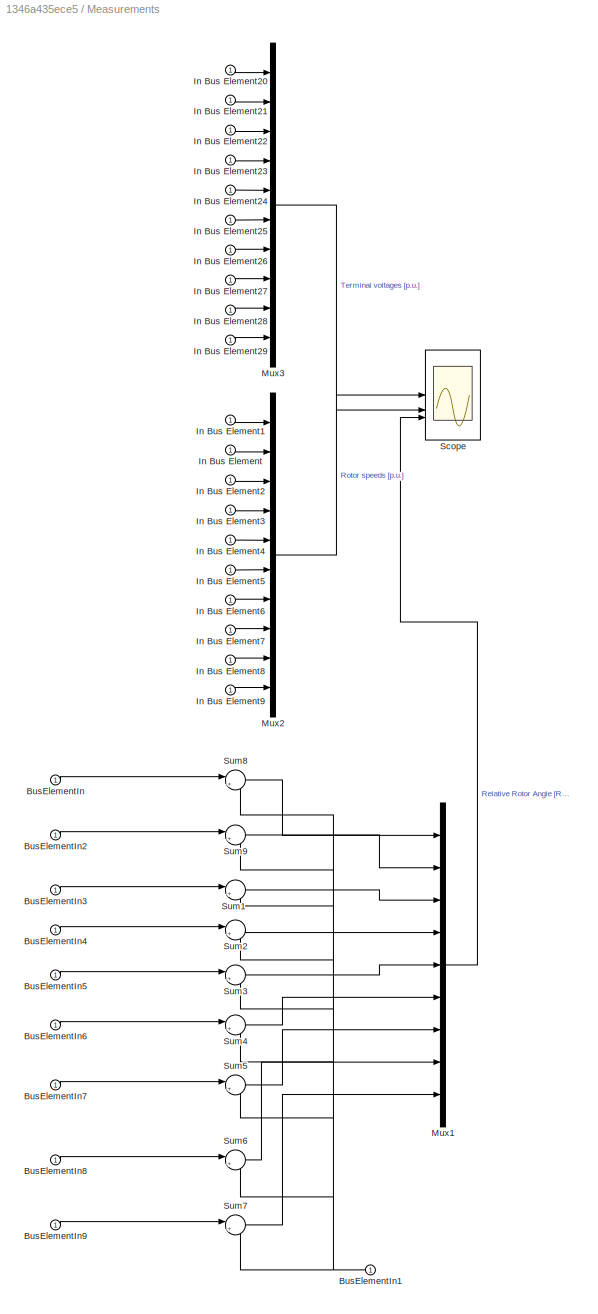
BLOCK [SubSystem] Measurements
BLOCK [Inport] Measurements/BusElementIn
BLOCK [Inport] Measurements/BusElementIn1
BLOCK [Inport] Measurements/BusElementIn2
BLOCK [Inport] Measurements/BusElementIn3
BLOCK [Inport] Measurements/BusElementIn4
BLOCK [Inport] Measurements/BusElementIn5
BLOCK [Inport] Measurements/BusElementIn6
BLOCK [Inport] Measurements/BusElementIn7
BLOCK [Inport] Measurements/BusElementIn8
BLOCK [Inport] Measurements/BusElementIn9
BLOCK [Inport] Measurements/In Bus Element
BLOCK [Inport] Measurements/In Bus Element1
BLOCK [Inport] Measurements/In Bus Element2
BLOCK [Inport] Measurements/In Bus Element20
BLOCK [Inport] Measurements/In Bus Element21
BLOCK [Inport] Measurements/In Bus Element22
BLOCK [Inport] Measurements/In Bus Element23
BLOCK [Inport] Measurements/In Bus Element24
BLOCK [Inport] Measurements/In Bus Element25
BLOCK [Inport] Measurements/In Bus Element26
BLOCK [Inport] Measurements/In Bus Element27
BLOCK [Inport] Measurements/In Bus Element28
BLOCK [Inport] Measurements/In Bus Element29
BLOCK [Inport] Measurements/In Bus Element3
BLOCK [Inport] Measurements/In Bus Element4
BLOCK [Inport] Measurements/In Bus Element5
BLOCK [Inport] Measurements/In Bus Element6
BLOCK [Inport] Measurements/In Bus Element7
BLOCK [Inport] Measurements/In Bus Element8
BLOCK [Inport] Measurements/In Bus Element9
BLOCK [Mux] Measurements/Mux1
  DisplayOption = bar
  Inputs = 9
BLOCK [Mux] Measurements/Mux2
  DisplayOption = bar
  Inputs = 10
BLOCK [Mux] Measurements/Mux3
  DisplayOption = bar
  Inputs = 10
BLOCK [Scope] Measurements/Scope
  Floating = off
  NumInputPorts = 3
  ScopeSpecificationString = Simulink.scopes.TimeScopeBlockCfg('CurrentConfiguration', extmgr.ConfigurationSet(extmgr.Configuration('Core','General UI',true),extmgr.Configuration('Core','Source UI',true),extmgr.Configuration('Sources','WiredSimulink',true,'DataLoggingVariableName','ScopeData1'),extmgr.Configuration('Visuals','Time Domain',true,'SerializedDisplays',{struct('MinYLimReal','0.0269','MaxYLimReal','1.25595','YLabel...<+4301ch>
BLOCK [Sum] Measurements/Sum1
  Inputs = |+-
BLOCK [Sum] Measurements/Sum2
  Inputs = |+-
BLOCK [Sum] Measurements/Sum3
  Inputs = |+-
BLOCK [Sum] Measurements/Sum4
  Inputs = |+-
BLOCK [Sum] Measurements/Sum5
  Inputs = |+-
BLOCK [Sum] Measurements/Sum6
  Inputs = |+-
BLOCK [Sum] Measurements/Sum7
  Inputs = |+-
BLOCK [Sum] Measurements/Sum8
  Inputs = |+-
BLOCK [Sum] Measurements/Sum9
  Inputs = |+-
ANNOTATION (root): IEEE 39-Bus System
LINE Generators/Bus Creator1:1 -> Generators/mGens:1
LINE Generators/From1:1 -> Generators/Bus Creator1:2
LINE Generators/From2:1 -> Generators/Bus Creator1:3
LINE Generators/From3:1 -> Generators/Bus Creator1:4
LINE Generators/From4:1 -> Generators/Bus Creator1:5
LINE Generators/From5:1 -> Generators/Bus Creator1:6
LINE Generators/From6:1 -> Generators/Bus Creator1:7
LINE Generators/From7:1 -> Generators/Bus Creator1:8
LINE Generators/From8:1 -> Generators/Bus Creator1:9
LINE Generators/From9:1 -> Generators/Bus Creator1:10
LINE Generators/From:1 -> Generators/Bus Creator1:1
NET Generators/Gen10@Bus30/AVR and Exciter/Constant:1 -> Generators/Gen10@Bus30/AVR and Exciter/SM AC1C:4, Generators/Gen10@Bus30/AVR and Exciter/SM AC1C:5, Generators/Gen10@Bus30/AVR and Exciter/SM AC1C:6, Generators/Gen10@Bus30/AVR and Exciter/SM AC1C:7, Generators/Gen10@Bus30/AVR and Exciter/SM AC1C:8, Generators/Gen10@Bus30/AVR and Exciter/SM AC1C:9
LINE Generators/Gen10@Bus30/AVR and Exciter/Gain:1 -> Generators/Gen10@Bus30/AVR and Exciter/SM AC1C:2
LINE Generators/Gen10@Bus30/AVR and Exciter/PS-Simulink Converter1:1 -> Generators/Gen10@Bus30/AVR and Exciter/Unit Delay:1
LINE Generators/Gen10@Bus30/AVR and Exciter/PS-Simulink Converter2:1 -> Generators/Gen10@Bus30/AVR and Exciter/Unit Delay2:1
LINE Generators/Gen10@Bus30/AVR and Exciter/PS-Simulink Converter:1 -> Generators/Gen10@Bus30/AVR and Exciter/Unit Delay1:1
LINE Generators/Gen10@Bus30/AVR and Exciter/SM AC1C:1 -> Generators/Gen10@Bus30/AVR and Exciter/Simulink-PS Converter:1
LINE Generators/Gen10@Bus30/AVR and Exciter/SM PSS1A:1 -> Generators/Gen10@Bus30/AVR and Exciter/Gain:1
LINE Generators/Gen10@Bus30/AVR and Exciter/Unit Delay1:1 -> Generators/Gen10@Bus30/AVR and Exciter/SM AC1C:3
LINE Generators/Gen10@Bus30/AVR and Exciter/Unit Delay2:1 -> Generators/Gen10@Bus30/AVR and Exciter/SM PSS1A:1
LINE Generators/Gen10@Bus30/AVR and Exciter/Unit Delay:1 -> Generators/Gen10@Bus30/AVR and Exciter/SM AC1C:10
LINE Generators/Gen10@Bus30/AVR and Exciter/Vref:1 -> Generators/Gen10@Bus30/AVR and Exciter/SM AC1C:1
LINE Generators/Gen10@Bus30/Bus Creator:1 -> Generators/Gen10@Bus30/mGen10:1
LINE Generators/Gen10@Bus30/Governor and Prime Mover/Governor and Prime Mover /Governor/1//Tg:1 -> Generators/Gen10@Bus30/Governor and Prime Mover/Governor and Prime Mover /Governor/Integrator (Discrete or Continuous):1
LINE Generators/Gen10@Bus30/Governor and Prime Mover/Governor and Prime Mover /Governor/1//droop:1 -> Generators/Gen10@Bus30/Governor and Prime Mover/Governor and Prime Mover /Governor/Delta load setpoint:2
LINE Generators/Gen10@Bus30/Governor and Prime Mover/Governor and Prime Mover /Governor/Constant1:1 -> Generators/Gen10@Bus30/Governor and Prime Mover/Governor and Prime Mover /Governor/Integrator (Discrete or Continuous):2
LINE Generators/Gen10@Bus30/Governor and Prime Mover/Governor and Prime Mover /Governor/Constant:1 -> Generators/Gen10@Bus30/Governor and Prime Mover/Governor and Prime Mover /Governor/Integrator (Discrete or Continuous):3
LINE Generators/Gen10@Bus30/Governor and Prime Mover/Governor and Prime Mover /Governor/Delta load setpoint:1 -> Generators/Gen10@Bus30/Governor and Prime Mover/Governor and Prime Mover /Governor/Subtract:1
LINE Generators/Gen10@Bus30/Governor and Prime Mover/Governor and Prime Mover /Governor/Delta speed:1 -> Generators/Gen10@Bus30/Governor and Prime Mover/Governor and Prime Mover /Governor/1//droop:1
NET Generators/Gen10@Bus30/Governor and Prime Mover/Governor and Prime Mover /Governor/Integrator (Discrete or Continuous):1 -> Generators/Gen10@Bus30/Governor and Prime Mover/Governor and Prime Mover /Governor/Subtract:2, Generators/Gen10@Bus30/Governor and Prime Mover/Governor and Prime Mover /Governor/delta_y:1
LINE Generators/Gen10@Bus30/Governor and Prime Mover/Governor and Prime Mover /Governor/Pref:1 -> Generators/Gen10@Bus30/Governor and Prime Mover/Governor and Prime Mover /Governor/Delta load setpoint:1
LINE Generators/Gen10@Bus30/Governor and Prime Mover/Governor and Prime Mover /Governor/Subtract:1 -> Generators/Gen10@Bus30/Governor and Prime Mover/Governor and Prime Mover /Governor/1//Tg:1
LINE Generators/Gen10@Bus30/Governor and Prime Mover/Governor and Prime Mover /Governor/w:1 -> Generators/Gen10@Bus30/Governor and Prime Mover/Governor and Prime Mover /Governor/Delta speed:2
LINE Generators/Gen10@Bus30/Governor and Prime Mover/Governor and Prime Mover /Governor/wref:1 -> Generators/Gen10@Bus30/Governor and Prime Mover/Governor and Prime Mover /Governor/Delta speed:1
LINE Generators/Gen10@Bus30/Governor and Prime Mover/Governor and Prime Mover /Governor:1 -> Generators/Gen10@Bus30/Governor and Prime Mover/Governor and Prime Mover /Non-reheat turbine:1
LINE Generators/Gen10@Bus30/Governor and Prime Mover/Governor and Prime Mover /Non-reheat turbine/1//Tch:1 -> Generators/Gen10@Bus30/Governor and Prime Mover/Governor and Prime Mover /Non-reheat turbine/Integrator (Discrete or Continuous):1
LINE Generators/Gen10@Bus30/Governor and Prime Mover/Governor and Prime Mover /Non-reheat turbine/Constant1:1 -> Generators/Gen10@Bus30/Governor and Prime Mover/Governor and Prime Mover /Non-reheat turbine/Integrator (Discrete or Continuous):2
LINE Generators/Gen10@Bus30/Governor and Prime Mover/Governor and Prime Mover /Non-reheat turbine/Constant:1 -> Generators/Gen10@Bus30/Governor and Prime Mover/Governor and Prime Mover /Non-reheat turbine/Integrator (Discrete or Continuous):3
NET Generators/Gen10@Bus30/Governor and Prime Mover/Governor and Prime Mover /Non-reheat turbine/Integrator (Discrete or Continuous):1 -> Generators/Gen10@Bus30/Governor and Prime Mover/Governor and Prime Mover /Non-reheat turbine/Sum:2, Generators/Gen10@Bus30/Governor and Prime Mover/Governor and Prime Mover /Non-reheat turbine/torque:1
LINE Generators/Gen10@Bus30/Governor and Prime Mover/Governor and Prime Mover /Non-reheat turbine/Sum:1 -> Generators/Gen10@Bus30/Governor and Prime Mover/Governor and Prime Mover /Non-reheat turbine/1//Tch:1
LINE Generators/Gen10@Bus30/Governor and Prime Mover/Governor and Prime Mover /Non-reheat turbine/delta_y:1 -> Generators/Gen10@Bus30/Governor and Prime Mover/Governor and Prime Mover /Non-reheat turbine/Sum:1
LINE Generators/Gen10@Bus30/Governor and Prime Mover/Governor and Prime Mover /Non-reheat turbine:1 -> Generators/Gen10@Bus30/Governor and Prime Mover/Governor and Prime Mover /Tm:1
LINE Generators/Gen10@Bus30/Governor and Prime Mover/Governor and Prime Mover /Pref:1 -> Generators/Gen10@Bus30/Governor and Prime Mover/Governor and Prime Mover /Governor:2
LINE Generators/Gen10@Bus30/Governor and Prime Mover/Governor and Prime Mover /w:1 -> Generators/Gen10@Bus30/Governor and Prime Mover/Governor and Prime Mover /Governor:3
LINE Generators/Gen10@Bus30/Governor and Prime Mover/Governor and Prime Mover /wref:1 -> Generators/Gen10@Bus30/Governor and Prime Mover/Governor and Prime Mover /Governor:1
LINE Generators/Gen10@Bus30/Governor and Prime Mover/Governor and Prime Mover :1 -> Generators/Gen10@Bus30/Governor and Prime Mover/Simulink-PS Converter:1
LINE Generators/Gen10@Bus30/Governor and Prime Mover/PS-Simulink Converter:1 -> Generators/Gen10@Bus30/Governor and Prime Mover/Unit Delay:1
LINE Generators/Gen10@Bus30/Governor and Prime Mover/Pref:1 -> Generators/Gen10@Bus30/Governor and Prime Mover/Governor and Prime Mover :2
LINE Generators/Gen10@Bus30/Governor and Prime Mover/Unit Delay:1 -> Generators/Gen10@Bus30/Governor and Prime Mover/Governor and Prime Mover :3
LINE Generators/Gen10@Bus30/Governor and Prime Mover/wref:1 -> Generators/Gen10@Bus30/Governor and Prime Mover/Governor and Prime Mover :1
LINE Generators/Gen10@Bus30/PS-Simulink Converter11:1 -> Generators/Gen10@Bus30/Bus Creator:1
LINE Generators/Gen10@Bus30/PS-Simulink Converter12:1 -> Generators/Gen10@Bus30/Bus Creator:2
LINE Generators/Gen10@Bus30/PS-Simulink Converter1:1 -> Generators/Gen10@Bus30/Bus Creator:3
LINE Generators/Gen10@Bus30:1 -> Generators/Goto:1
NET Generators/Gen1@Bus39/AVR and Exciter/Constant:1 -> Generators/Gen1@Bus39/AVR and Exciter/SM AC1C:4, Generators/Gen1@Bus39/AVR and Exciter/SM AC1C:5, Generators/Gen1@Bus39/AVR and Exciter/SM AC1C:6, Generators/Gen1@Bus39/AVR and Exciter/SM AC1C:7, Generators/Gen1@Bus39/AVR and Exciter/SM AC1C:8, Generators/Gen1@Bus39/AVR and Exciter/SM AC1C:9
LINE Generators/Gen1@Bus39/AVR and Exciter/Gain:1 -> Generators/Gen1@Bus39/AVR and Exciter/SM AC1C:2
LINE Generators/Gen1@Bus39/AVR and Exciter/PS-Simulink Converter1:1 -> Generators/Gen1@Bus39/AVR and Exciter/Unit Delay:1
LINE Generators/Gen1@Bus39/AVR and Exciter/PS-Simulink Converter2:1 -> Generators/Gen1@Bus39/AVR and Exciter/Unit Delay2:1
LINE Generators/Gen1@Bus39/AVR and Exciter/PS-Simulink Converter:1 -> Generators/Gen1@Bus39/AVR and Exciter/Unit Delay1:1
LINE Generators/Gen1@Bus39/AVR and Exciter/SM AC1C:1 -> Generators/Gen1@Bus39/AVR and Exciter/Simulink-PS Converter:1
LINE Generators/Gen1@Bus39/AVR and Exciter/SM PSS1A:1 -> Generators/Gen1@Bus39/AVR and Exciter/Gain:1
LINE Generators/Gen1@Bus39/AVR and Exciter/Unit Delay1:1 -> Generators/Gen1@Bus39/AVR and Exciter/SM AC1C:3
LINE Generators/Gen1@Bus39/AVR and Exciter/Unit Delay2:1 -> Generators/Gen1@Bus39/AVR and Exciter/SM PSS1A:1
LINE Generators/Gen1@Bus39/AVR and Exciter/Unit Delay:1 -> Generators/Gen1@Bus39/AVR and Exciter/SM AC1C:10
LINE Generators/Gen1@Bus39/AVR and Exciter/Vref:1 -> Generators/Gen1@Bus39/AVR and Exciter/SM AC1C:1
LINE Generators/Gen1@Bus39/Bus Creator:1 -> Generators/Gen1@Bus39/mGen1:1
LINE Generators/Gen1@Bus39/Governor and Prime Mover/Governor and Prime Mover /Governor/1//Tg:1 -> Generators/Gen1@Bus39/Governor and Prime Mover/Governor and Prime Mover /Governor/Integrator (Discrete or Continuous):1
LINE Generators/Gen1@Bus39/Governor and Prime Mover/Governor and Prime Mover /Governor/1//droop:1 -> Generators/Gen1@Bus39/Governor and Prime Mover/Governor and Prime Mover /Governor/Delta load setpoint:2
LINE Generators/Gen1@Bus39/Governor and Prime Mover/Governor and Prime Mover /Governor/Constant1:1 -> Generators/Gen1@Bus39/Governor and Prime Mover/Governor and Prime Mover /Governor/Integrator (Discrete or Continuous):2
LINE Generators/Gen1@Bus39/Governor and Prime Mover/Governor and Prime Mover /Governor/Constant:1 -> Generators/Gen1@Bus39/Governor and Prime Mover/Governor and Prime Mover /Governor/Integrator (Discrete or Continuous):3
LINE Generators/Gen1@Bus39/Governor and Prime Mover/Governor and Prime Mover /Governor/Delta load setpoint:1 -> Generators/Gen1@Bus39/Governor and Prime Mover/Governor and Prime Mover /Governor/Subtract:1
LINE Generators/Gen1@Bus39/Governor and Prime Mover/Governor and Prime Mover /Governor/Delta speed:1 -> Generators/Gen1@Bus39/Governor and Prime Mover/Governor and Prime Mover /Governor/1//droop:1
NET Generators/Gen1@Bus39/Governor and Prime Mover/Governor and Prime Mover /Governor/Integrator (Discrete or Continuous):1 -> Generators/Gen1@Bus39/Governor and Prime Mover/Governor and Prime Mover /Governor/Subtract:2, Generators/Gen1@Bus39/Governor and Prime Mover/Governor and Prime Mover /Governor/delta_y:1
LINE Generators/Gen1@Bus39/Governor and Prime Mover/Governor and Prime Mover /Governor/Pref:1 -> Generators/Gen1@Bus39/Governor and Prime Mover/Governor and Prime Mover /Governor/Delta load setpoint:1
LINE Generators/Gen1@Bus39/Governor and Prime Mover/Governor and Prime Mover /Governor/Subtract:1 -> Generators/Gen1@Bus39/Governor and Prime Mover/Governor and Prime Mover /Governor/1//Tg:1
LINE Generators/Gen1@Bus39/Governor and Prime Mover/Governor and Prime Mover /Governor/w:1 -> Generators/Gen1@Bus39/Governor and Prime Mover/Governor and Prime Mover /Governor/Delta speed:2
LINE Generators/Gen1@Bus39/Governor and Prime Mover/Governor and Prime Mover /Governor/wref:1 -> Generators/Gen1@Bus39/Governor and Prime Mover/Governor and Prime Mover /Governor/Delta speed:1
LINE Generators/Gen1@Bus39/Governor and Prime Mover/Governor and Prime Mover /Governor:1 -> Generators/Gen1@Bus39/Governor and Prime Mover/Governor and Prime Mover /Non-reheat turbine:1
LINE Generators/Gen1@Bus39/Governor and Prime Mover/Governor and Prime Mover /Non-reheat turbine/1//Tch:1 -> Generators/Gen1@Bus39/Governor and Prime Mover/Governor and Prime Mover /Non-reheat turbine/Integrator (Discrete or Continuous):1
LINE Generators/Gen1@Bus39/Governor and Prime Mover/Governor and Prime Mover /Non-reheat turbine/Constant1:1 -> Generators/Gen1@Bus39/Governor and Prime Mover/Governor and Prime Mover /Non-reheat turbine/Integrator (Discrete or Continuous):2
LINE Generators/Gen1@Bus39/Governor and Prime Mover/Governor and Prime Mover /Non-reheat turbine/Constant:1 -> Generators/Gen1@Bus39/Governor and Prime Mover/Governor and Prime Mover /Non-reheat turbine/Integrator (Discrete or Continuous):3
NET Generators/Gen1@Bus39/Governor and Prime Mover/Governor and Prime Mover /Non-reheat turbine/Integrator (Discrete or Continuous):1 -> Generators/Gen1@Bus39/Governor and Prime Mover/Governor and Prime Mover /Non-reheat turbine/Sum:2, Generators/Gen1@Bus39/Governor and Prime Mover/Governor and Prime Mover /Non-reheat turbine/torque:1
LINE Generators/Gen1@Bus39/Governor and Prime Mover/Governor and Prime Mover /Non-reheat turbine/Sum:1 -> Generators/Gen1@Bus39/Governor and Prime Mover/Governor and Prime Mover /Non-reheat turbine/1//Tch:1
LINE Generators/Gen1@Bus39/Governor and Prime Mover/Governor and Prime Mover /Non-reheat turbine/delta_y:1 -> Generators/Gen1@Bus39/Governor and Prime Mover/Governor and Prime Mover /Non-reheat turbine/Sum:1
LINE Generators/Gen1@Bus39/Governor and Prime Mover/Governor and Prime Mover /Non-reheat turbine:1 -> Generators/Gen1@Bus39/Governor and Prime Mover/Governor and Prime Mover /Tm:1
LINE Generators/Gen1@Bus39/Governor and Prime Mover/Governor and Prime Mover /Pref:1 -> Generators/Gen1@Bus39/Governor and Prime Mover/Governor and Prime Mover /Governor:2
LINE Generators/Gen1@Bus39/Governor and Prime Mover/Governor and Prime Mover /w:1 -> Generators/Gen1@Bus39/Governor and Prime Mover/Governor and Prime Mover /Governor:3
LINE Generators/Gen1@Bus39/Governor and Prime Mover/Governor and Prime Mover /wref:1 -> Generators/Gen1@Bus39/Governor and Prime Mover/Governor and Prime Mover /Governor:1
LINE Generators/Gen1@Bus39/Governor and Prime Mover/Governor and Prime Mover :1 -> Generators/Gen1@Bus39/Governor and Prime Mover/Simulink-PS Converter:1
LINE Generators/Gen1@Bus39/Governor and Prime Mover/PS-Simulink Converter:1 -> Generators/Gen1@Bus39/Governor and Prime Mover/Unit Delay:1
LINE Generators/Gen1@Bus39/Governor and Prime Mover/Pref:1 -> Generators/Gen1@Bus39/Governor and Prime Mover/Governor and Prime Mover :2
LINE Generators/Gen1@Bus39/Governor and Prime Mover/Unit Delay:1 -> Generators/Gen1@Bus39/Governor and Prime Mover/Governor and Prime Mover :3
LINE Generators/Gen1@Bus39/Governor and Prime Mover/wref:1 -> Generators/Gen1@Bus39/Governor and Prime Mover/Governor and Prime Mover :1
LINE Generators/Gen1@Bus39/PS-Simulink Converter11:1 -> Generators/Gen1@Bus39/Bus Creator:1
LINE Generators/Gen1@Bus39/PS-Simulink Converter12:1 -> Generators/Gen1@Bus39/Bus Creator:2
LINE Generators/Gen1@Bus39/PS-Simulink Converter1:1 -> Generators/Gen1@Bus39/Bus Creator:3
LINE Generators/Gen1@Bus39:1 -> Generators/Goto19:1
NET Generators/Gen2@Bus31/AVR and Exciter/Constant:1 -> Generators/Gen2@Bus31/AVR and Exciter/SM AC1C:4, Generators/Gen2@Bus31/AVR and Exciter/SM AC1C:5, Generators/Gen2@Bus31/AVR and Exciter/SM AC1C:6, Generators/Gen2@Bus31/AVR and Exciter/SM AC1C:7, Generators/Gen2@Bus31/AVR and Exciter/SM AC1C:8, Generators/Gen2@Bus31/AVR and Exciter/SM AC1C:9
LINE Generators/Gen2@Bus31/AVR and Exciter/Gain:1 -> Generators/Gen2@Bus31/AVR and Exciter/SM AC1C:2
LINE Generators/Gen2@Bus31/AVR and Exciter/PS-Simulink Converter1:1 -> Generators/Gen2@Bus31/AVR and Exciter/Unit Delay:1
LINE Generators/Gen2@Bus31/AVR and Exciter/PS-Simulink Converter2:1 -> Generators/Gen2@Bus31/AVR and Exciter/Unit Delay2:1
LINE Generators/Gen2@Bus31/AVR and Exciter/PS-Simulink Converter:1 -> Generators/Gen2@Bus31/AVR and Exciter/Unit Delay1:1
LINE Generators/Gen2@Bus31/AVR and Exciter/SM AC1C:1 -> Generators/Gen2@Bus31/AVR and Exciter/Simulink-PS Converter:1
LINE Generators/Gen2@Bus31/AVR and Exciter/SM PSS1A:1 -> Generators/Gen2@Bus31/AVR and Exciter/Gain:1
LINE Generators/Gen2@Bus31/AVR and Exciter/Unit Delay1:1 -> Generators/Gen2@Bus31/AVR and Exciter/SM AC1C:3
LINE Generators/Gen2@Bus31/AVR and Exciter/Unit Delay2:1 -> Generators/Gen2@Bus31/AVR and Exciter/SM PSS1A:1
LINE Generators/Gen2@Bus31/AVR and Exciter/Unit Delay:1 -> Generators/Gen2@Bus31/AVR and Exciter/SM AC1C:10
LINE Generators/Gen2@Bus31/AVR and Exciter/Vref:1 -> Generators/Gen2@Bus31/AVR and Exciter/SM AC1C:1
LINE Generators/Gen2@Bus31/Bus Creator:1 -> Generators/Gen2@Bus31/mGen2:1
LINE Generators/Gen2@Bus31/Governor and Prime Mover/Governor and Prime Mover /Governor/1//Tg:1 -> Generators/Gen2@Bus31/Governor and Prime Mover/Governor and Prime Mover /Governor/Integrator (Discrete or Continuous):1
LINE Generators/Gen2@Bus31/Governor and Prime Mover/Governor and Prime Mover /Governor/1//droop:1 -> Generators/Gen2@Bus31/Governor and Prime Mover/Governor and Prime Mover /Governor/Delta load setpoint:2
LINE Generators/Gen2@Bus31/Governor and Prime Mover/Governor and Prime Mover /Governor/Constant1:1 -> Generators/Gen2@Bus31/Governor and Prime Mover/Governor and Prime Mover /Governor/Integrator (Discrete or Continuous):2
LINE Generators/Gen2@Bus31/Governor and Prime Mover/Governor and Prime Mover /Governor/Constant:1 -> Generators/Gen2@Bus31/Governor and Prime Mover/Governor and Prime Mover /Governor/Integrator (Discrete or Continuous):3
LINE Generators/Gen2@Bus31/Governor and Prime Mover/Governor and Prime Mover /Governor/Delta load setpoint:1 -> Generators/Gen2@Bus31/Governor and Prime Mover/Governor and Prime Mover /Governor/Subtract:1
LINE Generators/Gen2@Bus31/Governor and Prime Mover/Governor and Prime Mover /Governor/Delta speed:1 -> Generators/Gen2@Bus31/Governor and Prime Mover/Governor and Prime Mover /Governor/1//droop:1
NET Generators/Gen2@Bus31/Governor and Prime Mover/Governor and Prime Mover /Governor/Integrator (Discrete or Continuous):1 -> Generators/Gen2@Bus31/Governor and Prime Mover/Governor and Prime Mover /Governor/Subtract:2, Generators/Gen2@Bus31/Governor and Prime Mover/Governor and Prime Mover /Governor/delta_y:1
LINE Generators/Gen2@Bus31/Governor and Prime Mover/Governor and Prime Mover /Governor/Pref:1 -> Generators/Gen2@Bus31/Governor and Prime Mover/Governor and Prime Mover /Governor/Delta load setpoint:1
LINE Generators/Gen2@Bus31/Governor and Prime Mover/Governor and Prime Mover /Governor/Subtract:1 -> Generators/Gen2@Bus31/Governor and Prime Mover/Governor and Prime Mover /Governor/1//Tg:1
LINE Generators/Gen2@Bus31/Governor and Prime Mover/Governor and Prime Mover /Governor/w:1 -> Generators/Gen2@Bus31/Governor and Prime Mover/Governor and Prime Mover /Governor/Delta speed:2
LINE Generators/Gen2@Bus31/Governor and Prime Mover/Governor and Prime Mover /Governor/wref:1 -> Generators/Gen2@Bus31/Governor and Prime Mover/Governor and Prime Mover /Governor/Delta speed:1
LINE Generators/Gen2@Bus31/Governor and Prime Mover/Governor and Prime Mover /Governor:1 -> Generators/Gen2@Bus31/Governor and Prime Mover/Governor and Prime Mover /Non-reheat turbine:1
LINE Generators/Gen2@Bus31/Governor and Prime Mover/Governor and Prime Mover /Non-reheat turbine/1//Tch:1 -> Generators/Gen2@Bus31/Governor and Prime Mover/Governor and Prime Mover /Non-reheat turbine/Integrator (Discrete or Continuous):1
LINE Generators/Gen2@Bus31/Governor and Prime Mover/Governor and Prime Mover /Non-reheat turbine/Constant1:1 -> Generators/Gen2@Bus31/Governor and Prime Mover/Governor and Prime Mover /Non-reheat turbine/Integrator (Discrete or Continuous):2
LINE Generators/Gen2@Bus31/Governor and Prime Mover/Governor and Prime Mover /Non-reheat turbine/Constant:1 -> Generators/Gen2@Bus31/Governor and Prime Mover/Governor and Prime Mover /Non-reheat turbine/Integrator (Discrete or Continuous):3
NET Generators/Gen2@Bus31/Governor and Prime Mover/Governor and Prime Mover /Non-reheat turbine/Integrator (Discrete or Continuous):1 -> Generators/Gen2@Bus31/Governor and Prime Mover/Governor and Prime Mover /Non-reheat turbine/Sum:2, Generators/Gen2@Bus31/Governor and Prime Mover/Governor and Prime Mover /Non-reheat turbine/torque:1
LINE Generators/Gen2@Bus31/Governor and Prime Mover/Governor and Prime Mover /Non-reheat turbine/Sum:1 -> Generators/Gen2@Bus31/Governor and Prime Mover/Governor and Prime Mover /Non-reheat turbine/1//Tch:1
LINE Generators/Gen2@Bus31/Governor and Prime Mover/Governor and Prime Mover /Non-reheat turbine/delta_y:1 -> Generators/Gen2@Bus31/Governor and Prime Mover/Governor and Prime Mover /Non-reheat turbine/Sum:1
LINE Generators/Gen2@Bus31/Governor and Prime Mover/Governor and Prime Mover /Non-reheat turbine:1 -> Generators/Gen2@Bus31/Governor and Prime Mover/Governor and Prime Mover /Tm:1
LINE Generators/Gen2@Bus31/Governor and Prime Mover/Governor and Prime Mover /Pref:1 -> Generators/Gen2@Bus31/Governor and Prime Mover/Governor and Prime Mover /Governor:2
LINE Generators/Gen2@Bus31/Governor and Prime Mover/Governor and Prime Mover /w:1 -> Generators/Gen2@Bus31/Governor and Prime Mover/Governor and Prime Mover /Governor:3
LINE Generators/Gen2@Bus31/Governor and Prime Mover/Governor and Prime Mover /wref:1 -> Generators/Gen2@Bus31/Governor and Prime Mover/Governor and Prime Mover /Governor:1
LINE Generators/Gen2@Bus31/Governor and Prime Mover/Governor and Prime Mover :1 -> Generators/Gen2@Bus31/Governor and Prime Mover/Simulink-PS Converter:1
LINE Generators/Gen2@Bus31/Governor and Prime Mover/PS-Simulink Converter:1 -> Generators/Gen2@Bus31/Governor and Prime Mover/Unit Delay:1
LINE Generators/Gen2@Bus31/Governor and Prime Mover/Pref:1 -> Generators/Gen2@Bus31/Governor and Prime Mover/Governor and Prime Mover :2
LINE Generators/Gen2@Bus31/Governor and Prime Mover/Unit Delay:1 -> Generators/Gen2@Bus31/Governor and Prime Mover/Governor and Prime Mover :3
LINE Generators/Gen2@Bus31/Governor and Prime Mover/wref:1 -> Generators/Gen2@Bus31/Governor and Prime Mover/Governor and Prime Mover :1
LINE Generators/Gen2@Bus31/PS-Simulink Converter11:1 -> Generators/Gen2@Bus31/Bus Creator:1
LINE Generators/Gen2@Bus31/PS-Simulink Converter12:1 -> Generators/Gen2@Bus31/Bus Creator:2
LINE Generators/Gen2@Bus31/PS-Simulink Converter1:1 -> Generators/Gen2@Bus31/Bus Creator:3
LINE Generators/Gen2@Bus31:1 -> Generators/Goto11:1
NET Generators/Gen3@Bus32/AVR and Exciter/Constant:1 -> Generators/Gen3@Bus32/AVR and Exciter/SM AC1C:4, Generators/Gen3@Bus32/AVR and Exciter/SM AC1C:5, Generators/Gen3@Bus32/AVR and Exciter/SM AC1C:6, Generators/Gen3@Bus32/AVR and Exciter/SM AC1C:7, Generators/Gen3@Bus32/AVR and Exciter/SM AC1C:8, Generators/Gen3@Bus32/AVR and Exciter/SM AC1C:9
LINE Generators/Gen3@Bus32/AVR and Exciter/Gain:1 -> Generators/Gen3@Bus32/AVR and Exciter/SM AC1C:2
LINE Generators/Gen3@Bus32/AVR and Exciter/PS-Simulink Converter1:1 -> Generators/Gen3@Bus32/AVR and Exciter/Unit Delay:1
LINE Generators/Gen3@Bus32/AVR and Exciter/PS-Simulink Converter2:1 -> Generators/Gen3@Bus32/AVR and Exciter/Unit Delay2:1
LINE Generators/Gen3@Bus32/AVR and Exciter/PS-Simulink Converter:1 -> Generators/Gen3@Bus32/AVR and Exciter/Unit Delay1:1
LINE Generators/Gen3@Bus32/AVR and Exciter/SM AC1C:1 -> Generators/Gen3@Bus32/AVR and Exciter/Simulink-PS Converter:1
LINE Generators/Gen3@Bus32/AVR and Exciter/SM PSS1A:1 -> Generators/Gen3@Bus32/AVR and Exciter/Gain:1
LINE Generators/Gen3@Bus32/AVR and Exciter/Unit Delay1:1 -> Generators/Gen3@Bus32/AVR and Exciter/SM AC1C:3
LINE Generators/Gen3@Bus32/AVR and Exciter/Unit Delay2:1 -> Generators/Gen3@Bus32/AVR and Exciter/SM PSS1A:1
LINE Generators/Gen3@Bus32/AVR and Exciter/Unit Delay:1 -> Generators/Gen3@Bus32/AVR and Exciter/SM AC1C:10
LINE Generators/Gen3@Bus32/AVR and Exciter/Vref:1 -> Generators/Gen3@Bus32/AVR and Exciter/SM AC1C:1
LINE Generators/Gen3@Bus32/Bus Creator:1 -> Generators/Gen3@Bus32/mGen3:1
LINE Generators/Gen3@Bus32/Governor and Prime Mover/Governor and Prime Mover /Governor/1//Tg:1 -> Generators/Gen3@Bus32/Governor and Prime Mover/Governor and Prime Mover /Governor/Integrator (Discrete or Continuous):1
LINE Generators/Gen3@Bus32/Governor and Prime Mover/Governor and Prime Mover /Governor/1//droop:1 -> Generators/Gen3@Bus32/Governor and Prime Mover/Governor and Prime Mover /Governor/Delta load setpoint:2
LINE Generators/Gen3@Bus32/Governor and Prime Mover/Governor and Prime Mover /Governor/Constant1:1 -> Generators/Gen3@Bus32/Governor and Prime Mover/Governor and Prime Mover /Governor/Integrator (Discrete or Continuous):2
LINE Generators/Gen3@Bus32/Governor and Prime Mover/Governor and Prime Mover /Governor/Constant:1 -> Generators/Gen3@Bus32/Governor and Prime Mover/Governor and Prime Mover /Governor/Integrator (Discrete or Continuous):3
LINE Generators/Gen3@Bus32/Governor and Prime Mover/Governor and Prime Mover /Governor/Delta load setpoint:1 -> Generators/Gen3@Bus32/Governor and Prime Mover/Governor and Prime Mover /Governor/Subtract:1
LINE Generators/Gen3@Bus32/Governor and Prime Mover/Governor and Prime Mover /Governor/Delta speed:1 -> Generators/Gen3@Bus32/Governor and Prime Mover/Governor and Prime Mover /Governor/1//droop:1
NET Generators/Gen3@Bus32/Governor and Prime Mover/Governor and Prime Mover /Governor/Integrator (Discrete or Continuous):1 -> Generators/Gen3@Bus32/Governor and Prime Mover/Governor and Prime Mover /Governor/Subtract:2, Generators/Gen3@Bus32/Governor and Prime Mover/Governor and Prime Mover /Governor/delta_y:1
LINE Generators/Gen3@Bus32/Governor and Prime Mover/Governor and Prime Mover /Governor/Pref:1 -> Generators/Gen3@Bus32/Governor and Prime Mover/Governor and Prime Mover /Governor/Delta load setpoint:1
LINE Generators/Gen3@Bus32/Governor and Prime Mover/Governor and Prime Mover /Governor/Subtract:1 -> Generators/Gen3@Bus32/Governor and Prime Mover/Governor and Prime Mover /Governor/1//Tg:1
LINE Generators/Gen3@Bus32/Governor and Prime Mover/Governor and Prime Mover /Governor/w:1 -> Generators/Gen3@Bus32/Governor and Prime Mover/Governor and Prime Mover /Governor/Delta speed:2
LINE Generators/Gen3@Bus32/Governor and Prime Mover/Governor and Prime Mover /Governor/wref:1 -> Generators/Gen3@Bus32/Governor and Prime Mover/Governor and Prime Mover /Governor/Delta speed:1
LINE Generators/Gen3@Bus32/Governor and Prime Mover/Governor and Prime Mover /Governor:1 -> Generators/Gen3@Bus32/Governor and Prime Mover/Governor and Prime Mover /Non-reheat turbine:1
LINE Generators/Gen3@Bus32/Governor and Prime Mover/Governor and Prime Mover /Non-reheat turbine/1//Tch:1 -> Generators/Gen3@Bus32/Governor and Prime Mover/Governor and Prime Mover /Non-reheat turbine/Integrator (Discrete or Continuous):1
LINE Generators/Gen3@Bus32/Governor and Prime Mover/Governor and Prime Mover /Non-reheat turbine/Constant1:1 -> Generators/Gen3@Bus32/Governor and Prime Mover/Governor and Prime Mover /Non-reheat turbine/Integrator (Discrete or Continuous):2
LINE Generators/Gen3@Bus32/Governor and Prime Mover/Governor and Prime Mover /Non-reheat turbine/Constant:1 -> Generators/Gen3@Bus32/Governor and Prime Mover/Governor and Prime Mover /Non-reheat turbine/Integrator (Discrete or Continuous):3
NET Generators/Gen3@Bus32/Governor and Prime Mover/Governor and Prime Mover /Non-reheat turbine/Integrator (Discrete or Continuous):1 -> Generators/Gen3@Bus32/Governor and Prime Mover/Governor and Prime Mover /Non-reheat turbine/Sum:2, Generators/Gen3@Bus32/Governor and Prime Mover/Governor and Prime Mover /Non-reheat turbine/torque:1
LINE Generators/Gen3@Bus32/Governor and Prime Mover/Governor and Prime Mover /Non-reheat turbine/Sum:1 -> Generators/Gen3@Bus32/Governor and Prime Mover/Governor and Prime Mover /Non-reheat turbine/1//Tch:1
LINE Generators/Gen3@Bus32/Governor and Prime Mover/Governor and Prime Mover /Non-reheat turbine/delta_y:1 -> Generators/Gen3@Bus32/Governor and Prime Mover/Governor and Prime Mover /Non-reheat turbine/Sum:1
LINE Generators/Gen3@Bus32/Governor and Prime Mover/Governor and Prime Mover /Non-reheat turbine:1 -> Generators/Gen3@Bus32/Governor and Prime Mover/Governor and Prime Mover /Tm:1
LINE Generators/Gen3@Bus32/Governor and Prime Mover/Governor and Prime Mover /Pref:1 -> Generators/Gen3@Bus32/Governor and Prime Mover/Governor and Prime Mover /Governor:2
LINE Generators/Gen3@Bus32/Governor and Prime Mover/Governor and Prime Mover /w:1 -> Generators/Gen3@Bus32/Governor and Prime Mover/Governor and Prime Mover /Governor:3
LINE Generators/Gen3@Bus32/Governor and Prime Mover/Governor and Prime Mover /wref:1 -> Generators/Gen3@Bus32/Governor and Prime Mover/Governor and Prime Mover /Governor:1
LINE Generators/Gen3@Bus32/Governor and Prime Mover/Governor and Prime Mover :1 -> Generators/Gen3@Bus32/Governor and Prime Mover/Simulink-PS Converter:1
LINE Generators/Gen3@Bus32/Governor and Prime Mover/PS-Simulink Converter:1 -> Generators/Gen3@Bus32/Governor and Prime Mover/Unit Delay:1
LINE Generators/Gen3@Bus32/Governor and Prime Mover/Pref:1 -> Generators/Gen3@Bus32/Governor and Prime Mover/Governor and Prime Mover :2
LINE Generators/Gen3@Bus32/Governor and Prime Mover/Unit Delay:1 -> Generators/Gen3@Bus32/Governor and Prime Mover/Governor and Prime Mover :3
LINE Generators/Gen3@Bus32/Governor and Prime Mover/wref:1 -> Generators/Gen3@Bus32/Governor and Prime Mover/Governor and Prime Mover :1
LINE Generators/Gen3@Bus32/PS-Simulink Converter11:1 -> Generators/Gen3@Bus32/Bus Creator:1
LINE Generators/Gen3@Bus32/PS-Simulink Converter12:1 -> Generators/Gen3@Bus32/Bus Creator:2
LINE Generators/Gen3@Bus32/PS-Simulink Converter1:1 -> Generators/Gen3@Bus32/Bus Creator:3
LINE Generators/Gen3@Bus32:1 -> Generators/Goto12:1
NET Generators/Gen4@Bus33/AVR and Exciter/Constant:1 -> Generators/Gen4@Bus33/AVR and Exciter/SM AC1C:4, Generators/Gen4@Bus33/AVR and Exciter/SM AC1C:5, Generators/Gen4@Bus33/AVR and Exciter/SM AC1C:6, Generators/Gen4@Bus33/AVR and Exciter/SM AC1C:7, Generators/Gen4@Bus33/AVR and Exciter/SM AC1C:8, Generators/Gen4@Bus33/AVR and Exciter/SM AC1C:9
LINE Generators/Gen4@Bus33/AVR and Exciter/Gain:1 -> Generators/Gen4@Bus33/AVR and Exciter/SM AC1C:2
LINE Generators/Gen4@Bus33/AVR and Exciter/PS-Simulink Converter1:1 -> Generators/Gen4@Bus33/AVR and Exciter/Unit Delay:1
LINE Generators/Gen4@Bus33/AVR and Exciter/PS-Simulink Converter2:1 -> Generators/Gen4@Bus33/AVR and Exciter/Unit Delay2:1
LINE Generators/Gen4@Bus33/AVR and Exciter/PS-Simulink Converter:1 -> Generators/Gen4@Bus33/AVR and Exciter/Unit Delay1:1
LINE Generators/Gen4@Bus33/AVR and Exciter/SM AC1C:1 -> Generators/Gen4@Bus33/AVR and Exciter/Simulink-PS Converter:1
LINE Generators/Gen4@Bus33/AVR and Exciter/SM PSS1A:1 -> Generators/Gen4@Bus33/AVR and Exciter/Gain:1
LINE Generators/Gen4@Bus33/AVR and Exciter/Unit Delay1:1 -> Generators/Gen4@Bus33/AVR and Exciter/SM AC1C:3
LINE Generators/Gen4@Bus33/AVR and Exciter/Unit Delay2:1 -> Generators/Gen4@Bus33/AVR and Exciter/SM PSS1A:1
LINE Generators/Gen4@Bus33/AVR and Exciter/Unit Delay:1 -> Generators/Gen4@Bus33/AVR and Exciter/SM AC1C:10
LINE Generators/Gen4@Bus33/AVR and Exciter/Vref:1 -> Generators/Gen4@Bus33/AVR and Exciter/SM AC1C:1
LINE Generators/Gen4@Bus33/Bus Creator:1 -> Generators/Gen4@Bus33/mGen4:1
LINE Generators/Gen4@Bus33/Governor and Prime Mover/Governor and Prime Mover /Governor/1//Tg:1 -> Generators/Gen4@Bus33/Governor and Prime Mover/Governor and Prime Mover /Governor/Integrator (Discrete or Continuous):1
LINE Generators/Gen4@Bus33/Governor and Prime Mover/Governor and Prime Mover /Governor/1//droop:1 -> Generators/Gen4@Bus33/Governor and Prime Mover/Governor and Prime Mover /Governor/Delta load setpoint:2
LINE Generators/Gen4@Bus33/Governor and Prime Mover/Governor and Prime Mover /Governor/Constant1:1 -> Generators/Gen4@Bus33/Governor and Prime Mover/Governor and Prime Mover /Governor/Integrator (Discrete or Continuous):2
LINE Generators/Gen4@Bus33/Governor and Prime Mover/Governor and Prime Mover /Governor/Constant:1 -> Generators/Gen4@Bus33/Governor and Prime Mover/Governor and Prime Mover /Governor/Integrator (Discrete or Continuous):3
LINE Generators/Gen4@Bus33/Governor and Prime Mover/Governor and Prime Mover /Governor/Delta load setpoint:1 -> Generators/Gen4@Bus33/Governor and Prime Mover/Governor and Prime Mover /Governor/Subtract:1
LINE Generators/Gen4@Bus33/Governor and Prime Mover/Governor and Prime Mover /Governor/Delta speed:1 -> Generators/Gen4@Bus33/Governor and Prime Mover/Governor and Prime Mover /Governor/1//droop:1
NET Generators/Gen4@Bus33/Governor and Prime Mover/Governor and Prime Mover /Governor/Integrator (Discrete or Continuous):1 -> Generators/Gen4@Bus33/Governor and Prime Mover/Governor and Prime Mover /Governor/Subtract:2, Generators/Gen4@Bus33/Governor and Prime Mover/Governor and Prime Mover /Governor/delta_y:1
LINE Generators/Gen4@Bus33/Governor and Prime Mover/Governor and Prime Mover /Governor/Pref:1 -> Generators/Gen4@Bus33/Governor and Prime Mover/Governor and Prime Mover /Governor/Delta load setpoint:1
LINE Generators/Gen4@Bus33/Governor and Prime Mover/Governor and Prime Mover /Governor/Subtract:1 -> Generators/Gen4@Bus33/Governor and Prime Mover/Governor and Prime Mover /Governor/1//Tg:1
LINE Generators/Gen4@Bus33/Governor and Prime Mover/Governor and Prime Mover /Governor/w:1 -> Generators/Gen4@Bus33/Governor and Prime Mover/Governor and Prime Mover /Governor/Delta speed:2
LINE Generators/Gen4@Bus33/Governor and Prime Mover/Governor and Prime Mover /Governor/wref:1 -> Generators/Gen4@Bus33/Governor and Prime Mover/Governor and Prime Mover /Governor/Delta speed:1
LINE Generators/Gen4@Bus33/Governor and Prime Mover/Governor and Prime Mover /Governor:1 -> Generators/Gen4@Bus33/Governor and Prime Mover/Governor and Prime Mover /Non-reheat turbine:1
LINE Generators/Gen4@Bus33/Governor and Prime Mover/Governor and Prime Mover /Non-reheat turbine/1//Tch:1 -> Generators/Gen4@Bus33/Governor and Prime Mover/Governor and Prime Mover /Non-reheat turbine/Integrator (Discrete or Continuous):1
LINE Generators/Gen4@Bus33/Governor and Prime Mover/Governor and Prime Mover /Non-reheat turbine/Constant1:1 -> Generators/Gen4@Bus33/Governor and Prime Mover/Governor and Prime Mover /Non-reheat turbine/Integrator (Discrete or Continuous):2
LINE Generators/Gen4@Bus33/Governor and Prime Mover/Governor and Prime Mover /Non-reheat turbine/Constant:1 -> Generators/Gen4@Bus33/Governor and Prime Mover/Governor and Prime Mover /Non-reheat turbine/Integrator (Discrete or Continuous):3
NET Generators/Gen4@Bus33/Governor and Prime Mover/Governor and Prime Mover /Non-reheat turbine/Integrator (Discrete or Continuous):1 -> Generators/Gen4@Bus33/Governor and Prime Mover/Governor and Prime Mover /Non-reheat turbine/Sum:2, Generators/Gen4@Bus33/Governor and Prime Mover/Governor and Prime Mover /Non-reheat turbine/torque:1
LINE Generators/Gen4@Bus33/Governor and Prime Mover/Governor and Prime Mover /Non-reheat turbine/Sum:1 -> Generators/Gen4@Bus33/Governor and Prime Mover/Governor and Prime Mover /Non-reheat turbine/1//Tch:1
LINE Generators/Gen4@Bus33/Governor and Prime Mover/Governor and Prime Mover /Non-reheat turbine/delta_y:1 -> Generators/Gen4@Bus33/Governor and Prime Mover/Governor and Prime Mover /Non-reheat turbine/Sum:1
LINE Generators/Gen4@Bus33/Governor and Prime Mover/Governor and Prime Mover /Non-reheat turbine:1 -> Generators/Gen4@Bus33/Governor and Prime Mover/Governor and Prime Mover /Tm:1
LINE Generators/Gen4@Bus33/Governor and Prime Mover/Governor and Prime Mover /Pref:1 -> Generators/Gen4@Bus33/Governor and Prime Mover/Governor and Prime Mover /Governor:2
LINE Generators/Gen4@Bus33/Governor and Prime Mover/Governor and Prime Mover /w:1 -> Generators/Gen4@Bus33/Governor and Prime Mover/Governor and Prime Mover /Governor:3
LINE Generators/Gen4@Bus33/Governor and Prime Mover/Governor and Prime Mover /wref:1 -> Generators/Gen4@Bus33/Governor and Prime Mover/Governor and Prime Mover /Governor:1
LINE Generators/Gen4@Bus33/Governor and Prime Mover/Governor and Prime Mover :1 -> Generators/Gen4@Bus33/Governor and Prime Mover/Simulink-PS Converter:1
LINE Generators/Gen4@Bus33/Governor and Prime Mover/PS-Simulink Converter:1 -> Generators/Gen4@Bus33/Governor and Prime Mover/Unit Delay:1
LINE Generators/Gen4@Bus33/Governor and Prime Mover/Pref:1 -> Generators/Gen4@Bus33/Governor and Prime Mover/Governor and Prime Mover :2
LINE Generators/Gen4@Bus33/Governor and Prime Mover/Unit Delay:1 -> Generators/Gen4@Bus33/Governor and Prime Mover/Governor and Prime Mover :3
LINE Generators/Gen4@Bus33/Governor and Prime Mover/wref:1 -> Generators/Gen4@Bus33/Governor and Prime Mover/Governor and Prime Mover :1
LINE Generators/Gen4@Bus33/PS-Simulink Converter11:1 -> Generators/Gen4@Bus33/Bus Creator:1
LINE Generators/Gen4@Bus33/PS-Simulink Converter12:1 -> Generators/Gen4@Bus33/Bus Creator:2
LINE Generators/Gen4@Bus33/PS-Simulink Converter1:1 -> Generators/Gen4@Bus33/Bus Creator:3
LINE Generators/Gen4@Bus33:1 -> Generators/Goto13:1
NET Generators/Gen5@Bus34/AVR and Exciter/Constant:1 -> Generators/Gen5@Bus34/AVR and Exciter/SM AC1C:4, Generators/Gen5@Bus34/AVR and Exciter/SM AC1C:5, Generators/Gen5@Bus34/AVR and Exciter/SM AC1C:6, Generators/Gen5@Bus34/AVR and Exciter/SM AC1C:7, Generators/Gen5@Bus34/AVR and Exciter/SM AC1C:8, Generators/Gen5@Bus34/AVR and Exciter/SM AC1C:9
LINE Generators/Gen5@Bus34/AVR and Exciter/Gain:1 -> Generators/Gen5@Bus34/AVR and Exciter/SM AC1C:2
LINE Generators/Gen5@Bus34/AVR and Exciter/PS-Simulink Converter1:1 -> Generators/Gen5@Bus34/AVR and Exciter/Unit Delay:1
LINE Generators/Gen5@Bus34/AVR and Exciter/PS-Simulink Converter2:1 -> Generators/Gen5@Bus34/AVR and Exciter/Unit Delay2:1
LINE Generators/Gen5@Bus34/AVR and Exciter/PS-Simulink Converter:1 -> Generators/Gen5@Bus34/AVR and Exciter/Unit Delay1:1
LINE Generators/Gen5@Bus34/AVR and Exciter/SM AC1C:1 -> Generators/Gen5@Bus34/AVR and Exciter/Simulink-PS Converter:1
LINE Generators/Gen5@Bus34/AVR and Exciter/SM PSS1A:1 -> Generators/Gen5@Bus34/AVR and Exciter/Gain:1
LINE Generators/Gen5@Bus34/AVR and Exciter/Unit Delay1:1 -> Generators/Gen5@Bus34/AVR and Exciter/SM AC1C:3
LINE Generators/Gen5@Bus34/AVR and Exciter/Unit Delay2:1 -> Generators/Gen5@Bus34/AVR and Exciter/SM PSS1A:1
LINE Generators/Gen5@Bus34/AVR and Exciter/Unit Delay:1 -> Generators/Gen5@Bus34/AVR and Exciter/SM AC1C:10
LINE Generators/Gen5@Bus34/AVR and Exciter/Vref:1 -> Generators/Gen5@Bus34/AVR and Exciter/SM AC1C:1
LINE Generators/Gen5@Bus34/Bus Creator:1 -> Generators/Gen5@Bus34/mGen5:1
LINE Generators/Gen5@Bus34/Governor and Prime Mover/Governor and Prime Mover /Governor/1//Tg:1 -> Generators/Gen5@Bus34/Governor and Prime Mover/Governor and Prime Mover /Governor/Integrator (Discrete or Continuous):1
LINE Generators/Gen5@Bus34/Governor and Prime Mover/Governor and Prime Mover /Governor/1//droop:1 -> Generators/Gen5@Bus34/Governor and Prime Mover/Governor and Prime Mover /Governor/Delta load setpoint:2
LINE Generators/Gen5@Bus34/Governor and Prime Mover/Governor and Prime Mover /Governor/Constant1:1 -> Generators/Gen5@Bus34/Governor and Prime Mover/Governor and Prime Mover /Governor/Integrator (Discrete or Continuous):2
LINE Generators/Gen5@Bus34/Governor and Prime Mover/Governor and Prime Mover /Governor/Constant:1 -> Generators/Gen5@Bus34/Governor and Prime Mover/Governor and Prime Mover /Governor/Integrator (Discrete or Continuous):3
LINE Generators/Gen5@Bus34/Governor and Prime Mover/Governor and Prime Mover /Governor/Delta load setpoint:1 -> Generators/Gen5@Bus34/Governor and Prime Mover/Governor and Prime Mover /Governor/Subtract:1
LINE Generators/Gen5@Bus34/Governor and Prime Mover/Governor and Prime Mover /Governor/Delta speed:1 -> Generators/Gen5@Bus34/Governor and Prime Mover/Governor and Prime Mover /Governor/1//droop:1
NET Generators/Gen5@Bus34/Governor and Prime Mover/Governor and Prime Mover /Governor/Integrator (Discrete or Continuous):1 -> Generators/Gen5@Bus34/Governor and Prime Mover/Governor and Prime Mover /Governor/Subtract:2, Generators/Gen5@Bus34/Governor and Prime Mover/Governor and Prime Mover /Governor/delta_y:1
LINE Generators/Gen5@Bus34/Governor and Prime Mover/Governor and Prime Mover /Governor/Pref:1 -> Generators/Gen5@Bus34/Governor and Prime Mover/Governor and Prime Mover /Governor/Delta load setpoint:1
LINE Generators/Gen5@Bus34/Governor and Prime Mover/Governor and Prime Mover /Governor/Subtract:1 -> Generators/Gen5@Bus34/Governor and Prime Mover/Governor and Prime Mover /Governor/1//Tg:1
LINE Generators/Gen5@Bus34/Governor and Prime Mover/Governor and Prime Mover /Governor/w:1 -> Generators/Gen5@Bus34/Governor and Prime Mover/Governor and Prime Mover /Governor/Delta speed:2
LINE Generators/Gen5@Bus34/Governor and Prime Mover/Governor and Prime Mover /Governor/wref:1 -> Generators/Gen5@Bus34/Governor and Prime Mover/Governor and Prime Mover /Governor/Delta speed:1
LINE Generators/Gen5@Bus34/Governor and Prime Mover/Governor and Prime Mover /Governor:1 -> Generators/Gen5@Bus34/Governor and Prime Mover/Governor and Prime Mover /Non-reheat turbine:1
LINE Generators/Gen5@Bus34/Governor and Prime Mover/Governor and Prime Mover /Non-reheat turbine/1//Tch:1 -> Generators/Gen5@Bus34/Governor and Prime Mover/Governor and Prime Mover /Non-reheat turbine/Integrator (Discrete or Continuous):1
LINE Generators/Gen5@Bus34/Governor and Prime Mover/Governor and Prime Mover /Non-reheat turbine/Constant1:1 -> Generators/Gen5@Bus34/Governor and Prime Mover/Governor and Prime Mover /Non-reheat turbine/Integrator (Discrete or Continuous):2
LINE Generators/Gen5@Bus34/Governor and Prime Mover/Governor and Prime Mover /Non-reheat turbine/Constant:1 -> Generators/Gen5@Bus34/Governor and Prime Mover/Governor and Prime Mover /Non-reheat turbine/Integrator (Discrete or Continuous):3
NET Generators/Gen5@Bus34/Governor and Prime Mover/Governor and Prime Mover /Non-reheat turbine/Integrator (Discrete or Continuous):1 -> Generators/Gen5@Bus34/Governor and Prime Mover/Governor and Prime Mover /Non-reheat turbine/Sum:2, Generators/Gen5@Bus34/Governor and Prime Mover/Governor and Prime Mover /Non-reheat turbine/torque:1
LINE Generators/Gen5@Bus34/Governor and Prime Mover/Governor and Prime Mover /Non-reheat turbine/Sum:1 -> Generators/Gen5@Bus34/Governor and Prime Mover/Governor and Prime Mover /Non-reheat turbine/1//Tch:1
LINE Generators/Gen5@Bus34/Governor and Prime Mover/Governor and Prime Mover /Non-reheat turbine/delta_y:1 -> Generators/Gen5@Bus34/Governor and Prime Mover/Governor and Prime Mover /Non-reheat turbine/Sum:1
LINE Generators/Gen5@Bus34/Governor and Prime Mover/Governor and Prime Mover /Non-reheat turbine:1 -> Generators/Gen5@Bus34/Governor and Prime Mover/Governor and Prime Mover /Tm:1
LINE Generators/Gen5@Bus34/Governor and Prime Mover/Governor and Prime Mover /Pref:1 -> Generators/Gen5@Bus34/Governor and Prime Mover/Governor and Prime Mover /Governor:2
LINE Generators/Gen5@Bus34/Governor and Prime Mover/Governor and Prime Mover /w:1 -> Generators/Gen5@Bus34/Governor and Prime Mover/Governor and Prime Mover /Governor:3
LINE Generators/Gen5@Bus34/Governor and Prime Mover/Governor and Prime Mover /wref:1 -> Generators/Gen5@Bus34/Governor and Prime Mover/Governor and Prime Mover /Governor:1
LINE Generators/Gen5@Bus34/Governor and Prime Mover/Governor and Prime Mover :1 -> Generators/Gen5@Bus34/Governor and Prime Mover/Simulink-PS Converter:1
LINE Generators/Gen5@Bus34/Governor and Prime Mover/PS-Simulink Converter:1 -> Generators/Gen5@Bus34/Governor and Prime Mover/Unit Delay:1
LINE Generators/Gen5@Bus34/Governor and Prime Mover/Pref:1 -> Generators/Gen5@Bus34/Governor and Prime Mover/Governor and Prime Mover :2
LINE Generators/Gen5@Bus34/Governor and Prime Mover/Unit Delay:1 -> Generators/Gen5@Bus34/Governor and Prime Mover/Governor and Prime Mover :3
LINE Generators/Gen5@Bus34/Governor and Prime Mover/wref:1 -> Generators/Gen5@Bus34/Governor and Prime Mover/Governor and Prime Mover :1
LINE Generators/Gen5@Bus34/PS-Simulink Converter11:1 -> Generators/Gen5@Bus34/Bus Creator:1
LINE Generators/Gen5@Bus34/PS-Simulink Converter12:1 -> Generators/Gen5@Bus34/Bus Creator:2
LINE Generators/Gen5@Bus34/PS-Simulink Converter1:1 -> Generators/Gen5@Bus34/Bus Creator:3
LINE Generators/Gen5@Bus34:1 -> Generators/Goto14:1
NET Generators/Gen6@Bus35/AVR and Exciter/Constant:1 -> Generators/Gen6@Bus35/AVR and Exciter/SM AC1C:4, Generators/Gen6@Bus35/AVR and Exciter/SM AC1C:5, Generators/Gen6@Bus35/AVR and Exciter/SM AC1C:6, Generators/Gen6@Bus35/AVR and Exciter/SM AC1C:7, Generators/Gen6@Bus35/AVR and Exciter/SM AC1C:8, Generators/Gen6@Bus35/AVR and Exciter/SM AC1C:9
LINE Generators/Gen6@Bus35/AVR and Exciter/Gain:1 -> Generators/Gen6@Bus35/AVR and Exciter/SM AC1C:2
LINE Generators/Gen6@Bus35/AVR and Exciter/PS-Simulink Converter1:1 -> Generators/Gen6@Bus35/AVR and Exciter/Unit Delay:1
LINE Generators/Gen6@Bus35/AVR and Exciter/PS-Simulink Converter2:1 -> Generators/Gen6@Bus35/AVR and Exciter/Unit Delay2:1
LINE Generators/Gen6@Bus35/AVR and Exciter/PS-Simulink Converter:1 -> Generators/Gen6@Bus35/AVR and Exciter/Unit Delay1:1
LINE Generators/Gen6@Bus35/AVR and Exciter/SM AC1C:1 -> Generators/Gen6@Bus35/AVR and Exciter/Simulink-PS Converter:1
LINE Generators/Gen6@Bus35/AVR and Exciter/SM PSS1A:1 -> Generators/Gen6@Bus35/AVR and Exciter/Gain:1
LINE Generators/Gen6@Bus35/AVR and Exciter/Unit Delay1:1 -> Generators/Gen6@Bus35/AVR and Exciter/SM AC1C:3
LINE Generators/Gen6@Bus35/AVR and Exciter/Unit Delay2:1 -> Generators/Gen6@Bus35/AVR and Exciter/SM PSS1A:1
LINE Generators/Gen6@Bus35/AVR and Exciter/Unit Delay:1 -> Generators/Gen6@Bus35/AVR and Exciter/SM AC1C:10
LINE Generators/Gen6@Bus35/AVR and Exciter/Vref:1 -> Generators/Gen6@Bus35/AVR and Exciter/SM AC1C:1
LINE Generators/Gen6@Bus35/Bus Creator:1 -> Generators/Gen6@Bus35/mGen6:1
LINE Generators/Gen6@Bus35/Governor and Prime Mover/Governor and Prime Mover /Governor/1//Tg:1 -> Generators/Gen6@Bus35/Governor and Prime Mover/Governor and Prime Mover /Governor/Integrator (Discrete or Continuous):1
LINE Generators/Gen6@Bus35/Governor and Prime Mover/Governor and Prime Mover /Governor/1//droop:1 -> Generators/Gen6@Bus35/Governor and Prime Mover/Governor and Prime Mover /Governor/Delta load setpoint:2
LINE Generators/Gen6@Bus35/Governor and Prime Mover/Governor and Prime Mover /Governor/Constant1:1 -> Generators/Gen6@Bus35/Governor and Prime Mover/Governor and Prime Mover /Governor/Integrator (Discrete or Continuous):2
LINE Generators/Gen6@Bus35/Governor and Prime Mover/Governor and Prime Mover /Governor/Constant:1 -> Generators/Gen6@Bus35/Governor and Prime Mover/Governor and Prime Mover /Governor/Integrator (Discrete or Continuous):3
LINE Generators/Gen6@Bus35/Governor and Prime Mover/Governor and Prime Mover /Governor/Delta load setpoint:1 -> Generators/Gen6@Bus35/Governor and Prime Mover/Governor and Prime Mover /Governor/Subtract:1
LINE Generators/Gen6@Bus35/Governor and Prime Mover/Governor and Prime Mover /Governor/Delta speed:1 -> Generators/Gen6@Bus35/Governor and Prime Mover/Governor and Prime Mover /Governor/1//droop:1
NET Generators/Gen6@Bus35/Governor and Prime Mover/Governor and Prime Mover /Governor/Integrator (Discrete or Continuous):1 -> Generators/Gen6@Bus35/Governor and Prime Mover/Governor and Prime Mover /Governor/Subtract:2, Generators/Gen6@Bus35/Governor and Prime Mover/Governor and Prime Mover /Governor/delta_y:1
LINE Generators/Gen6@Bus35/Governor and Prime Mover/Governor and Prime Mover /Governor/Pref:1 -> Generators/Gen6@Bus35/Governor and Prime Mover/Governor and Prime Mover /Governor/Delta load setpoint:1
LINE Generators/Gen6@Bus35/Governor and Prime Mover/Governor and Prime Mover /Governor/Subtract:1 -> Generators/Gen6@Bus35/Governor and Prime Mover/Governor and Prime Mover /Governor/1//Tg:1
LINE Generators/Gen6@Bus35/Governor and Prime Mover/Governor and Prime Mover /Governor/w:1 -> Generators/Gen6@Bus35/Governor and Prime Mover/Governor and Prime Mover /Governor/Delta speed:2
LINE Generators/Gen6@Bus35/Governor and Prime Mover/Governor and Prime Mover /Governor/wref:1 -> Generators/Gen6@Bus35/Governor and Prime Mover/Governor and Prime Mover /Governor/Delta speed:1
LINE Generators/Gen6@Bus35/Governor and Prime Mover/Governor and Prime Mover /Governor:1 -> Generators/Gen6@Bus35/Governor and Prime Mover/Governor and Prime Mover /Non-reheat turbine:1
LINE Generators/Gen6@Bus35/Governor and Prime Mover/Governor and Prime Mover /Non-reheat turbine/1//Tch:1 -> Generators/Gen6@Bus35/Governor and Prime Mover/Governor and Prime Mover /Non-reheat turbine/Integrator (Discrete or Continuous):1
LINE Generators/Gen6@Bus35/Governor and Prime Mover/Governor and Prime Mover /Non-reheat turbine/Constant1:1 -> Generators/Gen6@Bus35/Governor and Prime Mover/Governor and Prime Mover /Non-reheat turbine/Integrator (Discrete or Continuous):2
LINE Generators/Gen6@Bus35/Governor and Prime Mover/Governor and Prime Mover /Non-reheat turbine/Constant:1 -> Generators/Gen6@Bus35/Governor and Prime Mover/Governor and Prime Mover /Non-reheat turbine/Integrator (Discrete or Continuous):3
NET Generators/Gen6@Bus35/Governor and Prime Mover/Governor and Prime Mover /Non-reheat turbine/Integrator (Discrete or Continuous):1 -> Generators/Gen6@Bus35/Governor and Prime Mover/Governor and Prime Mover /Non-reheat turbine/Sum:2, Generators/Gen6@Bus35/Governor and Prime Mover/Governor and Prime Mover /Non-reheat turbine/torque:1
LINE Generators/Gen6@Bus35/Governor and Prime Mover/Governor and Prime Mover /Non-reheat turbine/Sum:1 -> Generators/Gen6@Bus35/Governor and Prime Mover/Governor and Prime Mover /Non-reheat turbine/1//Tch:1
LINE Generators/Gen6@Bus35/Governor and Prime Mover/Governor and Prime Mover /Non-reheat turbine/delta_y:1 -> Generators/Gen6@Bus35/Governor and Prime Mover/Governor and Prime Mover /Non-reheat turbine/Sum:1
LINE Generators/Gen6@Bus35/Governor and Prime Mover/Governor and Prime Mover /Non-reheat turbine:1 -> Generators/Gen6@Bus35/Governor and Prime Mover/Governor and Prime Mover /Tm:1
LINE Generators/Gen6@Bus35/Governor and Prime Mover/Governor and Prime Mover /Pref:1 -> Generators/Gen6@Bus35/Governor and Prime Mover/Governor and Prime Mover /Governor:2
LINE Generators/Gen6@Bus35/Governor and Prime Mover/Governor and Prime Mover /w:1 -> Generators/Gen6@Bus35/Governor and Prime Mover/Governor and Prime Mover /Governor:3
LINE Generators/Gen6@Bus35/Governor and Prime Mover/Governor and Prime Mover /wref:1 -> Generators/Gen6@Bus35/Governor and Prime Mover/Governor and Prime Mover /Governor:1
LINE Generators/Gen6@Bus35/Governor and Prime Mover/Governor and Prime Mover :1 -> Generators/Gen6@Bus35/Governor and Prime Mover/Simulink-PS Converter:1
LINE Generators/Gen6@Bus35/Governor and Prime Mover/PS-Simulink Converter:1 -> Generators/Gen6@Bus35/Governor and Prime Mover/Unit Delay:1
LINE Generators/Gen6@Bus35/Governor and Prime Mover/Pref:1 -> Generators/Gen6@Bus35/Governor and Prime Mover/Governor and Prime Mover :2
LINE Generators/Gen6@Bus35/Governor and Prime Mover/Unit Delay:1 -> Generators/Gen6@Bus35/Governor and Prime Mover/Governor and Prime Mover :3
LINE Generators/Gen6@Bus35/Governor and Prime Mover/wref:1 -> Generators/Gen6@Bus35/Governor and Prime Mover/Governor and Prime Mover :1
LINE Generators/Gen6@Bus35/PS-Simulink Converter11:1 -> Generators/Gen6@Bus35/Bus Creator:1
LINE Generators/Gen6@Bus35/PS-Simulink Converter12:1 -> Generators/Gen6@Bus35/Bus Creator:2
LINE Generators/Gen6@Bus35/PS-Simulink Converter1:1 -> Generators/Gen6@Bus35/Bus Creator:3
LINE Generators/Gen6@Bus35:1 -> Generators/Goto15:1
NET Generators/Gen7@Bus36/AVR and Exciter/Constant:1 -> Generators/Gen7@Bus36/AVR and Exciter/SM AC1C:4, Generators/Gen7@Bus36/AVR and Exciter/SM AC1C:5, Generators/Gen7@Bus36/AVR and Exciter/SM AC1C:6, Generators/Gen7@Bus36/AVR and Exciter/SM AC1C:7, Generators/Gen7@Bus36/AVR and Exciter/SM AC1C:8, Generators/Gen7@Bus36/AVR and Exciter/SM AC1C:9
LINE Generators/Gen7@Bus36/AVR and Exciter/Gain:1 -> Generators/Gen7@Bus36/AVR and Exciter/SM AC1C:2
LINE Generators/Gen7@Bus36/AVR and Exciter/PS-Simulink Converter1:1 -> Generators/Gen7@Bus36/AVR and Exciter/Unit Delay:1
LINE Generators/Gen7@Bus36/AVR and Exciter/PS-Simulink Converter2:1 -> Generators/Gen7@Bus36/AVR and Exciter/Unit Delay2:1
LINE Generators/Gen7@Bus36/AVR and Exciter/PS-Simulink Converter:1 -> Generators/Gen7@Bus36/AVR and Exciter/Unit Delay1:1
LINE Generators/Gen7@Bus36/AVR and Exciter/SM AC1C:1 -> Generators/Gen7@Bus36/AVR and Exciter/Simulink-PS Converter:1
LINE Generators/Gen7@Bus36/AVR and Exciter/SM PSS1A:1 -> Generators/Gen7@Bus36/AVR and Exciter/Gain:1
LINE Generators/Gen7@Bus36/AVR and Exciter/Unit Delay1:1 -> Generators/Gen7@Bus36/AVR and Exciter/SM AC1C:3
LINE Generators/Gen7@Bus36/AVR and Exciter/Unit Delay2:1 -> Generators/Gen7@Bus36/AVR and Exciter/SM PSS1A:1
LINE Generators/Gen7@Bus36/AVR and Exciter/Unit Delay:1 -> Generators/Gen7@Bus36/AVR and Exciter/SM AC1C:10
LINE Generators/Gen7@Bus36/AVR and Exciter/Vref:1 -> Generators/Gen7@Bus36/AVR and Exciter/SM AC1C:1
LINE Generators/Gen7@Bus36/Bus Creator:1 -> Generators/Gen7@Bus36/mGen7:1
LINE Generators/Gen7@Bus36/Governor and Prime Mover/Governor and Prime Mover /Governor/1//Tg:1 -> Generators/Gen7@Bus36/Governor and Prime Mover/Governor and Prime Mover /Governor/Integrator (Discrete or Continuous):1
LINE Generators/Gen7@Bus36/Governor and Prime Mover/Governor and Prime Mover /Governor/1//droop:1 -> Generators/Gen7@Bus36/Governor and Prime Mover/Governor and Prime Mover /Governor/Delta load setpoint:2
LINE Generators/Gen7@Bus36/Governor and Prime Mover/Governor and Prime Mover /Governor/Constant1:1 -> Generators/Gen7@Bus36/Governor and Prime Mover/Governor and Prime Mover /Governor/Integrator (Discrete or Continuous):2
LINE Generators/Gen7@Bus36/Governor and Prime Mover/Governor and Prime Mover /Governor/Constant:1 -> Generators/Gen7@Bus36/Governor and Prime Mover/Governor and Prime Mover /Governor/Integrator (Discrete or Continuous):3
LINE Generators/Gen7@Bus36/Governor and Prime Mover/Governor and Prime Mover /Governor/Delta load setpoint:1 -> Generators/Gen7@Bus36/Governor and Prime Mover/Governor and Prime Mover /Governor/Subtract:1
LINE Generators/Gen7@Bus36/Governor and Prime Mover/Governor and Prime Mover /Governor/Delta speed:1 -> Generators/Gen7@Bus36/Governor and Prime Mover/Governor and Prime Mover /Governor/1//droop:1
NET Generators/Gen7@Bus36/Governor and Prime Mover/Governor and Prime Mover /Governor/Integrator (Discrete or Continuous):1 -> Generators/Gen7@Bus36/Governor and Prime Mover/Governor and Prime Mover /Governor/Subtract:2, Generators/Gen7@Bus36/Governor and Prime Mover/Governor and Prime Mover /Governor/delta_y:1
LINE Generators/Gen7@Bus36/Governor and Prime Mover/Governor and Prime Mover /Governor/Pref:1 -> Generators/Gen7@Bus36/Governor and Prime Mover/Governor and Prime Mover /Governor/Delta load setpoint:1
LINE Generators/Gen7@Bus36/Governor and Prime Mover/Governor and Prime Mover /Governor/Subtract:1 -> Generators/Gen7@Bus36/Governor and Prime Mover/Governor and Prime Mover /Governor/1//Tg:1
LINE Generators/Gen7@Bus36/Governor and Prime Mover/Governor and Prime Mover /Governor/w:1 -> Generators/Gen7@Bus36/Governor and Prime Mover/Governor and Prime Mover /Governor/Delta speed:2
LINE Generators/Gen7@Bus36/Governor and Prime Mover/Governor and Prime Mover /Governor/wref:1 -> Generators/Gen7@Bus36/Governor and Prime Mover/Governor and Prime Mover /Governor/Delta speed:1
LINE Generators/Gen7@Bus36/Governor and Prime Mover/Governor and Prime Mover /Governor:1 -> Generators/Gen7@Bus36/Governor and Prime Mover/Governor and Prime Mover /Non-reheat turbine:1
LINE Generators/Gen7@Bus36/Governor and Prime Mover/Governor and Prime Mover /Non-reheat turbine/1//Tch:1 -> Generators/Gen7@Bus36/Governor and Prime Mover/Governor and Prime Mover /Non-reheat turbine/Integrator (Discrete or Continuous):1
LINE Generators/Gen7@Bus36/Governor and Prime Mover/Governor and Prime Mover /Non-reheat turbine/Constant1:1 -> Generators/Gen7@Bus36/Governor and Prime Mover/Governor and Prime Mover /Non-reheat turbine/Integrator (Discrete or Continuous):2
LINE Generators/Gen7@Bus36/Governor and Prime Mover/Governor and Prime Mover /Non-reheat turbine/Constant:1 -> Generators/Gen7@Bus36/Governor and Prime Mover/Governor and Prime Mover /Non-reheat turbine/Integrator (Discrete or Continuous):3
NET Generators/Gen7@Bus36/Governor and Prime Mover/Governor and Prime Mover /Non-reheat turbine/Integrator (Discrete or Continuous):1 -> Generators/Gen7@Bus36/Governor and Prime Mover/Governor and Prime Mover /Non-reheat turbine/Sum:2, Generators/Gen7@Bus36/Governor and Prime Mover/Governor and Prime Mover /Non-reheat turbine/torque:1
LINE Generators/Gen7@Bus36/Governor and Prime Mover/Governor and Prime Mover /Non-reheat turbine/Sum:1 -> Generators/Gen7@Bus36/Governor and Prime Mover/Governor and Prime Mover /Non-reheat turbine/1//Tch:1
LINE Generators/Gen7@Bus36/Governor and Prime Mover/Governor and Prime Mover /Non-reheat turbine/delta_y:1 -> Generators/Gen7@Bus36/Governor and Prime Mover/Governor and Prime Mover /Non-reheat turbine/Sum:1
LINE Generators/Gen7@Bus36/Governor and Prime Mover/Governor and Prime Mover /Non-reheat turbine:1 -> Generators/Gen7@Bus36/Governor and Prime Mover/Governor and Prime Mover /Tm:1
LINE Generators/Gen7@Bus36/Governor and Prime Mover/Governor and Prime Mover /Pref:1 -> Generators/Gen7@Bus36/Governor and Prime Mover/Governor and Prime Mover /Governor:2
LINE Generators/Gen7@Bus36/Governor and Prime Mover/Governor and Prime Mover /w:1 -> Generators/Gen7@Bus36/Governor and Prime Mover/Governor and Prime Mover /Governor:3
LINE Generators/Gen7@Bus36/Governor and Prime Mover/Governor and Prime Mover /wref:1 -> Generators/Gen7@Bus36/Governor and Prime Mover/Governor and Prime Mover /Governor:1
LINE Generators/Gen7@Bus36/Governor and Prime Mover/Governor and Prime Mover :1 -> Generators/Gen7@Bus36/Governor and Prime Mover/Simulink-PS Converter:1
LINE Generators/Gen7@Bus36/Governor and Prime Mover/PS-Simulink Converter:1 -> Generators/Gen7@Bus36/Governor and Prime Mover/Unit Delay:1
LINE Generators/Gen7@Bus36/Governor and Prime Mover/Pref:1 -> Generators/Gen7@Bus36/Governor and Prime Mover/Governor and Prime Mover :2
LINE Generators/Gen7@Bus36/Governor and Prime Mover/Unit Delay:1 -> Generators/Gen7@Bus36/Governor and Prime Mover/Governor and Prime Mover :3
LINE Generators/Gen7@Bus36/Governor and Prime Mover/wref:1 -> Generators/Gen7@Bus36/Governor and Prime Mover/Governor and Prime Mover :1
LINE Generators/Gen7@Bus36/PS-Simulink Converter11:1 -> Generators/Gen7@Bus36/Bus Creator:1
LINE Generators/Gen7@Bus36/PS-Simulink Converter12:1 -> Generators/Gen7@Bus36/Bus Creator:2
LINE Generators/Gen7@Bus36/PS-Simulink Converter1:1 -> Generators/Gen7@Bus36/Bus Creator:3
LINE Generators/Gen7@Bus36:1 -> Generators/Goto16:1
NET Generators/Gen8@Bus37/AVR and Exciter/Constant:1 -> Generators/Gen8@Bus37/AVR and Exciter/SM AC1C:4, Generators/Gen8@Bus37/AVR and Exciter/SM AC1C:5, Generators/Gen8@Bus37/AVR and Exciter/SM AC1C:6, Generators/Gen8@Bus37/AVR and Exciter/SM AC1C:7, Generators/Gen8@Bus37/AVR and Exciter/SM AC1C:8, Generators/Gen8@Bus37/AVR and Exciter/SM AC1C:9
LINE Generators/Gen8@Bus37/AVR and Exciter/Gain:1 -> Generators/Gen8@Bus37/AVR and Exciter/SM AC1C:2
LINE Generators/Gen8@Bus37/AVR and Exciter/PS-Simulink Converter1:1 -> Generators/Gen8@Bus37/AVR and Exciter/Unit Delay:1
LINE Generators/Gen8@Bus37/AVR and Exciter/PS-Simulink Converter2:1 -> Generators/Gen8@Bus37/AVR and Exciter/Unit Delay2:1
LINE Generators/Gen8@Bus37/AVR and Exciter/PS-Simulink Converter:1 -> Generators/Gen8@Bus37/AVR and Exciter/Unit Delay1:1
LINE Generators/Gen8@Bus37/AVR and Exciter/SM AC1C:1 -> Generators/Gen8@Bus37/AVR and Exciter/Simulink-PS Converter:1
LINE Generators/Gen8@Bus37/AVR and Exciter/SM PSS1A:1 -> Generators/Gen8@Bus37/AVR and Exciter/Gain:1
LINE Generators/Gen8@Bus37/AVR and Exciter/Unit Delay1:1 -> Generators/Gen8@Bus37/AVR and Exciter/SM AC1C:3
LINE Generators/Gen8@Bus37/AVR and Exciter/Unit Delay2:1 -> Generators/Gen8@Bus37/AVR and Exciter/SM PSS1A:1
LINE Generators/Gen8@Bus37/AVR and Exciter/Unit Delay:1 -> Generators/Gen8@Bus37/AVR and Exciter/SM AC1C:10
LINE Generators/Gen8@Bus37/AVR and Exciter/Vref:1 -> Generators/Gen8@Bus37/AVR and Exciter/SM AC1C:1
LINE Generators/Gen8@Bus37/Bus Creator:1 -> Generators/Gen8@Bus37/mGen8:1
LINE Generators/Gen8@Bus37/Governor and Prime Mover/Governor and Prime Mover /Governor/1//Tg:1 -> Generators/Gen8@Bus37/Governor and Prime Mover/Governor and Prime Mover /Governor/Integrator (Discrete or Continuous):1
LINE Generators/Gen8@Bus37/Governor and Prime Mover/Governor and Prime Mover /Governor/1//droop:1 -> Generators/Gen8@Bus37/Governor and Prime Mover/Governor and Prime Mover /Governor/Delta load setpoint:2
LINE Generators/Gen8@Bus37/Governor and Prime Mover/Governor and Prime Mover /Governor/Constant1:1 -> Generators/Gen8@Bus37/Governor and Prime Mover/Governor and Prime Mover /Governor/Integrator (Discrete or Continuous):2
LINE Generators/Gen8@Bus37/Governor and Prime Mover/Governor and Prime Mover /Governor/Constant:1 -> Generators/Gen8@Bus37/Governor and Prime Mover/Governor and Prime Mover /Governor/Integrator (Discrete or Continuous):3
LINE Generators/Gen8@Bus37/Governor and Prime Mover/Governor and Prime Mover /Governor/Delta load setpoint:1 -> Generators/Gen8@Bus37/Governor and Prime Mover/Governor and Prime Mover /Governor/Subtract:1
LINE Generators/Gen8@Bus37/Governor and Prime Mover/Governor and Prime Mover /Governor/Delta speed:1 -> Generators/Gen8@Bus37/Governor and Prime Mover/Governor and Prime Mover /Governor/1//droop:1
NET Generators/Gen8@Bus37/Governor and Prime Mover/Governor and Prime Mover /Governor/Integrator (Discrete or Continuous):1 -> Generators/Gen8@Bus37/Governor and Prime Mover/Governor and Prime Mover /Governor/Subtract:2, Generators/Gen8@Bus37/Governor and Prime Mover/Governor and Prime Mover /Governor/delta_y:1
LINE Generators/Gen8@Bus37/Governor and Prime Mover/Governor and Prime Mover /Governor/Pref:1 -> Generators/Gen8@Bus37/Governor and Prime Mover/Governor and Prime Mover /Governor/Delta load setpoint:1
LINE Generators/Gen8@Bus37/Governor and Prime Mover/Governor and Prime Mover /Governor/Subtract:1 -> Generators/Gen8@Bus37/Governor and Prime Mover/Governor and Prime Mover /Governor/1//Tg:1
LINE Generators/Gen8@Bus37/Governor and Prime Mover/Governor and Prime Mover /Governor/w:1 -> Generators/Gen8@Bus37/Governor and Prime Mover/Governor and Prime Mover /Governor/Delta speed:2
LINE Generators/Gen8@Bus37/Governor and Prime Mover/Governor and Prime Mover /Governor/wref:1 -> Generators/Gen8@Bus37/Governor and Prime Mover/Governor and Prime Mover /Governor/Delta speed:1
LINE Generators/Gen8@Bus37/Governor and Prime Mover/Governor and Prime Mover /Governor:1 -> Generators/Gen8@Bus37/Governor and Prime Mover/Governor and Prime Mover /Non-reheat turbine:1
LINE Generators/Gen8@Bus37/Governor and Prime Mover/Governor and Prime Mover /Non-reheat turbine/1//Tch:1 -> Generators/Gen8@Bus37/Governor and Prime Mover/Governor and Prime Mover /Non-reheat turbine/Integrator (Discrete or Continuous):1
LINE Generators/Gen8@Bus37/Governor and Prime Mover/Governor and Prime Mover /Non-reheat turbine/Constant1:1 -> Generators/Gen8@Bus37/Governor and Prime Mover/Governor and Prime Mover /Non-reheat turbine/Integrator (Discrete or Continuous):2
LINE Generators/Gen8@Bus37/Governor and Prime Mover/Governor and Prime Mover /Non-reheat turbine/Constant:1 -> Generators/Gen8@Bus37/Governor and Prime Mover/Governor and Prime Mover /Non-reheat turbine/Integrator (Discrete or Continuous):3
NET Generators/Gen8@Bus37/Governor and Prime Mover/Governor and Prime Mover /Non-reheat turbine/Integrator (Discrete or Continuous):1 -> Generators/Gen8@Bus37/Governor and Prime Mover/Governor and Prime Mover /Non-reheat turbine/Sum:2, Generators/Gen8@Bus37/Governor and Prime Mover/Governor and Prime Mover /Non-reheat turbine/torque:1
LINE Generators/Gen8@Bus37/Governor and Prime Mover/Governor and Prime Mover /Non-reheat turbine/Sum:1 -> Generators/Gen8@Bus37/Governor and Prime Mover/Governor and Prime Mover /Non-reheat turbine/1//Tch:1
LINE Generators/Gen8@Bus37/Governor and Prime Mover/Governor and Prime Mover /Non-reheat turbine/delta_y:1 -> Generators/Gen8@Bus37/Governor and Prime Mover/Governor and Prime Mover /Non-reheat turbine/Sum:1
LINE Generators/Gen8@Bus37/Governor and Prime Mover/Governor and Prime Mover /Non-reheat turbine:1 -> Generators/Gen8@Bus37/Governor and Prime Mover/Governor and Prime Mover /Tm:1
LINE Generators/Gen8@Bus37/Governor and Prime Mover/Governor and Prime Mover /Pref:1 -> Generators/Gen8@Bus37/Governor and Prime Mover/Governor and Prime Mover /Governor:2
LINE Generators/Gen8@Bus37/Governor and Prime Mover/Governor and Prime Mover /w:1 -> Generators/Gen8@Bus37/Governor and Prime Mover/Governor and Prime Mover /Governor:3
LINE Generators/Gen8@Bus37/Governor and Prime Mover/Governor and Prime Mover /wref:1 -> Generators/Gen8@Bus37/Governor and Prime Mover/Governor and Prime Mover /Governor:1
LINE Generators/Gen8@Bus37/Governor and Prime Mover/Governor and Prime Mover :1 -> Generators/Gen8@Bus37/Governor and Prime Mover/Simulink-PS Converter:1
LINE Generators/Gen8@Bus37/Governor and Prime Mover/PS-Simulink Converter:1 -> Generators/Gen8@Bus37/Governor and Prime Mover/Unit Delay:1
LINE Generators/Gen8@Bus37/Governor and Prime Mover/Pref:1 -> Generators/Gen8@Bus37/Governor and Prime Mover/Governor and Prime Mover :2
LINE Generators/Gen8@Bus37/Governor and Prime Mover/Unit Delay:1 -> Generators/Gen8@Bus37/Governor and Prime Mover/Governor and Prime Mover :3
LINE Generators/Gen8@Bus37/Governor and Prime Mover/wref:1 -> Generators/Gen8@Bus37/Governor and Prime Mover/Governor and Prime Mover :1
LINE Generators/Gen8@Bus37/PS-Simulink Converter11:1 -> Generators/Gen8@Bus37/Bus Creator:1
LINE Generators/Gen8@Bus37/PS-Simulink Converter12:1 -> Generators/Gen8@Bus37/Bus Creator:2
LINE Generators/Gen8@Bus37/PS-Simulink Converter1:1 -> Generators/Gen8@Bus37/Bus Creator:3
LINE Generators/Gen8@Bus37:1 -> Generators/Goto17:1
NET Generators/Gen9@Bus38/AVR and Exciter/Constant:1 -> Generators/Gen9@Bus38/AVR and Exciter/SM AC1C:4, Generators/Gen9@Bus38/AVR and Exciter/SM AC1C:5, Generators/Gen9@Bus38/AVR and Exciter/SM AC1C:6, Generators/Gen9@Bus38/AVR and Exciter/SM AC1C:7, Generators/Gen9@Bus38/AVR and Exciter/SM AC1C:8, Generators/Gen9@Bus38/AVR and Exciter/SM AC1C:9
LINE Generators/Gen9@Bus38/AVR and Exciter/Gain:1 -> Generators/Gen9@Bus38/AVR and Exciter/SM AC1C:2
LINE Generators/Gen9@Bus38/AVR and Exciter/PS-Simulink Converter1:1 -> Generators/Gen9@Bus38/AVR and Exciter/Unit Delay:1
LINE Generators/Gen9@Bus38/AVR and Exciter/PS-Simulink Converter2:1 -> Generators/Gen9@Bus38/AVR and Exciter/Unit Delay2:1
LINE Generators/Gen9@Bus38/AVR and Exciter/PS-Simulink Converter:1 -> Generators/Gen9@Bus38/AVR and Exciter/Unit Delay1:1
LINE Generators/Gen9@Bus38/AVR and Exciter/SM AC1C:1 -> Generators/Gen9@Bus38/AVR and Exciter/Simulink-PS Converter:1
LINE Generators/Gen9@Bus38/AVR and Exciter/SM PSS1A:1 -> Generators/Gen9@Bus38/AVR and Exciter/Gain:1
LINE Generators/Gen9@Bus38/AVR and Exciter/Unit Delay1:1 -> Generators/Gen9@Bus38/AVR and Exciter/SM AC1C:3
LINE Generators/Gen9@Bus38/AVR and Exciter/Unit Delay2:1 -> Generators/Gen9@Bus38/AVR and Exciter/SM PSS1A:1
LINE Generators/Gen9@Bus38/AVR and Exciter/Unit Delay:1 -> Generators/Gen9@Bus38/AVR and Exciter/SM AC1C:10
LINE Generators/Gen9@Bus38/AVR and Exciter/Vref:1 -> Generators/Gen9@Bus38/AVR and Exciter/SM AC1C:1
LINE Generators/Gen9@Bus38/Bus Creator:1 -> Generators/Gen9@Bus38/mGen9:1
LINE Generators/Gen9@Bus38/Governor and Prime Mover/Governor and Prime Mover /Governor/1//Tg:1 -> Generators/Gen9@Bus38/Governor and Prime Mover/Governor and Prime Mover /Governor/Integrator (Discrete or Continuous):1
LINE Generators/Gen9@Bus38/Governor and Prime Mover/Governor and Prime Mover /Governor/1//droop:1 -> Generators/Gen9@Bus38/Governor and Prime Mover/Governor and Prime Mover /Governor/Delta load setpoint:2
LINE Generators/Gen9@Bus38/Governor and Prime Mover/Governor and Prime Mover /Governor/Constant1:1 -> Generators/Gen9@Bus38/Governor and Prime Mover/Governor and Prime Mover /Governor/Integrator (Discrete or Continuous):2
LINE Generators/Gen9@Bus38/Governor and Prime Mover/Governor and Prime Mover /Governor/Constant:1 -> Generators/Gen9@Bus38/Governor and Prime Mover/Governor and Prime Mover /Governor/Integrator (Discrete or Continuous):3
LINE Generators/Gen9@Bus38/Governor and Prime Mover/Governor and Prime Mover /Governor/Delta load setpoint:1 -> Generators/Gen9@Bus38/Governor and Prime Mover/Governor and Prime Mover /Governor/Subtract:1
LINE Generators/Gen9@Bus38/Governor and Prime Mover/Governor and Prime Mover /Governor/Delta speed:1 -> Generators/Gen9@Bus38/Governor and Prime Mover/Governor and Prime Mover /Governor/1//droop:1
NET Generators/Gen9@Bus38/Governor and Prime Mover/Governor and Prime Mover /Governor/Integrator (Discrete or Continuous):1 -> Generators/Gen9@Bus38/Governor and Prime Mover/Governor and Prime Mover /Governor/Subtract:2, Generators/Gen9@Bus38/Governor and Prime Mover/Governor and Prime Mover /Governor/delta_y:1
LINE Generators/Gen9@Bus38/Governor and Prime Mover/Governor and Prime Mover /Governor/Pref:1 -> Generators/Gen9@Bus38/Governor and Prime Mover/Governor and Prime Mover /Governor/Delta load setpoint:1
LINE Generators/Gen9@Bus38/Governor and Prime Mover/Governor and Prime Mover /Governor/Subtract:1 -> Generators/Gen9@Bus38/Governor and Prime Mover/Governor and Prime Mover /Governor/1//Tg:1
LINE Generators/Gen9@Bus38/Governor and Prime Mover/Governor and Prime Mover /Governor/w:1 -> Generators/Gen9@Bus38/Governor and Prime Mover/Governor and Prime Mover /Governor/Delta speed:2
LINE Generators/Gen9@Bus38/Governor and Prime Mover/Governor and Prime Mover /Governor/wref:1 -> Generators/Gen9@Bus38/Governor and Prime Mover/Governor and Prime Mover /Governor/Delta speed:1
LINE Generators/Gen9@Bus38/Governor and Prime Mover/Governor and Prime Mover /Governor:1 -> Generators/Gen9@Bus38/Governor and Prime Mover/Governor and Prime Mover /Non-reheat turbine:1
LINE Generators/Gen9@Bus38/Governor and Prime Mover/Governor and Prime Mover /Non-reheat turbine/1//Tch:1 -> Generators/Gen9@Bus38/Governor and Prime Mover/Governor and Prime Mover /Non-reheat turbine/Integrator (Discrete or Continuous):1
LINE Generators/Gen9@Bus38/Governor and Prime Mover/Governor and Prime Mover /Non-reheat turbine/Constant1:1 -> Generators/Gen9@Bus38/Governor and Prime Mover/Governor and Prime Mover /Non-reheat turbine/Integrator (Discrete or Continuous):2
LINE Generators/Gen9@Bus38/Governor and Prime Mover/Governor and Prime Mover /Non-reheat turbine/Constant:1 -> Generators/Gen9@Bus38/Governor and Prime Mover/Governor and Prime Mover /Non-reheat turbine/Integrator (Discrete or Continuous):3
NET Generators/Gen9@Bus38/Governor and Prime Mover/Governor and Prime Mover /Non-reheat turbine/Integrator (Discrete or Continuous):1 -> Generators/Gen9@Bus38/Governor and Prime Mover/Governor and Prime Mover /Non-reheat turbine/Sum:2, Generators/Gen9@Bus38/Governor and Prime Mover/Governor and Prime Mover /Non-reheat turbine/torque:1
LINE Generators/Gen9@Bus38/Governor and Prime Mover/Governor and Prime Mover /Non-reheat turbine/Sum:1 -> Generators/Gen9@Bus38/Governor and Prime Mover/Governor and Prime Mover /Non-reheat turbine/1//Tch:1
LINE Generators/Gen9@Bus38/Governor and Prime Mover/Governor and Prime Mover /Non-reheat turbine/delta_y:1 -> Generators/Gen9@Bus38/Governor and Prime Mover/Governor and Prime Mover /Non-reheat turbine/Sum:1
LINE Generators/Gen9@Bus38/Governor and Prime Mover/Governor and Prime Mover /Non-reheat turbine:1 -> Generators/Gen9@Bus38/Governor and Prime Mover/Governor and Prime Mover /Tm:1
LINE Generators/Gen9@Bus38/Governor and Prime Mover/Governor and Prime Mover /Pref:1 -> Generators/Gen9@Bus38/Governor and Prime Mover/Governor and Prime Mover /Governor:2
LINE Generators/Gen9@Bus38/Governor and Prime Mover/Governor and Prime Mover /w:1 -> Generators/Gen9@Bus38/Governor and Prime Mover/Governor and Prime Mover /Governor:3
LINE Generators/Gen9@Bus38/Governor and Prime Mover/Governor and Prime Mover /wref:1 -> Generators/Gen9@Bus38/Governor and Prime Mover/Governor and Prime Mover /Governor:1
LINE Generators/Gen9@Bus38/Governor and Prime Mover/Governor and Prime Mover :1 -> Generators/Gen9@Bus38/Governor and Prime Mover/Simulink-PS Converter:1
LINE Generators/Gen9@Bus38/Governor and Prime Mover/PS-Simulink Converter:1 -> Generators/Gen9@Bus38/Governor and Prime Mover/Unit Delay:1
LINE Generators/Gen9@Bus38/Governor and Prime Mover/Pref:1 -> Generators/Gen9@Bus38/Governor and Prime Mover/Governor and Prime Mover :2
LINE Generators/Gen9@Bus38/Governor and Prime Mover/Unit Delay:1 -> Generators/Gen9@Bus38/Governor and Prime Mover/Governor and Prime Mover :3
LINE Generators/Gen9@Bus38/Governor and Prime Mover/wref:1 -> Generators/Gen9@Bus38/Governor and Prime Mover/Governor and Prime Mover :1
LINE Generators/Gen9@Bus38/PS-Simulink Converter11:1 -> Generators/Gen9@Bus38/Bus Creator:1
LINE Generators/Gen9@Bus38/PS-Simulink Converter12:1 -> Generators/Gen9@Bus38/Bus Creator:2
LINE Generators/Gen9@Bus38/PS-Simulink Converter1:1 -> Generators/Gen9@Bus38/Bus Creator:3
LINE Generators/Gen9@Bus38:1 -> Generators/Goto18:1
LINE Generators:1 -> Measurements:1
LINE Grid/Step:1 -> Grid/Simulink-PS Converter1:1
NET Measurements/BusElementIn1:1 -> Measurements/Sum1:2, Measurements/Sum2:2, Measurements/Sum3:2, Measurements/Sum4:2, Measurements/Sum5:2, Measurements/Sum6:2, Measurements/Sum7:2, Measurements/Sum8:2, Measurements/Sum9:2
LINE Measurements/BusElementIn2:1 -> Measurements/Sum9:1
LINE Measurements/BusElementIn3:1 -> Measurements/Sum1:1
LINE Measurements/BusElementIn4:1 -> Measurements/Sum2:1
LINE Measurements/BusElementIn5:1 -> Measurements/Sum3:1
LINE Measurements/BusElementIn6:1 -> Measurements/Sum4:1
LINE Measurements/BusElementIn7:1 -> Measurements/Sum5:1
LINE Measurements/BusElementIn8:1 -> Measurements/Sum6:1
LINE Measurements/BusElementIn9:1 -> Measurements/Sum7:1
LINE Measurements/BusElementIn:1 -> Measurements/Sum8:1
LINE Measurements/In Bus Element1:1 -> Measurements/Mux2:1
LINE Measurements/In Bus Element20:1 -> Measurements/Mux3:1
LINE Measurements/In Bus Element21:1 -> Measurements/Mux3:2
LINE Measurements/In Bus Element22:1 -> Measurements/Mux3:3
LINE Measurements/In Bus Element23:1 -> Measurements/Mux3:4
LINE Measurements/In Bus Element24:1 -> Measurements/Mux3:5
LINE Measurements/In Bus Element25:1 -> Measurements/Mux3:6
LINE Measurements/In Bus Element26:1 -> Measurements/Mux3:7
LINE Measurements/In Bus Element27:1 -> Measurements/Mux3:8
LINE Measurements/In Bus Element28:1 -> Measurements/Mux3:9
LINE Measurements/In Bus Element29:1 -> Measurements/Mux3:10
LINE Measurements/In Bus Element2:1 -> Measurements/Mux2:3
LINE Measurements/In Bus Element3:1 -> Measurements/Mux2:4
LINE Measurements/In Bus Element4:1 -> Measurements/Mux2:5
LINE Measurements/In Bus Element5:1 -> Measurements/Mux2:6
LINE Measurements/In Bus Element6:1 -> Measurements/Mux2:7
LINE Measurements/In Bus Element7:1 -> Measurements/Mux2:8
LINE Measurements/In Bus Element8:1 -> Measurements/Mux2:9
LINE Measurements/In Bus Element9:1 -> Measurements/Mux2:10
LINE Measurements/In Bus Element:1 -> Measurements/Mux2:2
LINE Measurements/Mux1:1 -> Measurements/Scope:3
LINE Measurements/Mux2:1 -> Measurements/Scope:2
LINE Measurements/Mux3:1 -> Measurements/Scope:1
LINE Measurements/Sum1:1 -> Measurements/Mux1:3
LINE Measurements/Sum2:1 -> Measurements/Mux1:4
LINE Measurements/Sum3:1 -> Measurements/Mux1:5
LINE Measurements/Sum4:1 -> Measurements/Mux1:6
LINE Measurements/Sum5:1 -> Measurements/Mux1:7
LINE Measurements/Sum6:1 -> Measurements/Mux1:8
LINE Measurements/Sum7:1 -> Measurements/Mux1:9
LINE Measurements/Sum8:1 -> Measurements/Mux1:1
LINE Measurements/Sum9:1 -> Measurements/Mux1:2
PLINE Generators/Gen10@Bus30/AVR and Exciter/Field Circuit10:LConn1 -- Generators/Gen10@Bus30/AVR and Exciter/Simulink-PS Converter:RConn1
PLINE Generators/Gen10@Bus30/AVR and Exciter/Field Circuit10:LConn2 -- Generators/Gen10@Bus30/AVR and Exciter/PS-Simulink Converter1:LConn1
PLINE Generators/Gen10@Bus30/AVR and Exciter/Field Circuit10:RConn1 -- Generators/Gen10@Bus30/AVR and Exciter/fd+:RConn1
PLINE Generators/Gen10@Bus30/AVR and Exciter/Field Circuit10:RConn2 -- Generators/Gen10@Bus30/AVR and Exciter/fd-:RConn1
PLINE Generators/Gen10@Bus30/AVR and Exciter/PS-Simulink Converter2:LConn1 -- Generators/Gen10@Bus30/AVR and Exciter/Rotor velocity measurement:RConn1
PLINE Generators/Gen10@Bus30/AVR and Exciter/PS-Simulink Converter:LConn1 -- Generators/Gen10@Bus30/AVR and Exciter/Terminal voltage measurement:RConn1
PNET net1: Generators/Gen10@Bus30/AVR and Exciter/Rotor velocity measurement:LConn1 -- Generators/Gen10@Bus30/AVR and Exciter/Terminal voltage measurement:LConn1 -- Generators/Gen10@Bus30/AVR and Exciter/pu:RConn1
PNET net2: Generators/Gen10@Bus30/AVR and Exciter:LConn1 -- Generators/Gen10@Bus30/Gen10:RConn1 -- Generators/Gen10@Bus30/Governor and Prime Mover:LConn1 -- Generators/Gen10@Bus30/Rotor electrical angle:LConn1 -- Generators/Gen10@Bus30/Rotor velocity:LConn1 -- Generators/Gen10@Bus30/Terminal voltage:LConn1
PLINE Generators/Gen10@Bus30/AVR and Exciter:RConn1 -- Generators/Gen10@Bus30/Gen10:LConn1
PLINE Generators/Gen10@Bus30/AVR and Exciter:RConn2 -- Generators/Gen10@Bus30/Gen10:LConn2
PLINE Generators/Gen10@Bus30/ConnGen10:RConn1 -- Generators/Gen10@Bus30/Gen10:RConn2
PLINE Generators/Gen10@Bus30/Gen10:LConn3 -- Generators/Gen10@Bus30/Governor and Prime Mover:RConn1
PLINE Generators/Gen10@Bus30/Gen10:LConn4 -- Generators/Gen10@Bus30/Governor and Prime Mover:RConn2
PLINE Generators/Gen10@Bus30/Gen10:RConn3 -- Generators/Gen10@Bus30/Gnd10:LConn1
PLINE Generators/Gen10@Bus30/Governor and Prime Mover/C:RConn1 -- Generators/Gen10@Bus30/Governor and Prime Mover/Mechanical Power10:RConn2
PLINE Generators/Gen10@Bus30/Governor and Prime Mover/Mechanical Power10:LConn1 -- Generators/Gen10@Bus30/Governor and Prime Mover/Simulink-PS Converter:RConn1
PLINE Generators/Gen10@Bus30/Governor and Prime Mover/Mechanical Power10:RConn1 -- Generators/Gen10@Bus30/Governor and Prime Mover/R:RConn1
PLINE Generators/Gen10@Bus30/Governor and Prime Mover/PS-Simulink Converter:LConn1 -- Generators/Gen10@Bus30/Governor and Prime Mover/Rotor velocity measurement:RConn1
PLINE Generators/Gen10@Bus30/Governor and Prime Mover/Rotor velocity measurement:LConn1 -- Generators/Gen10@Bus30/Governor and Prime Mover/pu:RConn1
PLINE Generators/Gen10@Bus30/PS-Simulink Converter11:LConn1 -- Generators/Gen10@Bus30/Rotor velocity:RConn1
PLINE Generators/Gen10@Bus30/PS-Simulink Converter12:LConn1 -- Generators/Gen10@Bus30/Terminal voltage:RConn1
PLINE Generators/Gen10@Bus30/PS-Simulink Converter1:LConn1 -- Generators/Gen10@Bus30/Rotor electrical angle:RConn1
PLINE Generators/Gen10@Bus30:RConn1 -- Generators/GenGroupBus:LConn1
PLINE Generators/Gen1@Bus39/AVR and Exciter/Field Circuit1:LConn1 -- Generators/Gen1@Bus39/AVR and Exciter/Simulink-PS Converter:RConn1
PLINE Generators/Gen1@Bus39/AVR and Exciter/Field Circuit1:LConn2 -- Generators/Gen1@Bus39/AVR and Exciter/PS-Simulink Converter1:LConn1
PLINE Generators/Gen1@Bus39/AVR and Exciter/Field Circuit1:RConn1 -- Generators/Gen1@Bus39/AVR and Exciter/fd+:RConn1
PLINE Generators/Gen1@Bus39/AVR and Exciter/Field Circuit1:RConn2 -- Generators/Gen1@Bus39/AVR and Exciter/fd-:RConn1
PLINE Generators/Gen1@Bus39/AVR and Exciter/PS-Simulink Converter2:LConn1 -- Generators/Gen1@Bus39/AVR and Exciter/Rotor velocity measurement:RConn1
PLINE Generators/Gen1@Bus39/AVR and Exciter/PS-Simulink Converter:LConn1 -- Generators/Gen1@Bus39/AVR and Exciter/Terminal voltage measurement:RConn1
PNET net3: Generators/Gen1@Bus39/AVR and Exciter/Rotor velocity measurement:LConn1 -- Generators/Gen1@Bus39/AVR and Exciter/Terminal voltage measurement:LConn1 -- Generators/Gen1@Bus39/AVR and Exciter/pu:RConn1
PNET net4: Generators/Gen1@Bus39/AVR and Exciter:LConn1 -- Generators/Gen1@Bus39/Gen1:RConn1 -- Generators/Gen1@Bus39/Governor and Prime Mover:LConn1 -- Generators/Gen1@Bus39/Rotor electrical angle:LConn1 -- Generators/Gen1@Bus39/Rotor velocity:LConn1 -- Generators/Gen1@Bus39/Terminal voltage:LConn1
PLINE Generators/Gen1@Bus39/AVR and Exciter:RConn1 -- Generators/Gen1@Bus39/Gen1:LConn1
PLINE Generators/Gen1@Bus39/AVR and Exciter:RConn2 -- Generators/Gen1@Bus39/Gen1:LConn2
PLINE Generators/Gen1@Bus39/ConnGen1:RConn1 -- Generators/Gen1@Bus39/Gen1:RConn2
PLINE Generators/Gen1@Bus39/Gen1:LConn3 -- Generators/Gen1@Bus39/Governor and Prime Mover:RConn1
PLINE Generators/Gen1@Bus39/Gen1:LConn4 -- Generators/Gen1@Bus39/Governor and Prime Mover:RConn2
PLINE Generators/Gen1@Bus39/Gen1:RConn3 -- Generators/Gen1@Bus39/Gnd1:LConn1
PLINE Generators/Gen1@Bus39/Governor and Prime Mover/C:RConn1 -- Generators/Gen1@Bus39/Governor and Prime Mover/Mechanical Power1:RConn2
PLINE Generators/Gen1@Bus39/Governor and Prime Mover/Mechanical Power1:LConn1 -- Generators/Gen1@Bus39/Governor and Prime Mover/Simulink-PS Converter:RConn1
PLINE Generators/Gen1@Bus39/Governor and Prime Mover/Mechanical Power1:RConn1 -- Generators/Gen1@Bus39/Governor and Prime Mover/R:RConn1
PLINE Generators/Gen1@Bus39/Governor and Prime Mover/PS-Simulink Converter:LConn1 -- Generators/Gen1@Bus39/Governor and Prime Mover/Rotor velocity measurement:RConn1
PLINE Generators/Gen1@Bus39/Governor and Prime Mover/Rotor velocity measurement:LConn1 -- Generators/Gen1@Bus39/Governor and Prime Mover/pu:RConn1
PLINE Generators/Gen1@Bus39/PS-Simulink Converter11:LConn1 -- Generators/Gen1@Bus39/Rotor velocity:RConn1
PLINE Generators/Gen1@Bus39/PS-Simulink Converter12:LConn1 -- Generators/Gen1@Bus39/Terminal voltage:RConn1
PLINE Generators/Gen1@Bus39/PS-Simulink Converter1:LConn1 -- Generators/Gen1@Bus39/Rotor electrical angle:RConn1
PLINE Generators/Gen1@Bus39:RConn1 -- Generators/GenGroupBus:LConn10
PLINE Generators/Gen2@Bus31/AVR and Exciter/Field Circuit2:LConn1 -- Generators/Gen2@Bus31/AVR and Exciter/Simulink-PS Converter:RConn1
PLINE Generators/Gen2@Bus31/AVR and Exciter/Field Circuit2:LConn2 -- Generators/Gen2@Bus31/AVR and Exciter/PS-Simulink Converter1:LConn1
PLINE Generators/Gen2@Bus31/AVR and Exciter/Field Circuit2:RConn1 -- Generators/Gen2@Bus31/AVR and Exciter/fd+:RConn1
PLINE Generators/Gen2@Bus31/AVR and Exciter/Field Circuit2:RConn2 -- Generators/Gen2@Bus31/AVR and Exciter/fd-:RConn1
PLINE Generators/Gen2@Bus31/AVR and Exciter/PS-Simulink Converter2:LConn1 -- Generators/Gen2@Bus31/AVR and Exciter/Rotor velocity measurement:RConn1
PLINE Generators/Gen2@Bus31/AVR and Exciter/PS-Simulink Converter:LConn1 -- Generators/Gen2@Bus31/AVR and Exciter/Terminal voltage measurement:RConn1
PNET net5: Generators/Gen2@Bus31/AVR and Exciter/Rotor velocity measurement:LConn1 -- Generators/Gen2@Bus31/AVR and Exciter/Terminal voltage measurement:LConn1 -- Generators/Gen2@Bus31/AVR and Exciter/pu:RConn1
PNET net6: Generators/Gen2@Bus31/AVR and Exciter:LConn1 -- Generators/Gen2@Bus31/Gen2:RConn1 -- Generators/Gen2@Bus31/Governor and Prime Mover:LConn1 -- Generators/Gen2@Bus31/Rotor electrical angle:LConn1 -- Generators/Gen2@Bus31/Rotor velocity:LConn1 -- Generators/Gen2@Bus31/Terminal voltage:LConn1
PLINE Generators/Gen2@Bus31/AVR and Exciter:RConn1 -- Generators/Gen2@Bus31/Gen2:LConn1
PLINE Generators/Gen2@Bus31/AVR and Exciter:RConn2 -- Generators/Gen2@Bus31/Gen2:LConn2
PLINE Generators/Gen2@Bus31/ConnGen2:RConn1 -- Generators/Gen2@Bus31/Gen2:RConn2
PLINE Generators/Gen2@Bus31/Gen2:LConn3 -- Generators/Gen2@Bus31/Governor and Prime Mover:RConn1
PLINE Generators/Gen2@Bus31/Gen2:LConn4 -- Generators/Gen2@Bus31/Governor and Prime Mover:RConn2
PLINE Generators/Gen2@Bus31/Gen2:RConn3 -- Generators/Gen2@Bus31/Gnd2:LConn1
PLINE Generators/Gen2@Bus31/Governor and Prime Mover/C:RConn1 -- Generators/Gen2@Bus31/Governor and Prime Mover/Mechanical Power2:RConn2
PLINE Generators/Gen2@Bus31/Governor and Prime Mover/Mechanical Power2:LConn1 -- Generators/Gen2@Bus31/Governor and Prime Mover/Simulink-PS Converter:RConn1
PLINE Generators/Gen2@Bus31/Governor and Prime Mover/Mechanical Power2:RConn1 -- Generators/Gen2@Bus31/Governor and Prime Mover/R:RConn1
PLINE Generators/Gen2@Bus31/Governor and Prime Mover/PS-Simulink Converter:LConn1 -- Generators/Gen2@Bus31/Governor and Prime Mover/Rotor velocity measurement:RConn1
PLINE Generators/Gen2@Bus31/Governor and Prime Mover/Rotor velocity measurement:LConn1 -- Generators/Gen2@Bus31/Governor and Prime Mover/pu:RConn1
PLINE Generators/Gen2@Bus31/PS-Simulink Converter11:LConn1 -- Generators/Gen2@Bus31/Rotor velocity:RConn1
PLINE Generators/Gen2@Bus31/PS-Simulink Converter12:LConn1 -- Generators/Gen2@Bus31/Terminal voltage:RConn1
PLINE Generators/Gen2@Bus31/PS-Simulink Converter1:LConn1 -- Generators/Gen2@Bus31/Rotor electrical angle:RConn1
PLINE Generators/Gen2@Bus31:RConn1 -- Generators/GenGroupBus:LConn2
PLINE Generators/Gen3@Bus32/AVR and Exciter/Field Circuit3:LConn1 -- Generators/Gen3@Bus32/AVR and Exciter/Simulink-PS Converter:RConn1
PLINE Generators/Gen3@Bus32/AVR and Exciter/Field Circuit3:LConn2 -- Generators/Gen3@Bus32/AVR and Exciter/PS-Simulink Converter1:LConn1
PLINE Generators/Gen3@Bus32/AVR and Exciter/Field Circuit3:RConn1 -- Generators/Gen3@Bus32/AVR and Exciter/fd+:RConn1
PLINE Generators/Gen3@Bus32/AVR and Exciter/Field Circuit3:RConn2 -- Generators/Gen3@Bus32/AVR and Exciter/fd-:RConn1
PLINE Generators/Gen3@Bus32/AVR and Exciter/PS-Simulink Converter2:LConn1 -- Generators/Gen3@Bus32/AVR and Exciter/Rotor velocity measurement:RConn1
PLINE Generators/Gen3@Bus32/AVR and Exciter/PS-Simulink Converter:LConn1 -- Generators/Gen3@Bus32/AVR and Exciter/Terminal voltage measurement:RConn1
PNET net7: Generators/Gen3@Bus32/AVR and Exciter/Rotor velocity measurement:LConn1 -- Generators/Gen3@Bus32/AVR and Exciter/Terminal voltage measurement:LConn1 -- Generators/Gen3@Bus32/AVR and Exciter/pu:RConn1
PNET net8: Generators/Gen3@Bus32/AVR and Exciter:LConn1 -- Generators/Gen3@Bus32/Gen3:RConn1 -- Generators/Gen3@Bus32/Governor and Prime Mover:LConn1 -- Generators/Gen3@Bus32/Rotor electrical angle:LConn1 -- Generators/Gen3@Bus32/Rotor velocity:LConn1 -- Generators/Gen3@Bus32/Terminal voltage:LConn1
PLINE Generators/Gen3@Bus32/AVR and Exciter:RConn1 -- Generators/Gen3@Bus32/Gen3:LConn1
PLINE Generators/Gen3@Bus32/AVR and Exciter:RConn2 -- Generators/Gen3@Bus32/Gen3:LConn2
PLINE Generators/Gen3@Bus32/ConnGen3:RConn1 -- Generators/Gen3@Bus32/Gen3:RConn2
PLINE Generators/Gen3@Bus32/Gen3:LConn3 -- Generators/Gen3@Bus32/Governor and Prime Mover:RConn1
PLINE Generators/Gen3@Bus32/Gen3:LConn4 -- Generators/Gen3@Bus32/Governor and Prime Mover:RConn2
PLINE Generators/Gen3@Bus32/Gen3:RConn3 -- Generators/Gen3@Bus32/Gnd3:LConn1
PLINE Generators/Gen3@Bus32/Governor and Prime Mover/C:RConn1 -- Generators/Gen3@Bus32/Governor and Prime Mover/Mechanical Power3:RConn2
PLINE Generators/Gen3@Bus32/Governor and Prime Mover/Mechanical Power3:LConn1 -- Generators/Gen3@Bus32/Governor and Prime Mover/Simulink-PS Converter:RConn1
PLINE Generators/Gen3@Bus32/Governor and Prime Mover/Mechanical Power3:RConn1 -- Generators/Gen3@Bus32/Governor and Prime Mover/R:RConn1
PLINE Generators/Gen3@Bus32/Governor and Prime Mover/PS-Simulink Converter:LConn1 -- Generators/Gen3@Bus32/Governor and Prime Mover/Rotor velocity measurement:RConn1
PLINE Generators/Gen3@Bus32/Governor and Prime Mover/Rotor velocity measurement:LConn1 -- Generators/Gen3@Bus32/Governor and Prime Mover/pu:RConn1
PLINE Generators/Gen3@Bus32/PS-Simulink Converter11:LConn1 -- Generators/Gen3@Bus32/Rotor velocity:RConn1
PLINE Generators/Gen3@Bus32/PS-Simulink Converter12:LConn1 -- Generators/Gen3@Bus32/Terminal voltage:RConn1
PLINE Generators/Gen3@Bus32/PS-Simulink Converter1:LConn1 -- Generators/Gen3@Bus32/Rotor electrical angle:RConn1
PLINE Generators/Gen3@Bus32:RConn1 -- Generators/GenGroupBus:LConn3
PLINE Generators/Gen4@Bus33/AVR and Exciter/Field Circuit4:LConn1 -- Generators/Gen4@Bus33/AVR and Exciter/Simulink-PS Converter:RConn1
PLINE Generators/Gen4@Bus33/AVR and Exciter/Field Circuit4:LConn2 -- Generators/Gen4@Bus33/AVR and Exciter/PS-Simulink Converter1:LConn1
PLINE Generators/Gen4@Bus33/AVR and Exciter/Field Circuit4:RConn1 -- Generators/Gen4@Bus33/AVR and Exciter/fd+:RConn1
PLINE Generators/Gen4@Bus33/AVR and Exciter/Field Circuit4:RConn2 -- Generators/Gen4@Bus33/AVR and Exciter/fd-:RConn1
PLINE Generators/Gen4@Bus33/AVR and Exciter/PS-Simulink Converter2:LConn1 -- Generators/Gen4@Bus33/AVR and Exciter/Rotor velocity measurement:RConn1
PLINE Generators/Gen4@Bus33/AVR and Exciter/PS-Simulink Converter:LConn1 -- Generators/Gen4@Bus33/AVR and Exciter/Terminal voltage measurement:RConn1
PNET net9: Generators/Gen4@Bus33/AVR and Exciter/Rotor velocity measurement:LConn1 -- Generators/Gen4@Bus33/AVR and Exciter/Terminal voltage measurement:LConn1 -- Generators/Gen4@Bus33/AVR and Exciter/pu:RConn1
PNET net10: Generators/Gen4@Bus33/AVR and Exciter:LConn1 -- Generators/Gen4@Bus33/Gen4:RConn1 -- Generators/Gen4@Bus33/Governor and Prime Mover:LConn1 -- Generators/Gen4@Bus33/Rotor electrical angle:LConn1 -- Generators/Gen4@Bus33/Rotor velocity:LConn1 -- Generators/Gen4@Bus33/Terminal voltage:LConn1
PLINE Generators/Gen4@Bus33/AVR and Exciter:RConn1 -- Generators/Gen4@Bus33/Gen4:LConn1
PLINE Generators/Gen4@Bus33/AVR and Exciter:RConn2 -- Generators/Gen4@Bus33/Gen4:LConn2
PLINE Generators/Gen4@Bus33/ConnGen4:RConn1 -- Generators/Gen4@Bus33/Gen4:RConn2
PLINE Generators/Gen4@Bus33/Gen4:LConn3 -- Generators/Gen4@Bus33/Governor and Prime Mover:RConn1
PLINE Generators/Gen4@Bus33/Gen4:LConn4 -- Generators/Gen4@Bus33/Governor and Prime Mover:RConn2
PLINE Generators/Gen4@Bus33/Gen4:RConn3 -- Generators/Gen4@Bus33/Gnd4:LConn1
PLINE Generators/Gen4@Bus33/Governor and Prime Mover/C:RConn1 -- Generators/Gen4@Bus33/Governor and Prime Mover/Mechanical Power4:RConn2
PLINE Generators/Gen4@Bus33/Governor and Prime Mover/Mechanical Power4:LConn1 -- Generators/Gen4@Bus33/Governor and Prime Mover/Simulink-PS Converter:RConn1
PLINE Generators/Gen4@Bus33/Governor and Prime Mover/Mechanical Power4:RConn1 -- Generators/Gen4@Bus33/Governor and Prime Mover/R:RConn1
PLINE Generators/Gen4@Bus33/Governor and Prime Mover/PS-Simulink Converter:LConn1 -- Generators/Gen4@Bus33/Governor and Prime Mover/Rotor velocity measurement:RConn1
PLINE Generators/Gen4@Bus33/Governor and Prime Mover/Rotor velocity measurement:LConn1 -- Generators/Gen4@Bus33/Governor and Prime Mover/pu:RConn1
PLINE Generators/Gen4@Bus33/PS-Simulink Converter11:LConn1 -- Generators/Gen4@Bus33/Rotor velocity:RConn1
PLINE Generators/Gen4@Bus33/PS-Simulink Converter12:LConn1 -- Generators/Gen4@Bus33/Terminal voltage:RConn1
PLINE Generators/Gen4@Bus33/PS-Simulink Converter1:LConn1 -- Generators/Gen4@Bus33/Rotor electrical angle:RConn1
PLINE Generators/Gen4@Bus33:RConn1 -- Generators/GenGroupBus:LConn4
PLINE Generators/Gen5@Bus34/AVR and Exciter/Field Circuit5:LConn1 -- Generators/Gen5@Bus34/AVR and Exciter/Simulink-PS Converter:RConn1
PLINE Generators/Gen5@Bus34/AVR and Exciter/Field Circuit5:LConn2 -- Generators/Gen5@Bus34/AVR and Exciter/PS-Simulink Converter1:LConn1
PLINE Generators/Gen5@Bus34/AVR and Exciter/Field Circuit5:RConn1 -- Generators/Gen5@Bus34/AVR and Exciter/fd+:RConn1
PLINE Generators/Gen5@Bus34/AVR and Exciter/Field Circuit5:RConn2 -- Generators/Gen5@Bus34/AVR and Exciter/fd-:RConn1
PLINE Generators/Gen5@Bus34/AVR and Exciter/PS-Simulink Converter2:LConn1 -- Generators/Gen5@Bus34/AVR and Exciter/Rotor velocity measurement:RConn1
PLINE Generators/Gen5@Bus34/AVR and Exciter/PS-Simulink Converter:LConn1 -- Generators/Gen5@Bus34/AVR and Exciter/Terminal voltage measurement:RConn1
PNET net11: Generators/Gen5@Bus34/AVR and Exciter/Rotor velocity measurement:LConn1 -- Generators/Gen5@Bus34/AVR and Exciter/Terminal voltage measurement:LConn1 -- Generators/Gen5@Bus34/AVR and Exciter/pu:RConn1
PNET net12: Generators/Gen5@Bus34/AVR and Exciter:LConn1 -- Generators/Gen5@Bus34/Gen5:RConn1 -- Generators/Gen5@Bus34/Governor and Prime Mover:LConn1 -- Generators/Gen5@Bus34/Rotor electrical angle:LConn1 -- Generators/Gen5@Bus34/Rotor velocity:LConn1 -- Generators/Gen5@Bus34/Terminal voltage:LConn1
PLINE Generators/Gen5@Bus34/AVR and Exciter:RConn1 -- Generators/Gen5@Bus34/Gen5:LConn1
PLINE Generators/Gen5@Bus34/AVR and Exciter:RConn2 -- Generators/Gen5@Bus34/Gen5:LConn2
PLINE Generators/Gen5@Bus34/ConnGen5:RConn1 -- Generators/Gen5@Bus34/Gen5:RConn2
PLINE Generators/Gen5@Bus34/Gen5:LConn3 -- Generators/Gen5@Bus34/Governor and Prime Mover:RConn1
PLINE Generators/Gen5@Bus34/Gen5:LConn4 -- Generators/Gen5@Bus34/Governor and Prime Mover:RConn2
PLINE Generators/Gen5@Bus34/Gen5:RConn3 -- Generators/Gen5@Bus34/Gnd5:LConn1
PLINE Generators/Gen5@Bus34/Governor and Prime Mover/C:RConn1 -- Generators/Gen5@Bus34/Governor and Prime Mover/Mechanical Power5:RConn2
PLINE Generators/Gen5@Bus34/Governor and Prime Mover/Mechanical Power5:LConn1 -- Generators/Gen5@Bus34/Governor and Prime Mover/Simulink-PS Converter:RConn1
PLINE Generators/Gen5@Bus34/Governor and Prime Mover/Mechanical Power5:RConn1 -- Generators/Gen5@Bus34/Governor and Prime Mover/R:RConn1
PLINE Generators/Gen5@Bus34/Governor and Prime Mover/PS-Simulink Converter:LConn1 -- Generators/Gen5@Bus34/Governor and Prime Mover/Rotor velocity measurement:RConn1
PLINE Generators/Gen5@Bus34/Governor and Prime Mover/Rotor velocity measurement:LConn1 -- Generators/Gen5@Bus34/Governor and Prime Mover/pu:RConn1
PLINE Generators/Gen5@Bus34/PS-Simulink Converter11:LConn1 -- Generators/Gen5@Bus34/Rotor velocity:RConn1
PLINE Generators/Gen5@Bus34/PS-Simulink Converter12:LConn1 -- Generators/Gen5@Bus34/Terminal voltage:RConn1
PLINE Generators/Gen5@Bus34/PS-Simulink Converter1:LConn1 -- Generators/Gen5@Bus34/Rotor electrical angle:RConn1
PLINE Generators/Gen5@Bus34:RConn1 -- Generators/GenGroupBus:LConn5
PLINE Generators/Gen6@Bus35/AVR and Exciter/Field Circuit6:LConn1 -- Generators/Gen6@Bus35/AVR and Exciter/Simulink-PS Converter:RConn1
PLINE Generators/Gen6@Bus35/AVR and Exciter/Field Circuit6:LConn2 -- Generators/Gen6@Bus35/AVR and Exciter/PS-Simulink Converter1:LConn1
PLINE Generators/Gen6@Bus35/AVR and Exciter/Field Circuit6:RConn1 -- Generators/Gen6@Bus35/AVR and Exciter/fd+:RConn1
PLINE Generators/Gen6@Bus35/AVR and Exciter/Field Circuit6:RConn2 -- Generators/Gen6@Bus35/AVR and Exciter/fd-:RConn1
PLINE Generators/Gen6@Bus35/AVR and Exciter/PS-Simulink Converter2:LConn1 -- Generators/Gen6@Bus35/AVR and Exciter/Rotor velocity measurement:RConn1
PLINE Generators/Gen6@Bus35/AVR and Exciter/PS-Simulink Converter:LConn1 -- Generators/Gen6@Bus35/AVR and Exciter/Terminal voltage measurement:RConn1
PNET net13: Generators/Gen6@Bus35/AVR and Exciter/Rotor velocity measurement:LConn1 -- Generators/Gen6@Bus35/AVR and Exciter/Terminal voltage measurement:LConn1 -- Generators/Gen6@Bus35/AVR and Exciter/pu:RConn1
PNET net14: Generators/Gen6@Bus35/AVR and Exciter:LConn1 -- Generators/Gen6@Bus35/Gen6:RConn1 -- Generators/Gen6@Bus35/Governor and Prime Mover:LConn1 -- Generators/Gen6@Bus35/Rotor electrical angle:LConn1 -- Generators/Gen6@Bus35/Rotor velocity:LConn1 -- Generators/Gen6@Bus35/Terminal voltage:LConn1
PLINE Generators/Gen6@Bus35/AVR and Exciter:RConn1 -- Generators/Gen6@Bus35/Gen6:LConn1
PLINE Generators/Gen6@Bus35/AVR and Exciter:RConn2 -- Generators/Gen6@Bus35/Gen6:LConn2
PLINE Generators/Gen6@Bus35/ConnGen6:RConn1 -- Generators/Gen6@Bus35/Gen6:RConn2
PLINE Generators/Gen6@Bus35/Gen6:LConn3 -- Generators/Gen6@Bus35/Governor and Prime Mover:RConn1
PLINE Generators/Gen6@Bus35/Gen6:LConn4 -- Generators/Gen6@Bus35/Governor and Prime Mover:RConn2
PLINE Generators/Gen6@Bus35/Gen6:RConn3 -- Generators/Gen6@Bus35/Gnd6:LConn1
PLINE Generators/Gen6@Bus35/Governor and Prime Mover/C:RConn1 -- Generators/Gen6@Bus35/Governor and Prime Mover/Mechanical Power6:RConn2
PLINE Generators/Gen6@Bus35/Governor and Prime Mover/Mechanical Power6:LConn1 -- Generators/Gen6@Bus35/Governor and Prime Mover/Simulink-PS Converter:RConn1
PLINE Generators/Gen6@Bus35/Governor and Prime Mover/Mechanical Power6:RConn1 -- Generators/Gen6@Bus35/Governor and Prime Mover/R:RConn1
PLINE Generators/Gen6@Bus35/Governor and Prime Mover/PS-Simulink Converter:LConn1 -- Generators/Gen6@Bus35/Governor and Prime Mover/Rotor velocity measurement:RConn1
PLINE Generators/Gen6@Bus35/Governor and Prime Mover/Rotor velocity measurement:LConn1 -- Generators/Gen6@Bus35/Governor and Prime Mover/pu:RConn1
PLINE Generators/Gen6@Bus35/PS-Simulink Converter11:LConn1 -- Generators/Gen6@Bus35/Rotor velocity:RConn1
PLINE Generators/Gen6@Bus35/PS-Simulink Converter12:LConn1 -- Generators/Gen6@Bus35/Terminal voltage:RConn1
PLINE Generators/Gen6@Bus35/PS-Simulink Converter1:LConn1 -- Generators/Gen6@Bus35/Rotor electrical angle:RConn1
PLINE Generators/Gen6@Bus35:RConn1 -- Generators/GenGroupBus:LConn6
PLINE Generators/Gen7@Bus36/AVR and Exciter/Field Circuit7:LConn1 -- Generators/Gen7@Bus36/AVR and Exciter/Simulink-PS Converter:RConn1
PLINE Generators/Gen7@Bus36/AVR and Exciter/Field Circuit7:LConn2 -- Generators/Gen7@Bus36/AVR and Exciter/PS-Simulink Converter1:LConn1
PLINE Generators/Gen7@Bus36/AVR and Exciter/Field Circuit7:RConn1 -- Generators/Gen7@Bus36/AVR and Exciter/fd+:RConn1
PLINE Generators/Gen7@Bus36/AVR and Exciter/Field Circuit7:RConn2 -- Generators/Gen7@Bus36/AVR and Exciter/fd-:RConn1
PLINE Generators/Gen7@Bus36/AVR and Exciter/PS-Simulink Converter2:LConn1 -- Generators/Gen7@Bus36/AVR and Exciter/Rotor velocity measurement:RConn1
PLINE Generators/Gen7@Bus36/AVR and Exciter/PS-Simulink Converter:LConn1 -- Generators/Gen7@Bus36/AVR and Exciter/Terminal voltage measurement:RConn1
PNET net15: Generators/Gen7@Bus36/AVR and Exciter/Rotor velocity measurement:LConn1 -- Generators/Gen7@Bus36/AVR and Exciter/Terminal voltage measurement:LConn1 -- Generators/Gen7@Bus36/AVR and Exciter/pu:RConn1
PNET net16: Generators/Gen7@Bus36/AVR and Exciter:LConn1 -- Generators/Gen7@Bus36/Gen7:RConn1 -- Generators/Gen7@Bus36/Governor and Prime Mover:LConn1 -- Generators/Gen7@Bus36/Rotor electrical angle:LConn1 -- Generators/Gen7@Bus36/Rotor velocity:LConn1 -- Generators/Gen7@Bus36/Terminal voltage:LConn1
PLINE Generators/Gen7@Bus36/AVR and Exciter:RConn1 -- Generators/Gen7@Bus36/Gen7:LConn1
PLINE Generators/Gen7@Bus36/AVR and Exciter:RConn2 -- Generators/Gen7@Bus36/Gen7:LConn2
PLINE Generators/Gen7@Bus36/ConnGen7:RConn1 -- Generators/Gen7@Bus36/Gen7:RConn2
PLINE Generators/Gen7@Bus36/Gen7:LConn3 -- Generators/Gen7@Bus36/Governor and Prime Mover:RConn1
PLINE Generators/Gen7@Bus36/Gen7:LConn4 -- Generators/Gen7@Bus36/Governor and Prime Mover:RConn2
PLINE Generators/Gen7@Bus36/Gen7:RConn3 -- Generators/Gen7@Bus36/Gnd7:LConn1
PLINE Generators/Gen7@Bus36/Governor and Prime Mover/C:RConn1 -- Generators/Gen7@Bus36/Governor and Prime Mover/Mechanical Power7:RConn2
PLINE Generators/Gen7@Bus36/Governor and Prime Mover/Mechanical Power7:LConn1 -- Generators/Gen7@Bus36/Governor and Prime Mover/Simulink-PS Converter:RConn1
PLINE Generators/Gen7@Bus36/Governor and Prime Mover/Mechanical Power7:RConn1 -- Generators/Gen7@Bus36/Governor and Prime Mover/R:RConn1
PLINE Generators/Gen7@Bus36/Governor and Prime Mover/PS-Simulink Converter:LConn1 -- Generators/Gen7@Bus36/Governor and Prime Mover/Rotor velocity measurement:RConn1
PLINE Generators/Gen7@Bus36/Governor and Prime Mover/Rotor velocity measurement:LConn1 -- Generators/Gen7@Bus36/Governor and Prime Mover/pu:RConn1
PLINE Generators/Gen7@Bus36/PS-Simulink Converter11:LConn1 -- Generators/Gen7@Bus36/Rotor velocity:RConn1
PLINE Generators/Gen7@Bus36/PS-Simulink Converter12:LConn1 -- Generators/Gen7@Bus36/Terminal voltage:RConn1
PLINE Generators/Gen7@Bus36/PS-Simulink Converter1:LConn1 -- Generators/Gen7@Bus36/Rotor electrical angle:RConn1
PLINE Generators/Gen7@Bus36:RConn1 -- Generators/GenGroupBus:LConn7
PLINE Generators/Gen8@Bus37/AVR and Exciter/Field Circuit8:LConn1 -- Generators/Gen8@Bus37/AVR and Exciter/Simulink-PS Converter:RConn1
PLINE Generators/Gen8@Bus37/AVR and Exciter/Field Circuit8:LConn2 -- Generators/Gen8@Bus37/AVR and Exciter/PS-Simulink Converter1:LConn1
PLINE Generators/Gen8@Bus37/AVR and Exciter/Field Circuit8:RConn1 -- Generators/Gen8@Bus37/AVR and Exciter/fd+:RConn1
PLINE Generators/Gen8@Bus37/AVR and Exciter/Field Circuit8:RConn2 -- Generators/Gen8@Bus37/AVR and Exciter/fd-:RConn1
PLINE Generators/Gen8@Bus37/AVR and Exciter/PS-Simulink Converter2:LConn1 -- Generators/Gen8@Bus37/AVR and Exciter/Rotor velocity measurement:RConn1
PLINE Generators/Gen8@Bus37/AVR and Exciter/PS-Simulink Converter:LConn1 -- Generators/Gen8@Bus37/AVR and Exciter/Terminal voltage measurement:RConn1
PNET net17: Generators/Gen8@Bus37/AVR and Exciter/Rotor velocity measurement:LConn1 -- Generators/Gen8@Bus37/AVR and Exciter/Terminal voltage measurement:LConn1 -- Generators/Gen8@Bus37/AVR and Exciter/pu:RConn1
PNET net18: Generators/Gen8@Bus37/AVR and Exciter:LConn1 -- Generators/Gen8@Bus37/Gen8:RConn1 -- Generators/Gen8@Bus37/Governor and Prime Mover:LConn1 -- Generators/Gen8@Bus37/Rotor electrical angle:LConn1 -- Generators/Gen8@Bus37/Rotor velocity:LConn1 -- Generators/Gen8@Bus37/Terminal voltage:LConn1
PLINE Generators/Gen8@Bus37/AVR and Exciter:RConn1 -- Generators/Gen8@Bus37/Gen8:LConn1
PLINE Generators/Gen8@Bus37/AVR and Exciter:RConn2 -- Generators/Gen8@Bus37/Gen8:LConn2
PLINE Generators/Gen8@Bus37/ConnGen8:RConn1 -- Generators/Gen8@Bus37/Gen8:RConn2
PLINE Generators/Gen8@Bus37/Gen8:LConn3 -- Generators/Gen8@Bus37/Governor and Prime Mover:RConn1
PLINE Generators/Gen8@Bus37/Gen8:LConn4 -- Generators/Gen8@Bus37/Governor and Prime Mover:RConn2
PLINE Generators/Gen8@Bus37/Gen8:RConn3 -- Generators/Gen8@Bus37/Gnd8:LConn1
PLINE Generators/Gen8@Bus37/Governor and Prime Mover/C:RConn1 -- Generators/Gen8@Bus37/Governor and Prime Mover/Mechanical Power8:RConn2
PLINE Generators/Gen8@Bus37/Governor and Prime Mover/Mechanical Power8:LConn1 -- Generators/Gen8@Bus37/Governor and Prime Mover/Simulink-PS Converter:RConn1
PLINE Generators/Gen8@Bus37/Governor and Prime Mover/Mechanical Power8:RConn1 -- Generators/Gen8@Bus37/Governor and Prime Mover/R:RConn1
PLINE Generators/Gen8@Bus37/Governor and Prime Mover/PS-Simulink Converter:LConn1 -- Generators/Gen8@Bus37/Governor and Prime Mover/Rotor velocity measurement:RConn1
PLINE Generators/Gen8@Bus37/Governor and Prime Mover/Rotor velocity measurement:LConn1 -- Generators/Gen8@Bus37/Governor and Prime Mover/pu:RConn1
PLINE Generators/Gen8@Bus37/PS-Simulink Converter11:LConn1 -- Generators/Gen8@Bus37/Rotor velocity:RConn1
PLINE Generators/Gen8@Bus37/PS-Simulink Converter12:LConn1 -- Generators/Gen8@Bus37/Terminal voltage:RConn1
PLINE Generators/Gen8@Bus37/PS-Simulink Converter1:LConn1 -- Generators/Gen8@Bus37/Rotor electrical angle:RConn1
PLINE Generators/Gen8@Bus37:RConn1 -- Generators/GenGroupBus:LConn8
PLINE Generators/Gen9@Bus38/AVR and Exciter/Field Circuit9:LConn1 -- Generators/Gen9@Bus38/AVR and Exciter/Simulink-PS Converter:RConn1
PLINE Generators/Gen9@Bus38/AVR and Exciter/Field Circuit9:LConn2 -- Generators/Gen9@Bus38/AVR and Exciter/PS-Simulink Converter1:LConn1
PLINE Generators/Gen9@Bus38/AVR and Exciter/Field Circuit9:RConn1 -- Generators/Gen9@Bus38/AVR and Exciter/fd+:RConn1
PLINE Generators/Gen9@Bus38/AVR and Exciter/Field Circuit9:RConn2 -- Generators/Gen9@Bus38/AVR and Exciter/fd-:RConn1
PLINE Generators/Gen9@Bus38/AVR and Exciter/PS-Simulink Converter2:LConn1 -- Generators/Gen9@Bus38/AVR and Exciter/Rotor velocity measurement:RConn1
PLINE Generators/Gen9@Bus38/AVR and Exciter/PS-Simulink Converter:LConn1 -- Generators/Gen9@Bus38/AVR and Exciter/Terminal voltage measurement:RConn1
PNET net19: Generators/Gen9@Bus38/AVR and Exciter/Rotor velocity measurement:LConn1 -- Generators/Gen9@Bus38/AVR and Exciter/Terminal voltage measurement:LConn1 -- Generators/Gen9@Bus38/AVR and Exciter/pu:RConn1
PNET net20: Generators/Gen9@Bus38/AVR and Exciter:LConn1 -- Generators/Gen9@Bus38/Gen9:RConn1 -- Generators/Gen9@Bus38/Governor and Prime Mover:LConn1 -- Generators/Gen9@Bus38/Rotor electrical angle:LConn1 -- Generators/Gen9@Bus38/Rotor velocity:LConn1 -- Generators/Gen9@Bus38/Terminal voltage:LConn1
PLINE Generators/Gen9@Bus38/AVR and Exciter:RConn1 -- Generators/Gen9@Bus38/Gen9:LConn1
PLINE Generators/Gen9@Bus38/AVR and Exciter:RConn2 -- Generators/Gen9@Bus38/Gen9:LConn2
PLINE Generators/Gen9@Bus38/ConnGen9:RConn1 -- Generators/Gen9@Bus38/Gen9:RConn2
PLINE Generators/Gen9@Bus38/Gen9:LConn3 -- Generators/Gen9@Bus38/Governor and Prime Mover:RConn1
PLINE Generators/Gen9@Bus38/Gen9:LConn4 -- Generators/Gen9@Bus38/Governor and Prime Mover:RConn2
PLINE Generators/Gen9@Bus38/Gen9:RConn3 -- Generators/Gen9@Bus38/Gnd9:LConn1
PLINE Generators/Gen9@Bus38/Governor and Prime Mover/C:RConn1 -- Generators/Gen9@Bus38/Governor and Prime Mover/Mechanical Power9:RConn2
PLINE Generators/Gen9@Bus38/Governor and Prime Mover/Mechanical Power9:LConn1 -- Generators/Gen9@Bus38/Governor and Prime Mover/Simulink-PS Converter:RConn1
PLINE Generators/Gen9@Bus38/Governor and Prime Mover/Mechanical Power9:RConn1 -- Generators/Gen9@Bus38/Governor and Prime Mover/R:RConn1
PLINE Generators/Gen9@Bus38/Governor and Prime Mover/PS-Simulink Converter:LConn1 -- Generators/Gen9@Bus38/Governor and Prime Mover/Rotor velocity measurement:RConn1
PLINE Generators/Gen9@Bus38/Governor and Prime Mover/Rotor velocity measurement:LConn1 -- Generators/Gen9@Bus38/Governor and Prime Mover/pu:RConn1
PLINE Generators/Gen9@Bus38/PS-Simulink Converter11:LConn1 -- Generators/Gen9@Bus38/Rotor velocity:RConn1
PLINE Generators/Gen9@Bus38/PS-Simulink Converter12:LConn1 -- Generators/Gen9@Bus38/Terminal voltage:RConn1
PLINE Generators/Gen9@Bus38/PS-Simulink Converter1:LConn1 -- Generators/Gen9@Bus38/Rotor electrical angle:RConn1
PLINE Generators/Gen9@Bus38:RConn1 -- Generators/GenGroupBus:LConn9
PLINE Generators/GenGroupBus:RConn1 -- Generators/Gens:RConn1
PLINE Generators:RConn1 -- Grid:LConn1
PLINE Grid/B1 to B2:LConn1 -- Grid/Bus1:RConn1
PLINE Grid/B1 to B2:LConn2 -- Grid/GB1B2F:LConn1
PLINE Grid/B1 to B2:RConn1 -- Grid/Bus2:LConn1
PLINE Grid/B1 to B2:RConn2 -- Grid/GB1B2T:LConn1
PLINE Grid/B10 to B11:LConn1 -- Grid/Bus10:RConn1
PLINE Grid/B10 to B11:LConn2 -- Grid/GB10B11F:LConn1
PLINE Grid/B10 to B11:RConn1 -- Grid/Bus11:LConn1
PLINE Grid/B10 to B11:RConn2 -- Grid/GB10B11T:LConn1
PLINE Grid/B10 to B13:LConn1 -- Grid/Bus10:LConn2
PLINE Grid/B10 to B13:LConn2 -- Grid/GB10B13F:LConn1
PLINE Grid/B10 to B13:RConn1 -- Grid/Bus13:LConn2
PLINE Grid/B10 to B13:RConn2 -- Grid/GB10B13T:LConn1
PLINE Grid/B11 to B6:LConn1 -- Grid/Bus11:RConn1
PLINE Grid/B11 to B6:LConn2 -- Grid/GB11B6F:LConn1
PLINE Grid/B11 to B6:RConn1 -- Grid/Bus6:RConn2
PLINE Grid/B11 to B6:RConn2 -- Grid/GB11B6T:LConn1
PLINE Grid/B13 to B14:LConn1 -- Grid/Bus13:RConn1
PLINE Grid/B13 to B14:LConn2 -- Grid/GB13B14F:LConn1
PLINE Grid/B13 to B14:RConn1 -- Grid/Bus14:LConn2
PLINE Grid/B13 to B14:RConn2 -- Grid/GB13B14T:LConn1
PLINE Grid/B14 to B15:LConn1 -- Grid/Bus14:RConn1
PLINE Grid/B14 to B15:LConn2 -- Grid/GB14B15F:LConn1
PLINE Grid/B14 to B15:RConn1 -- Grid/Bus15:LConn1
PLINE Grid/B14 to B15:RConn2 -- Grid/GB14B15T:LConn1
PLINE Grid/B15 to B16:LConn1 -- Grid/Bus15:RConn1
PLINE Grid/B15 to B16:LConn2 -- Grid/GB15B16F:LConn1
PLINE Grid/B15 to B16:RConn1 -- Grid/Bus16_1:LConn1
PLINE Grid/B15 to B16:RConn2 -- Grid/GB15B16T:LConn1
PNET net21: Grid/B16 to B17:LConn1 -- Grid/Bus16_1:RConn1 -- Grid/Fault (Three-Phase):LConn1
PLINE Grid/B16 to B17:LConn2 -- Grid/GB16B17F:LConn1
PLINE Grid/B16 to B17:RConn1 -- Grid/Bus17:LConn2
PLINE Grid/B16 to B17:RConn2 -- Grid/GB16B17T:LConn1
PLINE Grid/B16 to B24:LConn1 -- Grid/Bus16_1:RConn2
PLINE Grid/B16 to B24:LConn2 -- Grid/GB16B24F:LConn1
PLINE Grid/B16 to B24:RConn1 -- Grid/Bus24:LConn1
PLINE Grid/B16 to B24:RConn2 -- Grid/GB16B24T:LConn1
PLINE Grid/B17 to B27:LConn1 -- Grid/Bus17:RConn1
PLINE Grid/B17 to B27:LConn2 -- Grid/GB17B27F:LConn1
PLINE Grid/B17 to B27:RConn1 -- Grid/Bus27:LConn1
PLINE Grid/B17 to B27:RConn2 -- Grid/GB17B27T:LConn1
PLINE Grid/B18 to B17:LConn1 -- Grid/Bus18:RConn1
PLINE Grid/B18 to B17:LConn2 -- Grid/GB18B17F:LConn1
PLINE Grid/B18 to B17:RConn1 -- Grid/Bus17:LConn1
PLINE Grid/B18 to B17:RConn2 -- Grid/GB18B17T:LConn1
PLINE Grid/B19 to B16:LConn1 -- Grid/Bus19:RConn1
PLINE Grid/B19 to B16:LConn2 -- Grid/GB19B16F:LConn1
PNET net22: Grid/B19 to B16:RConn1 -- Grid/Bus16_1:LConn2 -- Grid/Bus16_2:LConn1
PLINE Grid/B19 to B16:RConn2 -- Grid/GB19B16T:LConn1
PLINE Grid/B2 to B25:LConn1 -- Grid/Bus2:RConn2
PLINE Grid/B2 to B25:LConn2 -- Grid/GB2B25F:LConn1
PLINE Grid/B2 to B25:RConn1 -- Grid/Bus25:LConn1
PLINE Grid/B2 to B25:RConn2 -- Grid/GB2B25T:LConn1
PLINE Grid/B21 to B16:LConn1 -- Grid/Bus21:RConn1
PLINE Grid/B21 to B16:LConn2 -- Grid/GB21B16F:LConn1
PLINE Grid/B21 to B16:RConn1 -- Grid/Bus16_2:LConn2
PLINE Grid/B21 to B16:RConn2 -- Grid/GB21B16T:LConn1
PLINE Grid/B21 to B22:LConn1 -- Grid/Bus21:LConn2
PLINE Grid/B21 to B22:LConn2 -- Grid/GB21B22F:LConn1
PLINE Grid/B21 to B22:RConn1 -- Grid/Bus22:LConn1
PLINE Grid/B21 to B22:RConn2 -- Grid/GB21B22T:LConn1
PLINE Grid/B23 to B22:LConn1 -- Grid/Bus23:RConn1
PLINE Grid/B23 to B22:LConn2 -- Grid/GB23B22F:LConn1
PLINE Grid/B23 to B22:RConn1 -- Grid/Bus22:LConn2
PLINE Grid/B23 to B22:RConn2 -- Grid/GB23B22T:LConn1
PLINE Grid/B23 to B24:LConn1 -- Grid/Bus23:RConn2
PLINE Grid/B23 to B24:LConn2 -- Grid/GB23B24F:LConn1
PLINE Grid/B23 to B24:RConn1 -- Grid/Bus24:LConn2
PLINE Grid/B23 to B24:RConn2 -- Grid/GB23B24T:LConn1
PLINE Grid/B25 to B26:LConn1 -- Grid/Bus25:RConn2
PLINE Grid/B25 to B26:LConn2 -- Grid/GB25B26F:LConn1
PNET net23: Grid/B25 to B26:RConn1 -- Grid/Bus26_1:LConn1 -- Grid/Bus26_2:LConn1
PLINE Grid/B25 to B26:RConn2 -- Grid/GB25B26T:LConn1
PLINE Grid/B26 to B28:LConn1 -- Grid/Bus26_1:RConn1
PLINE Grid/B26 to B28:LConn2 -- Grid/GB26B28F:LConn1
PLINE Grid/B26 to B28:RConn1 -- Grid/Bus28:LConn1
PLINE Grid/B26 to B28:RConn2 -- Grid/GB26B28T:LConn1
PLINE Grid/B26 to B29:LConn1 -- Grid/Bus26_1:RConn2
PLINE Grid/B26 to B29:LConn2 -- Grid/GB26B29F:LConn1
PLINE Grid/B26 to B29:RConn1 -- Grid/Bus29:LConn1
PLINE Grid/B26 to B29:RConn2 -- Grid/GB26B29T:LConn1
PLINE Grid/B27 to B26:LConn1 -- Grid/Bus27:RConn1
PLINE Grid/B27 to B26:LConn2 -- Grid/GB27B26F:LConn1
PLINE Grid/B27 to B26:RConn1 -- Grid/Bus26_1:LConn2
PLINE Grid/B27 to B26:RConn2 -- Grid/GB27B26T:LConn1
PLINE Grid/B28 to B29:LConn1 -- Grid/Bus28:RConn1
PLINE Grid/B28 to B29:LConn2 -- Grid/GB28B29F:LConn1
PLINE Grid/B28 to B29:RConn1 -- Grid/Bus29:LConn2
PLINE Grid/B28 to B29:RConn2 -- Grid/GB28B29T:LConn1
PLINE Grid/B3 to B18:LConn1 -- Grid/Bus3:RConn2
PLINE Grid/B3 to B18:LConn2 -- Grid/GB3B18F:LConn1
PLINE Grid/B3 to B18:RConn1 -- Grid/Bus18:LConn1
PLINE Grid/B3 to B18:RConn2 -- Grid/GB3B18T:LConn1
PLINE Grid/B3 to B2:LConn1 -- Grid/Bus3:RConn1
PLINE Grid/B3 to B2:LConn2 -- Grid/GB3B2F:LConn1
PLINE Grid/B3 to B2:RConn1 -- Grid/Bus2:LConn2
PLINE Grid/B3 to B2:RConn2 -- Grid/GB3B2T:LConn1
PLINE Grid/B39 to B1:LConn1 -- Grid/Bus39:RConn1
PLINE Grid/B39 to B1:LConn2 -- Grid/GB39B1F:LConn1
PLINE Grid/B39 to B1:RConn1 -- Grid/Bus1:LConn1
PLINE Grid/B39 to B1:RConn2 -- Grid/GB39B1T:LConn1
PLINE Grid/B4 to B14:LConn1 -- Grid/Bus4:RConn2
PLINE Grid/B4 to B14:LConn2 -- Grid/GB4B14F:LConn1
PLINE Grid/B4 to B14:RConn1 -- Grid/Bus14:LConn1
PLINE Grid/B4 to B14:RConn2 -- Grid/GB4B14T:LConn1
PLINE Grid/B4 to B3:LConn1 -- Grid/Bus4:RConn1
PLINE Grid/B4 to B3:LConn2 -- Grid/GB4B3F:LConn1
PLINE Grid/B4 to B3:RConn1 -- Grid/Bus3:LConn1
PLINE Grid/B4 to B3:RConn2 -- Grid/GB4B3T:LConn1
PLINE Grid/B5 to B4:LConn1 -- Grid/Bus5:RConn1
PLINE Grid/B5 to B4:LConn2 -- Grid/GB5B4F:LConn1
PLINE Grid/B5 to B4:RConn1 -- Grid/Bus4:LConn1
PLINE Grid/B5 to B4:RConn2 -- Grid/GB5B4T:LConn1
PLINE Grid/B6 to B5:LConn1 -- Grid/Bus6:RConn1
PLINE Grid/B6 to B5:LConn2 -- Grid/GB6B5F:LConn1
PLINE Grid/B6 to B5:RConn1 -- Grid/Bus5:LConn2
PLINE Grid/B6 to B5:RConn2 -- Grid/GB6B5T:LConn1
PLINE Grid/B7 to B6:LConn1 -- Grid/Bus7:RConn1
PLINE Grid/B7 to B6:LConn2 -- Grid/GB7B6F:LConn1
PLINE Grid/B7 to B6:RConn1 -- Grid/Bus6:LConn1
PLINE Grid/B7 to B6:RConn2 -- Grid/GB7B6T:LConn1
PLINE Grid/B8 to B5:LConn1 -- Grid/Bus8:RConn1
PLINE Grid/B8 to B5:LConn2 -- Grid/GB8B5F:LConn1
PLINE Grid/B8 to B5:RConn1 -- Grid/Bus5:LConn1
PLINE Grid/B8 to B5:RConn2 -- Grid/GB8B5T:LConn1
PLINE Grid/B8 to B7:LConn1 -- Grid/Bus8:RConn2
PLINE Grid/B8 to B7:LConn2 -- Grid/GB8B7F:LConn1
PLINE Grid/B8 to B7:RConn1 -- Grid/Bus7:LConn1
PLINE Grid/B8 to B7:RConn2 -- Grid/GB8B7T:LConn1
PLINE Grid/B9 to B39:LConn1 -- Grid/Bus9:LConn1
PLINE Grid/B9 to B39:LConn2 -- Grid/GB9B39F:LConn1
PLINE Grid/B9 to B39:RConn1 -- Grid/Bus39:LConn1
PLINE Grid/B9 to B39:RConn2 -- Grid/GB9B39T:LConn1
PLINE Grid/B9 to B8:LConn1 -- Grid/Bus9:RConn1
PLINE Grid/B9 to B8:LConn2 -- Grid/GB9B8F:LConn1
PLINE Grid/B9 to B8:RConn1 -- Grid/Bus8:LConn1
PLINE Grid/B9 to B8:RConn2 -- Grid/GB9B8T:LConn1
PLINE Grid/Bus10:LConn1 -- Grid/TF B32 to B10:RConn1
PLINE Grid/Bus11:LConn2 -- Grid/TF B11 to B12:LConn1
PLINE Grid/Bus12:LConn1 -- Grid/TF B11 to B12:RConn1
PLINE Grid/Bus12:LConn2 -- Grid/TF B13 to B12:RConn1
PLINE Grid/Bus12:RConn1 -- Grid/Load12 BusLabel:LConn1
PLINE Grid/Bus13:LConn1 -- Grid/TF B13 to B12:LConn1
PLINE Grid/Bus15:LConn2 -- Grid/Load15 BusLabel:LConn1
PLINE Grid/Bus16_2:RConn1 -- Grid/Load16 BusLabel:LConn1
PLINE Grid/Bus18:LConn2 -- Grid/Load18 BusLabel:LConn1
PLINE Grid/Bus19:LConn1 -- Grid/TF B20 to B19:RConn1
PLINE Grid/Bus19:LConn2 -- Grid/TF B33 to B19:RConn1
PLINE Grid/Bus20:LConn1 -- Grid/TF B34 to B20:RConn1
PLINE Grid/Bus20:LConn2 -- Grid/Load20 BusLabel:LConn1
PLINE Grid/Bus20:RConn1 -- Grid/TF B20 to B19:LConn1
PLINE Grid/Bus21:LConn1 -- Grid/Load21 BusLabel:LConn1
PLINE Grid/Bus22:RConn1 -- Grid/TF B22 to B35:LConn1
PLINE Grid/Bus23:LConn1 -- Grid/TF B36 to B23:RConn1
PLINE Grid/Bus23:LConn2 -- Grid/Load23 BusLabel:LConn1
PLINE Grid/Bus24:RConn1 -- Grid/Load24 BusLabel:LConn1
PLINE Grid/Bus25:LConn2 -- Grid/Load25 BusLabel:LConn1
PLINE Grid/Bus25:RConn1 -- Grid/TF B25 to B37:LConn1
PLINE Grid/Bus26_2:RConn1 -- Grid/Load26 BusLabel:LConn1
PLINE Grid/Bus27:LConn2 -- Grid/Load27 BusLabel:LConn1
PLINE Grid/Bus28:LConn2 -- Grid/Load28 BusLabel:LConn1
PLINE Grid/Bus29:RConn1 -- Grid/TF B38 to B29:RConn1
PLINE Grid/Bus29:RConn2 -- Grid/Load29 BusLabel:LConn1
PLINE Grid/Bus2:RConn1 -- Grid/TF B2 to B30:LConn1
PLINE Grid/Bus30:LConn1 -- Grid/TF B2 to B30:RConn1
PLINE Grid/Bus30:RConn1 -- Grid/Gen10 BusLabel:LConn1
PLINE Grid/Bus31:LConn1 -- Grid/Gen2 BusLabel:LConn1
PLINE Grid/Bus31:LConn2 -- Grid/Load31 BusLabel:LConn1
PLINE Grid/Bus31:RConn1 -- Grid/TF B31 to B6:LConn1
PLINE Grid/Bus32:LConn1 -- Grid/Gen3 BusLabel:LConn1
PLINE Grid/Bus32:RConn1 -- Grid/TF B32 to B10:LConn1
PLINE Grid/Bus33:LConn1 -- Grid/Gen4 BusLabel:LConn1
PLINE Grid/Bus33:RConn1 -- Grid/TF B33 to B19:LConn1
PLINE Grid/Bus34:LConn1 -- Grid/Gen5 BusLabel:LConn1
PLINE Grid/Bus34:RConn1 -- Grid/TF B34 to B20:LConn1
PLINE Grid/Bus35:LConn1 -- Grid/TF B22 to B35:RConn1
PLINE Grid/Bus35:RConn1 -- Grid/Gen6 BusLabel:LConn1
PLINE Grid/Bus36:LConn1 -- Grid/Gen7 BusLabel:LConn1
PLINE Grid/Bus36:RConn1 -- Grid/TF B36 to B23:LConn1
PLINE Grid/Bus37:LConn1 -- Grid/TF B25 to B37:RConn1
PLINE Grid/Bus37:RConn1 -- Grid/Gen8 BusLabel:LConn1
PLINE Grid/Bus38:LConn1 -- Grid/Gen9 BusLabel:LConn1
PLINE Grid/Bus38:RConn1 -- Grid/TF B38 to B29:LConn1
PLINE Grid/Bus39:LConn2 -- Grid/Gen1 BusLabel:LConn1
PLINE Grid/Bus39:RConn2 -- Grid/Load39 BusLabel:LConn1
PLINE Grid/Bus3:LConn2 -- Grid/Load3 BusLabel:LConn1
PLINE Grid/Bus4:LConn2 -- Grid/Load4 BusLabel:LConn1
PLINE Grid/Bus6:LConn2 -- Grid/TF B31 to B6:RConn1
PLINE Grid/Bus7:LConn2 -- Grid/Load7 BusLabel:LConn1
PLINE Grid/Bus8:LConn2 -- Grid/Load8 BusLabel:LConn1
PLINE Grid/Circuit Breaker (Three-Phase):LConn1 -- Grid/Simulink-PS Converter1:RConn1
PNET net24: Grid/Gen1 GenLabel:LConn1 -- Grid/GenBus:LConn10 -- Grid/Solver Configuration:RConn1
PLINE Grid/Gen10 GenLabel:LConn1 -- Grid/GenBus:LConn1
PLINE Grid/Gen2 GenLabel:LConn1 -- Grid/GenBus:LConn2
PLINE Grid/Gen3 GenLabel:LConn1 -- Grid/GenBus:LConn3
PLINE Grid/Gen4 GenLabel:LConn1 -- Grid/GenBus:LConn4
PLINE Grid/Gen5 GenLabel:LConn1 -- Grid/GenBus:LConn5
PLINE Grid/Gen6 GenLabel:LConn1 -- Grid/GenBus:LConn6
PLINE Grid/Gen7 GenLabel:LConn1 -- Grid/GenBus:LConn7
PLINE Grid/Gen8 GenLabel:LConn1 -- Grid/GenBus:LConn8
PLINE Grid/Gen9 GenLabel:LConn1 -- Grid/GenBus:LConn9
PLINE Grid/GenBus:RConn1 -- Grid/Gens:RConn1
PLINE Grid/Load12 LoadLabel:LConn1 -- Grid/LoadBus:LConn5
PLINE Grid/Load15 LoadLabel:LConn1 -- Grid/LoadBus:LConn6
PLINE Grid/Load16 LoadLabel:LConn1 -- Grid/LoadBus:LConn7
PLINE Grid/Load18 LoadLabel:LConn1 -- Grid/LoadBus:LConn8
PLINE Grid/Load20 LoadLabel:LConn1 -- Grid/LoadBus:LConn9
PLINE Grid/Load21 LoadLabel:LConn1 -- Grid/LoadBus:LConn10
PLINE Grid/Load23 LoadLabel:LConn1 -- Grid/LoadBus:LConn11
PLINE Grid/Load24 LoadLabel:LConn1 -- Grid/LoadBus:LConn12
PLINE Grid/Load25 LoadLabel:LConn1 -- Grid/LoadBus:LConn13
PLINE Grid/Load26 LoadLabel:LConn1 -- Grid/LoadBus:LConn14
PLINE Grid/Load27 LoadLabel:LConn1 -- Grid/LoadBus:LConn15
PLINE Grid/Load28 LoadLabel:LConn1 -- Grid/LoadBus:LConn16
PLINE Grid/Load29 LoadLabel:LConn1 -- Grid/LoadBus:LConn17
PLINE Grid/Load3 LoadLabel:LConn1 -- Grid/LoadBus:LConn1
PLINE Grid/Load31 LoadLabel:LConn1 -- Grid/LoadBus:LConn18
PLINE Grid/Load39 LoadLabel:LConn1 -- Grid/LoadBus:LConn19
PLINE Grid/Load4 LoadLabel:LConn1 -- Grid/LoadBus:LConn2
PLINE Grid/Load7 LoadLabel:LConn1 -- Grid/LoadBus:LConn3
PLINE Grid/Load8 LoadLabel:LConn1 -- Grid/LoadBus:LConn4
PLINE Grid/LoadBus:RConn1 -- Grid/Loads:RConn1
PLINE Grid:RConn1 -- Loads:LConn1
PLINE Loads/Load12:LConn1 -- Loads/LoadGroupBus:LConn5
PLINE Loads/Load12:RConn1 -- Loads/LoadGnd12:LConn1
PLINE Loads/Load15:LConn1 -- Loads/LoadGroupBus:LConn6
PLINE Loads/Load15:RConn1 -- Loads/LoadGnd15:LConn1
PLINE Loads/Load16:LConn1 -- Loads/LoadGroupBus:LConn7
PLINE Loads/Load16:RConn1 -- Loads/LoadGnd16:LConn1
PLINE Loads/Load18:LConn1 -- Loads/LoadGroupBus:LConn8
PLINE Loads/Load18:RConn1 -- Loads/LoadGnd18:LConn1
PLINE Loads/Load20:LConn1 -- Loads/LoadGroupBus:LConn9
PLINE Loads/Load20:RConn1 -- Loads/LoadGnd20:LConn1
PLINE Loads/Load21:LConn1 -- Loads/LoadGroupBus:LConn10
PLINE Loads/Load21:RConn1 -- Loads/LoadGnd21:LConn1
PLINE Loads/Load23:LConn1 -- Loads/LoadGroupBus:LConn11
PLINE Loads/Load23:RConn1 -- Loads/LoadGnd23:LConn1
PLINE Loads/Load24:LConn1 -- Loads/LoadGroupBus:LConn12
PLINE Loads/Load24:RConn1 -- Loads/LoadGnd24:LConn1
PLINE Loads/Load25:LConn1 -- Loads/LoadGroupBus:LConn13
PLINE Loads/Load25:RConn1 -- Loads/LoadGnd25:LConn1
PLINE Loads/Load26:LConn1 -- Loads/LoadGroupBus:LConn14
PLINE Loads/Load26:RConn1 -- Loads/LoadGnd26:LConn1
PLINE Loads/Load27:LConn1 -- Loads/LoadGroupBus:LConn15
PLINE Loads/Load27:RConn1 -- Loads/LoadGnd27:LConn1
PLINE Loads/Load28:LConn1 -- Loads/LoadGroupBus:LConn16
PLINE Loads/Load28:RConn1 -- Loads/LoadGnd28:LConn1
PLINE Loads/Load29:LConn1 -- Loads/LoadGroupBus:LConn17
PLINE Loads/Load29:RConn1 -- Loads/LoadGnd29:LConn1
PLINE Loads/Load31:LConn1 -- Loads/LoadGroupBus:LConn18
PLINE Loads/Load31:RConn1 -- Loads/LoadGnd31:LConn1
PLINE Loads/Load39:LConn1 -- Loads/LoadGroupBus:LConn19
PLINE Loads/Load39:RConn1 -- Loads/LoadGnd39:LConn1
PLINE Loads/Load3:LConn1 -- Loads/LoadGroupBus:LConn1
PLINE Loads/Load3:RConn1 -- Loads/LoadGnd3:LConn1
PLINE Loads/Load4:LConn1 -- Loads/LoadGroupBus:LConn2
PLINE Loads/Load4:RConn1 -- Loads/LoadGnd4:LConn1
PLINE Loads/Load7:LConn1 -- Loads/LoadGroupBus:LConn3
PLINE Loads/Load7:RConn1 -- Loads/LoadGnd7:LConn1
PLINE Loads/Load8:LConn1 -- Loads/LoadGroupBus:LConn4
PLINE Loads/Load8:RConn1 -- Loads/LoadGnd8:LConn1
PLINE Loads/LoadGroupBus:RConn1 -- Loads/Loads:RConn1
note: NET lines group one-source signal fan-out (src -> all destinations, sorted); 1:1 wires keep LINE; PNET lines group multi-terminal physical nets as a canonical sorted terminal list (undirected conserving connections); 2-terminal nets keep the pairwise PLINE form
